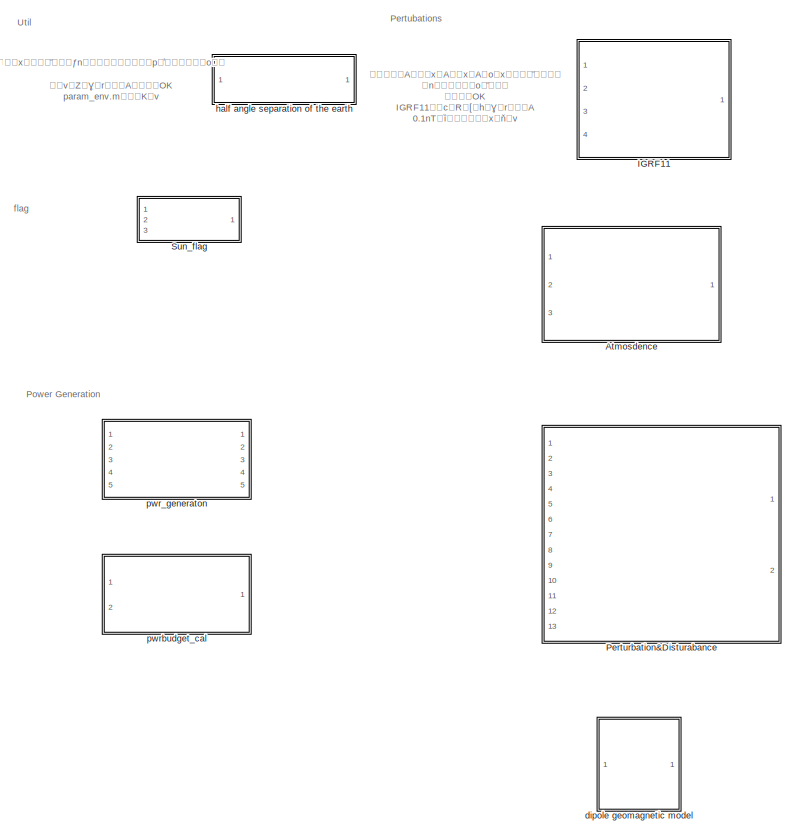
[diagram: root canvas - part 1/2, left side, full height]
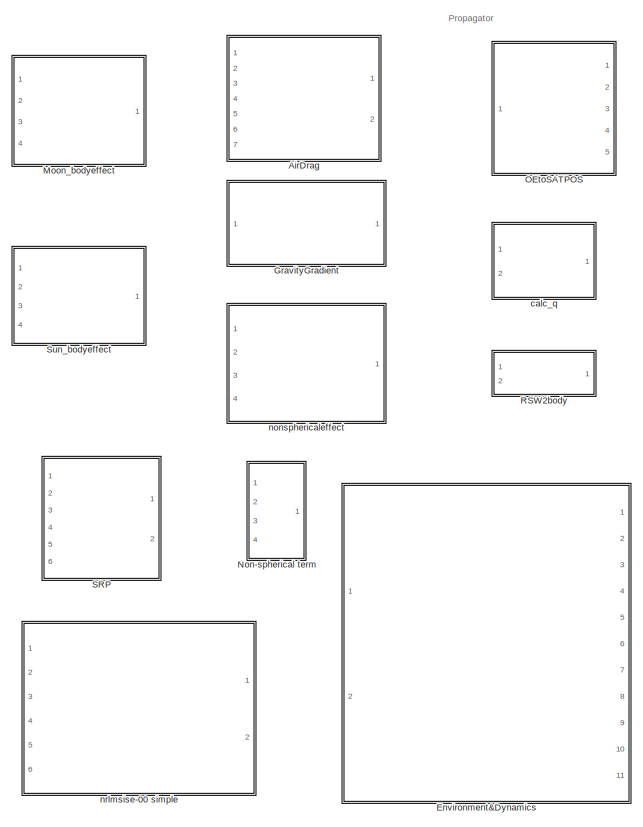
[diagram: root canvas - part 2/2, right side, full height]
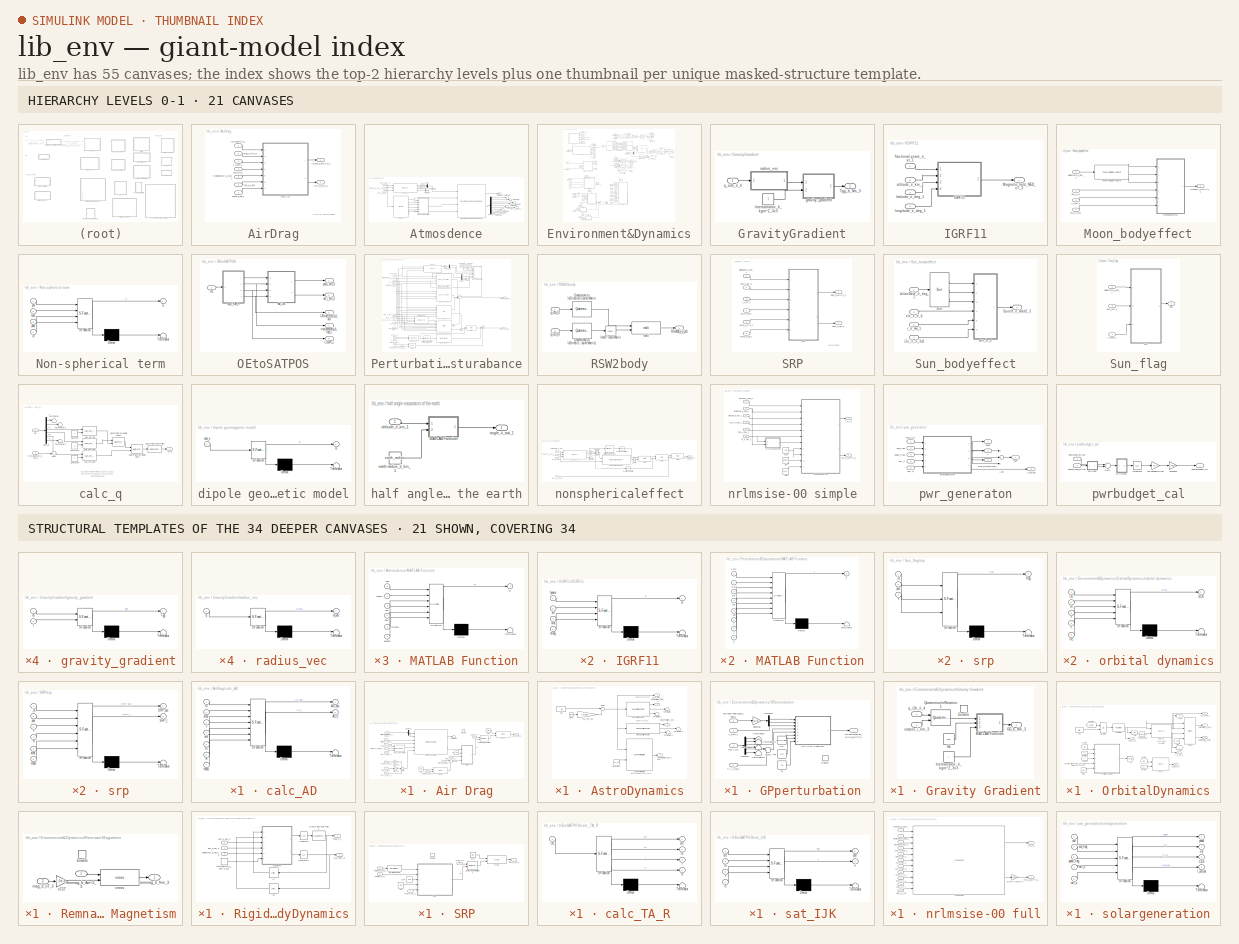
[diagram: thumbnail index - top-2 hierarchy levels (21 canvases) + 21 structural-template representatives of the remaining 34 canvases]
MODEL lib_env
KIND library
BLOCK [SubSystem] AirDrag
  FunctionWithSeparateData = off
  MaskHideContents = off
  MinAlgLoopOccurrences = off
  Opaque = off
  Ports = [7, 2]
  PropExecContextOutsideSubsystem = off
  RTWSystemCode = Auto
  RequestExecContextInheritance = off
  SID = 19
BLOCK [Outport] AirDrag/ADacc_o_km//s^2_3
  IconDisplay = Port number
  SID = 21
BLOCK [Outport] AirDrag/ADt_o_Nm_3
  IconDisplay = Port number
  Port = 2
  SID = 23
BLOCK [Inport] AirDrag/area_#_m^2_3
  IconDisplay = Port number
  Port = 2
  SID = 24
BLOCK [SubSystem] AirDrag/calc_AD
  ErrorFcn = Stateflow.Translate.translate
  FunctionWithSeparateData = off
  MaskDescription = Embedded MATLAB block
  MaskDisplay = bgColor = Simulink.Root.ColorString2Rgb(get_param(gcbh, 'BackgroundColor')); image(imread('private/eml_membrane_16.png','png','BackgroundColor',bgColor(1:3)),'center'); disp([10 10 'AirDrag']);
  MaskHideContents = off
  MaskIconFrame = on
  MaskIconOpaque = off
  MaskIconRotate = none
  MaskIconUnits = normalized
  MaskPortRotate = default
  MaskSelfModifiable = on
  MaskType = Stateflow
  MinAlgLoopOccurrences = off
  Opaque = off
  PermitHierarchicalResolution = ExplicitOnly
  Ports = [7, 2]
  PropExecContextOutsideSubsystem = off
  RTWSystemCode = Auto
  RequestExecContextInheritance = off
  SID = 22
  TreatAsAtomicUnit = on
BLOCK [Demux] AirDrag/calc_AD/ Demux 
  Outputs = 1
  Ports = [1, 1]
  SID = 22::26
BLOCK [S-Function] AirDrag/calc_AD/ SFunction 
  EnableBusSupport = off
  FunctionName = sf_sfun
  PortCounts = [7 3]
  Ports = [7, 3]
  SID = 22::25
  Tag = Stateflow S-Function lib_env 7
BLOCK [Terminator] AirDrag/calc_AD/ Terminator 
  SID = 22::28
BLOCK [Outport] AirDrag/calc_AD/AD_acc
  IconDisplay = Port number
  SID = 22::5
BLOCK [Outport] AirDrag/calc_AD/AD_t
  IconDisplay = Port number
  Port = 2
  SID = 22::24
BLOCK [Inport] AirDrag/calc_AD/R
  IconDisplay = Port number
  Port = 6
  SID = 22::22
BLOCK [Inport] AirDrag/calc_AD/area
  IconDisplay = Port number
  Port = 2
  SID = 22::18
BLOCK [Inport] AirDrag/calc_AD/ele
  IconDisplay = Port number
  Port = 4
  SID = 22::21
BLOCK [Inport] AirDrag/calc_AD/mass
  IconDisplay = Port number
  Port = 7
  SID = 22::19
BLOCK [Inport] AirDrag/calc_AD/r
  IconDisplay = Port number
  Port = 3
  SID = 22::20
BLOCK [Inport] AirDrag/calc_AD/ro
  IconDisplay = Port number
  SID = 22::1
BLOCK [Inport] AirDrag/calc_AD/th
  IconDisplay = Port number
  Port = 5
  SID = 22::23
BLOCK [Inport] AirDrag/ele_#_#_6
  IconDisplay = Port number
  Port = 4
  SID = 26
BLOCK [Inport] AirDrag/i2o_#_#_3x3
  IconDisplay = Port number
  Port = 6
  SID = 28
BLOCK [Inport] AirDrag/mass_#_kg_1
  IconDisplay = Port number
  Port = 7
  SID = 29
BLOCK [Inport] AirDrag/r_#_km_1
  IconDisplay = Port number
  Port = 3
  SID = 25
BLOCK [Inport] AirDrag/ro_#_kg//m^3_1
  IconDisplay = Port number
  SID = 20
BLOCK [Inport] AirDrag/trueanomaly_#_rad_1
  IconDisplay = Port number
  Port = 5
  SID = 27
BLOCK [SubSystem] Atmosdence
  FunctionWithSeparateData = off
  MaskHideContents = off
  MinAlgLoopOccurrences = off
  Opaque = off
  Ports = [3, 1]
  PropExecContextOutsideSubsystem = off
  RTWSystemCode = Auto
  RequestExecContextInheritance = off
  SID = 207
BLOCK [Demux] Atmosdence/Demux
  DisplayOption = bar
  Outputs = 9
  Ports = [1, 9]
  SID = 248
BLOCK [Reference] Atmosdence/IJK2LLA  REF=lib_orbittrance/IJK2LLA  (lib defined in mdl_e1987a65d5b0)
  Ports = [3, 4]
  SID = 213
  SourceBlock = lib_orbittrance/IJK2LLA
  SourceType = SubSystem
BLOCK [Reference] Atmosdence/JD2GC  REF=lib_util/JD2GC  (lib defined in mdl_263c60253fa7)
  Ports = [1, 6]
  SID = 214
  SourceBlock = lib_util/JD2GC
  SourceType = SubSystem
BLOCK [Inport] Atmosdence/JD_#_day_1
  IconDisplay = Port number
  SID = 210
BLOCK [SubSystem] Atmosdence/MATLAB Function
  ErrorFcn = Stateflow.Translate.translate
  FunctionWithSeparateData = off
  MaskDescription = Embedded MATLAB block
  MaskDisplay = bgColor = Simulink.Root.ColorString2Rgb(get_param(gcbh, 'BackgroundColor')); image(imread('private/eml_membrane_16.png','png','BackgroundColor',bgColor(1:3)),'center'); disp([10 10 'DOY']);
  MaskHideContents = off
  MaskIconFrame = on
  MaskIconOpaque = off
  MaskIconRotate = none
  MaskIconUnits = normalized
  MaskPortRotate = default
  MaskSelfModifiable = on
  MaskType = Stateflow
  MinAlgLoopOccurrences = off
  Opaque = off
  PermitHierarchicalResolution = ExplicitOnly
  Ports = [6, 1]
  PropExecContextOutsideSubsystem = off
  RTWSystemCode = Auto
  RequestExecContextInheritance = off
  SID = 265
  TreatAsAtomicUnit = on
BLOCK [Demux] Atmosdence/MATLAB Function/ Demux 
  Outputs = 1
  Ports = [1, 1]
  SID = 265::15
BLOCK [S-Function] Atmosdence/MATLAB Function/ SFunction 
  EnableBusSupport = off
  FunctionName = sf_sfun
  PortCounts = [6 2]
  Ports = [6, 2]
  SID = 265::14
  Tag = Stateflow S-Function lib_env 5
BLOCK [Terminator] Atmosdence/MATLAB Function/ Terminator 
  SID = 265::17
BLOCK [Inport] Atmosdence/MATLAB Function/day
  IconDisplay = Port number
  Port = 3
  SID = 265::19
BLOCK [Outport] Atmosdence/MATLAB Function/dy
  IconDisplay = Port number
  SID = 265::5
BLOCK [Inport] Atmosdence/MATLAB Function/hour
  IconDisplay = Port number
  Port = 4
  SID = 265::20
BLOCK [Inport] Atmosdence/MATLAB Function/minute
  IconDisplay = Port number
  Port = 5
  SID = 265::21
BLOCK [Inport] Atmosdence/MATLAB Function/month
  IconDisplay = Port number
  Port = 2
  SID = 265::18
BLOCK [Inport] Atmosdence/MATLAB Function/second
  IconDisplay = Port number
  Port = 6
  SID = 265::22
BLOCK [Inport] Atmosdence/MATLAB Function/year
  IconDisplay = Port number
  SID = 265::1
BLOCK [Mux] Atmosdence/Mux
  DisplayOption = bar
  Inputs = 2
  Ports = [2, 1]
  SID = 215
BLOCK [Reference] Atmosdence/NRLMSISE-00\nAtmosphere Model  REF=aerolibatmos2/NRLMSISE-00\nAtmosphere Model
  Ports = [4, 2]
  SID = 216
  SourceBlock = aerolibatmos2/NRLMSISE-00\nAtmosphere Model
  SourceType = NRLMSISE-00 Model
  action = Warning
  flags = ones(1,23)
  flags_input = Internal
  flux_ap_input = off
  lst_input = off
  oxygen_in = off
  units = Metric (MKS)
BLOCK [Terminator] Atmosdence/Terminator
  SID = 218
BLOCK [Terminator] Atmosdence/Terminator1
  SID = 219
BLOCK [Terminator] Atmosdence/Terminator10
  SID = 252
BLOCK [Terminator] Atmosdence/Terminator11
  SID = 253
BLOCK [Terminator] Atmosdence/Terminator12
  SID = 254
BLOCK [Terminator] Atmosdence/Terminator13
  SID = 255
BLOCK [Terminator] Atmosdence/Terminator14
  SID = 256
BLOCK [Terminator] Atmosdence/Terminator6
  SID = 224
BLOCK [Terminator] Atmosdence/Terminator7
  SID = 249
BLOCK [Terminator] Atmosdence/Terminator8
  SID = 250
BLOCK [Terminator] Atmosdence/Terminator9
  SID = 251
BLOCK [Inport] Atmosdence/UT1-UTC_#_sec_1
  IconDisplay = Port number
  Port = 2
  SID = 211
BLOCK [Gain] Atmosdence/km2m
  Gain = 1000
  OutDataTypeStr = Inherit: Inherit via internal rule
  ParamDataTypeStr = Inherit: Inherit via internal rule
  SID = 226
  SaturateOnIntegerOverflow = off
BLOCK [Inport] Atmosdence/pos_i_km_3
  IconDisplay = Port number
  Port = 3
  SID = 212
BLOCK [Outport] Atmosdence/ro_#_kg//m^3_1
  IconDisplay = Port number
  SID = 227
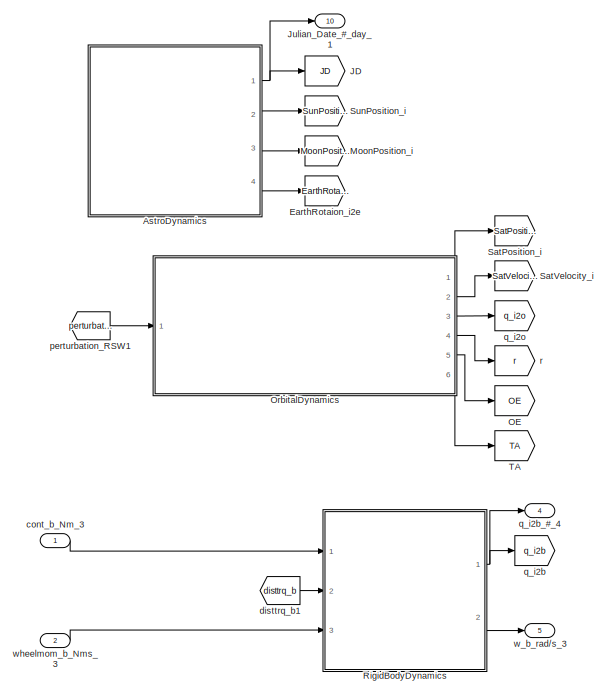
[diagram: Environment&Dynamics - part 1/3, top left region]
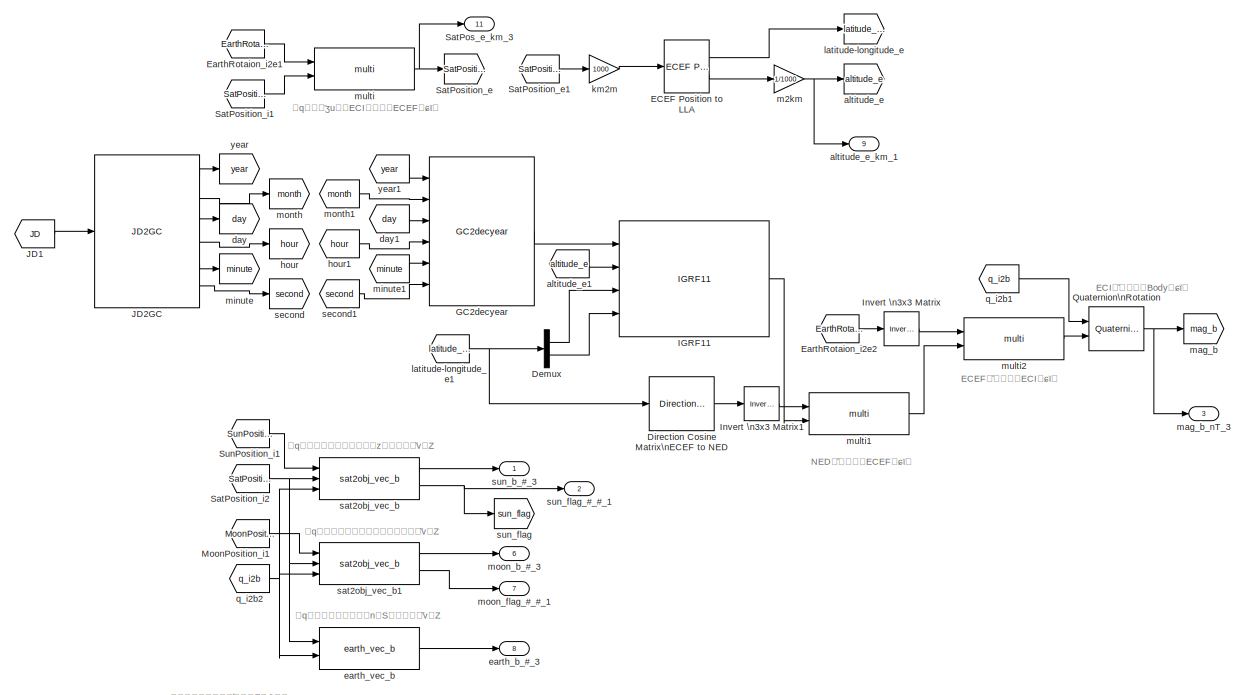
[diagram: Environment&Dynamics - part 2/3, top center region]
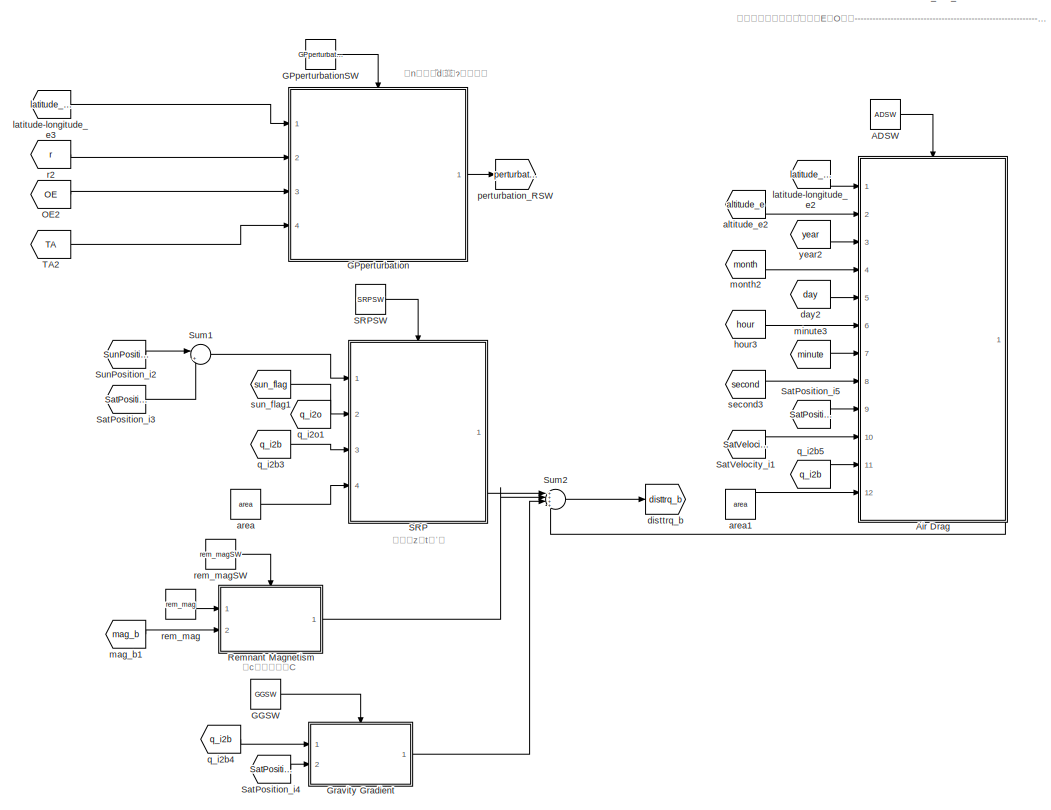
[diagram: Environment&Dynamics - part 3/3, bottom left region]
BLOCK [SubSystem] Environment&Dynamics
  FunctionWithSeparateData = off
  MaskHideContents = off
  MinAlgLoopOccurrences = off
  Opaque = off
  Ports = [2, 11]
  PropExecContextOutsideSubsystem = off
  RTWSystemCode = Auto
  RequestExecContextInheritance = off
  SID = 2406
BLOCK [Constant] Environment&Dynamics/ADSW
  SID = 2410
  Value = ADSW
BLOCK [SubSystem] Environment&Dynamics/Air Drag
  FunctionWithSeparateData = off
  MaskHideContents = off
  MinAlgLoopOccurrences = off
  Opaque = off
  Ports = [12, 1, 1]
  PropExecContextOutsideSubsystem = off
  RTWSystemCode = Auto
  RequestExecContextInheritance = off
  SID = 2411
BLOCK [Outport] Environment&Dynamics/Air Drag/AD_b_Nm_3
  IconDisplay = Port number
  SID = 2446
BLOCK [SubSystem] Environment&Dynamics/Air Drag/Air Drag
  ErrorFcn = Stateflow.Translate.translate
  FunctionWithSeparateData = off
  MaskDescription = Embedded MATLAB block
  MaskDisplay = bgColor = Simulink.Root.ColorString2Rgb(get_param(gcbh, 'BackgroundColor')); image(imread('private/eml_membrane_16.png','png','BackgroundColor',bgColor(1:3)),'center'); disp([10 10 'fcn']);  <repeated x12 — deduplicated; at blocks: Air Drag, MATLAB Function1, MATLAB Function, SRP, dipole geomagnetic model, m2km, makeline, solargeneration, Efficiency>
  MaskHideContents = off
  MaskIconFrame = on
  MaskIconOpaque = off
  MaskIconRotate = none
  MaskIconUnits = normalized
  MaskPortRotate = default
  MaskSelfModifiable = on
  MaskType = Stateflow
  MinAlgLoopOccurrences = off
  Opaque = off
  PermitHierarchicalResolution = ExplicitOnly
  Ports = [4, 1]
  PropExecContextOutsideSubsystem = off
  RTWSystemCode = Auto
  RequestExecContextInheritance = off
  SID = 2427
  TreatAsAtomicUnit = on
BLOCK [Demux] Environment&Dynamics/Air Drag/Air Drag/ Demux 
  Outputs = 1
  Ports = [1, 1]
  SID = 2427::15
BLOCK [S-Function] Environment&Dynamics/Air Drag/Air Drag/ SFunction 
  EnableBusSupport = on
  FunctionName = sf_sfun
  PortCounts = [4 2]
  Ports = [4, 2]
  SID = 2427::14
  Tag = Stateflow S-Function lib_env 20
BLOCK [Terminator] Environment&Dynamics/Air Drag/Air Drag/ Terminator 
  SID = 2427::17
BLOCK [Inport] Environment&Dynamics/Air Drag/Air Drag/A
  IconDisplay = Port number
  Port = 3
  SID = 2427::19
BLOCK [Inport] Environment&Dynamics/Air Drag/Air Drag/CD
  IconDisplay = Port number
  Port = 2
  SID = 2427::18
BLOCK [Outport] Environment&Dynamics/Air Drag/Air Drag/F
  IconDisplay = Port number
  SID = 2427::5
BLOCK [Inport] Environment&Dynamics/Air Drag/Air Drag/rho
  IconDisplay = Port number
  SID = 2427::1
BLOCK [Inport] Environment&Dynamics/Air Drag/Air Drag/v
  IconDisplay = Port number
  Port = 4
  SID = 2427::21
BLOCK [Constant] Environment&Dynamics/Air Drag/CD
  SID = 2428
  Value = CD
BLOCK [Demux] Environment&Dynamics/Air Drag/Demux1
  DisplayOption = bar
  Outputs = 2
  Ports = [1, 2]
  SID = 2429
BLOCK [EnablePort] Environment&Dynamics/Air Drag/Enable
  Ports = []
  SID = 2426
BLOCK [Reference] Environment&Dynamics/Air Drag/MATLAB Function  REF=lib_util/MATLAB Function  (lib defined in mdl_263c60253fa7)
  FunctionWithSeparateData = off
  GeneratePreprocessorConditionals = off
  Ports = [3, 1]
  RTWMemSecDataConstants = Inherit from model
  RTWMemSecDataInternal = Inherit from model
  RTWMemSecDataParameters = Inherit from model
  RTWMemSecFuncExecute = Inherit from model
  RTWMemSecFuncInitTerm = Inherit from model
  SID = 2431
  ShowPortLabels = FromPortIcon
  SourceBlock = lib_util/MATLAB Function
  SourceType = Stateflow
  SystemSampleTime = -1
BLOCK [Reference] Environment&Dynamics/Air Drag/Quaternion\nRotation2  REF=aerolibutil/Quaternion\nRotation
  FunctionWithSeparateData = off
  GeneratePreprocessorConditionals = off
  Ports = [2, 1]
  RTWMemSecDataConstants = Inherit from model
  RTWMemSecDataInternal = Inherit from model
  RTWMemSecDataParameters = Inherit from model
  RTWMemSecFuncExecute = Inherit from model
  RTWMemSecFuncInitTerm = Inherit from model
  SID = 2433
  ShowPortLabels = FromPortIcon
  SourceBlock = aerolibutil/Quaternion\nRotation
  SourceType = Quaternion Rotation
  SystemSampleTime = -1
BLOCK [Sum] Environment&Dynamics/Air Drag/Sum4
  IconShape = round
  InputSameDT = off
  Inputs = +++
  OutDataTypeStr = Inherit: Inherit via internal rule
  Ports = [3, 1]
  SID = 2434
  SaturateOnIntegerOverflow = off
BLOCK [Sum] Environment&Dynamics/Air Drag/Sum5
  IconShape = round
  InputSameDT = off
  Inputs = |+-
  OutDataTypeStr = Inherit: Inherit via internal rule
  Ports = [2, 1]
  SID = 2435
  SaturateOnIntegerOverflow = off
BLOCK [Terminator] Environment&Dynamics/Air Drag/Terminator
  SID = 2436
BLOCK [Inport] Environment&Dynamics/Air Drag/altitude_e_km_1
  IconDisplay = Port number
  Port = 2
  SID = 2413
BLOCK [Inport] Environment&Dynamics/Air Drag/area_#_m^2_1
  IconDisplay = Port number
  Port = 12
  SID = 2425
BLOCK [Constant] Environment&Dynamics/Air Drag/arm
  SID = 2437
  Value = arm
BLOCK [Reference] Environment&Dynamics/Air Drag/cross  REF=lib_util/cross  (lib defined in mdl_263c60253fa7)
  FunctionWithSeparateData = off
  GeneratePreprocessorConditionals = off
  Ports = [2, 1]
  RTWMemSecDataConstants = Inherit from model
  RTWMemSecDataInternal = Inherit from model
  RTWMemSecDataParameters = Inherit from model
  RTWMemSecFuncExecute = Inherit from model
  RTWMemSecFuncInitTerm = Inherit from model
  SID = 2438
  ShowPortLabels = FromPortIcon
  SourceBlock = lib_util/cross
  SourceType = SubSystem
  SystemSampleTime = -1
BLOCK [Reference] Environment&Dynamics/Air Drag/cross1  REF=lib_util/cross  (lib defined in mdl_263c60253fa7)
  FunctionWithSeparateData = off
  GeneratePreprocessorConditionals = off
  Ports = [2, 1]
  RTWMemSecDataConstants = Inherit from model
  RTWMemSecDataInternal = Inherit from model
  RTWMemSecDataParameters = Inherit from model
  RTWMemSecFuncExecute = Inherit from model
  RTWMemSecFuncInitTerm = Inherit from model
  SID = 2439
  ShowPortLabels = FromPortIcon
  SourceBlock = lib_util/cross
  SourceType = SubSystem
  SystemSampleTime = -1
BLOCK [Inport] Environment&Dynamics/Air Drag/day_#_day_1
  IconDisplay = Port number
  Port = 5
  SID = 2416
BLOCK [Gain] Environment&Dynamics/Air Drag/hour2sec
  Gain = 3600.0
  OutDataTypeStr = Inherit: Inherit via internal rule
  ParamDataTypeStr = Inherit: Inherit via internal rule
  SID = 2440
  SaturateOnIntegerOverflow = off
BLOCK [Inport] Environment&Dynamics/Air Drag/hour_#_hour_1
  IconDisplay = Port number
  Port = 6
  SID = 2417
BLOCK [Inport] Environment&Dynamics/Air Drag/latitude-longitude_e_deg_2
  IconDisplay = Port number
  SID = 2412
BLOCK [Gain] Environment&Dynamics/Air Drag/min2sec
  Gain = 60.0
  OutDataTypeStr = Inherit: Inherit via internal rule
  ParamDataTypeStr = Inherit: Inherit via internal rule
  SID = 2442
  SaturateOnIntegerOverflow = off
BLOCK [Inport] Environment&Dynamics/Air Drag/min_#_min_1
  IconDisplay = Port number
  Port = 7
  SID = 2418
BLOCK [Inport] Environment&Dynamics/Air Drag/month_#_month_1
  IconDisplay = Port number
  Port = 4
  SID = 2415
BLOCK [Reference] Environment&Dynamics/Air Drag/nrlmsise-00 simple  REF=lib_env/nrlmsise-00 simple  (lib defined in mdl_9d5cf06e00da)
  FunctionWithSeparateData = off
  GeneratePreprocessorConditionals = off
  Ports = [6, 2]
  RTWMemSecDataConstants = Inherit from model
  RTWMemSecDataInternal = Inherit from model
  RTWMemSecDataParameters = Inherit from model
  RTWMemSecFuncExecute = Inherit from model
  RTWMemSecFuncInitTerm = Inherit from model
  SID = 2443
  ShowPortLabels = FromPortIcon
  SourceBlock = lib_env/nrlmsise-00 simple
  SourceType = SubSystem
  SystemSampleTime = -1
BLOCK [Inport] Environment&Dynamics/Air Drag/q_i2b_#_4
  IconDisplay = Port number
  Port = 11
  SID = 2423
BLOCK [Inport] Environment&Dynamics/Air Drag/satpos_i_km_1
  IconDisplay = Port number
  Port = 9
  SID = 2420
BLOCK [Inport] Environment&Dynamics/Air Drag/satvel_i_km//sec_1
  IconDisplay = Port number
  Port = 10
  SID = 2421
BLOCK [Inport] Environment&Dynamics/Air Drag/sec_#_sec_1
  IconDisplay = Port number
  Port = 8
  SID = 2419
BLOCK [Constant] Environment&Dynamics/Air Drag/wE
  SID = 2444
  Value = wE
BLOCK [Inport] Environment&Dynamics/Air Drag/year_#_year_1
  IconDisplay = Port number
  Port = 3
  SID = 2414
BLOCK [SubSystem] Environment&Dynamics/AstroDynamics
  FunctionWithSeparateData = off
  MaskHideContents = off
  MinAlgLoopOccurrences = off
  Opaque = off
  Ports = [0, 4]
  PropExecContextOutsideSubsystem = off
  RTWSystemCode = Auto
  RequestExecContextInheritance = off
  SID = 2447
BLOCK [Clock] Environment&Dynamics/AstroDynamics/Clock
  Decimation = 10
  SID = 2448
BLOCK [Reference] Environment&Dynamics/AstroDynamics/Earth Full Rotation  REF=lib_astrodynamics/Earth Full Rotation  (lib defined in mdl_a29f7b0aead9)
  FunctionWithSeparateData = off
  GeneratePreprocessorConditionals = off
  Ports = [2, 1]
  RTWMemSecDataConstants = Inherit from model
  RTWMemSecDataInternal = Inherit from model
  RTWMemSecDataParameters = Inherit from model
  RTWMemSecFuncExecute = Inherit from model
  RTWMemSecFuncInitTerm = Inherit from model
  SID = 2449
  ShowPortLabels = FromPortIcon
  SourceBlock = lib_astrodynamics/Earth Full Rotation
  SourceType = SubSystem
  SystemSampleTime = -1
BLOCK [Outport] Environment&Dynamics/AstroDynamics/EarthRotaion_i2e_#_3x3
  IconDisplay = Port number
  Port = 4
  SID = 2463
BLOCK [Constant] Environment&Dynamics/AstroDynamics/JD1
  SID = 2450
  Value = jd
BLOCK [Outport] Environment&Dynamics/AstroDynamics/JD_#_day_1
  IconDisplay = Port number
  SID = 2460
BLOCK [Outport] Environment&Dynamics/AstroDynamics/MoonPosition_i_km_3
  IconDisplay = Port number
  Port = 3
  SID = 2462
BLOCK [Sum] Environment&Dynamics/AstroDynamics/Sum3
  IconShape = round
  InputSameDT = off
  Inputs = |++
  OutDataTypeStr = Inherit: Inherit via internal rule
  Ports = [2, 1]
  SID = 2451
  SaturateOnIntegerOverflow = off
BLOCK [Outport] Environment&Dynamics/AstroDynamics/SunPosition_i_km_3
  IconDisplay = Port number
  Port = 2
  SID = 2461
BLOCK [Terminator] Environment&Dynamics/AstroDynamics/Terminator
  SID = 2452
BLOCK [Terminator] Environment&Dynamics/AstroDynamics/Terminator1
  SID = 2453
BLOCK [Terminator] Environment&Dynamics/AstroDynamics/Terminator2
  SID = 2454
BLOCK [Terminator] Environment&Dynamics/AstroDynamics/Terminator3
  SID = 2455
BLOCK [Constant] Environment&Dynamics/AstroDynamics/UT1_UTC
  SID = 2456
  Value = UT1_UTC
  VectorParams1D = off
BLOCK [Reference] Environment&Dynamics/AstroDynamics/moon position vector  REF=lib_astrodynamics/moon position vector  (lib defined in mdl_a29f7b0aead9)
  FunctionWithSeparateData = off
  GeneratePreprocessorConditionals = off
  Ports = [1, 3]
  RTWMemSecDataConstants = Inherit from model
  RTWMemSecDataInternal = Inherit from model
  RTWMemSecDataParameters = Inherit from model
  RTWMemSecFuncExecute = Inherit from model
  RTWMemSecFuncInitTerm = Inherit from model
  SID = 2457
  ShowPortLabels = FromPortIcon
  SourceBlock = lib_astrodynamics/moon position vector
  SourceType = SubSystem
  SystemSampleTime = -1
BLOCK [Gain] Environment&Dynamics/AstroDynamics/sec_per_day
  Gain = 1.0/86400.0
  OutDataTypeStr = Inherit: Inherit via internal rule
  ParamDataTypeStr = Inherit: Inherit via internal rule
  SID = 2458
  SaturateOnIntegerOverflow = off
BLOCK [Reference] Environment&Dynamics/AstroDynamics/sun position vector  REF=lib_astrodynamics/sun position vector  (lib defined in mdl_a29f7b0aead9)
  FunctionWithSeparateData = off
  GeneratePreprocessorConditionals = off
  Ports = [1, 3]
  RTWMemSecDataConstants = Inherit from model
  RTWMemSecDataInternal = Inherit from model
  RTWMemSecDataParameters = Inherit from model
  RTWMemSecFuncExecute = Inherit from model
  RTWMemSecFuncInitTerm = Inherit from model
  SID = 2459
  ShowPortLabels = FromPortIcon
  SourceBlock = lib_astrodynamics/sun position vector
  SourceType = SubSystem
  SystemSampleTime = -1
BLOCK [Demux] Environment&Dynamics/Demux
  DisplayOption = bar
  Outputs = 2
  Ports = [1, 2]
  SID = 2464
BLOCK [Reference] Environment&Dynamics/Direction Cosine Matrix\nECEF to NED  REF=aerolibtransform2/Direction Cosine Matrix\nECEF to NED
  FunctionWithSeparateData = off
  GeneratePreprocessorConditionals = off
  Ports = [1, 1]
  RTWMemSecDataConstants = Inherit from model
  RTWMemSecDataInternal = Inherit from model
  RTWMemSecDataParameters = Inherit from model
  RTWMemSecFuncExecute = Inherit from model
  RTWMemSecFuncInitTerm = Inherit from model
  SID = 2465
  ShowPortLabels = none
  SourceBlock = aerolibtransform2/Direction Cosine Matrix\nECEF to NED
  SourceType = DCM ECEF to NED
  SystemSampleTime = -1
BLOCK [Reference] Environment&Dynamics/ECEF Position to LLA  REF=aerolibtransform2/ECEF Position to LLA
  F = 1/298.257223563
  FunctionWithSeparateData = off
  GeneratePreprocessorConditionals = off
  Ports = [1, 2]
  R = 6378137
  RTWMemSecDataConstants = Inherit from model
  RTWMemSecDataInternal = Inherit from model
  RTWMemSecDataParameters = Inherit from model
  RTWMemSecFuncExecute = Inherit from model
  RTWMemSecFuncInitTerm = Inherit from model
  SID = 2466
  ShowPortLabels = FromPortIcon
  SourceBlock = aerolibtransform2/ECEF Position to LLA
  SourceType = ECEF to LLA
  SystemSampleTime = -1
  ptype = Earth (WGS84)
  units = Metric (MKS)
BLOCK [Goto] Environment&Dynamics/EarthRotaion_i2e
  GotoTag = EarthRotaion_i2e
  SID = 2467
  TagVisibility = local
BLOCK [From] Environment&Dynamics/EarthRotaion_i2e1
  GotoTag = EarthRotaion_i2e
  SID = 2468
BLOCK [From] Environment&Dynamics/EarthRotaion_i2e2
  GotoTag = EarthRotaion_i2e
  SID = 2469
BLOCK [Reference] Environment&Dynamics/GC2decyear  REF=lib_util/GC2decyear  (lib defined in mdl_263c60253fa7)
  FunctionWithSeparateData = off
  GeneratePreprocessorConditionals = off
  Ports = [6, 1]
  RTWMemSecDataConstants = Inherit from model
  RTWMemSecDataInternal = Inherit from model
  RTWMemSecDataParameters = Inherit from model
  RTWMemSecFuncExecute = Inherit from model
  RTWMemSecFuncInitTerm = Inherit from model
  SID = 2470
  ShowPortLabels = FromPortIcon
  SourceBlock = lib_util/GC2decyear
  SourceType = SubSystem
  SystemSampleTime = -1
BLOCK [Constant] Environment&Dynamics/GGSW
  SID = 2471
  Value = GGSW
BLOCK [SubSystem] Environment&Dynamics/GPperturbation
  FunctionWithSeparateData = off
  MaskHideContents = off
  MinAlgLoopOccurrences = off
  Opaque = off
  Ports = [4, 1, 1]
  PropExecContextOutsideSubsystem = off
  RTWSystemCode = Auto
  RequestExecContextInheritance = off
  SID = 2472
BLOCK [Demux] Environment&Dynamics/GPperturbation/Demux3
  DisplayOption = bar
  Outputs = 2
  Ports = [1, 2]
  SID = 2478
BLOCK [Demux] Environment&Dynamics/GPperturbation/Demux4
  DisplayOption = bar
  Outputs = 6
  Ports = [1, 6]
  SID = 2479
BLOCK [EnablePort] Environment&Dynamics/GPperturbation/Enable
  Ports = []
  SID = 2477
BLOCK [Constant] Environment&Dynamics/GPperturbation/GE
  SID = 2480
  Value = GE
BLOCK [Outport] Environment&Dynamics/GPperturbation/GPperturbation_RSW_km//s^2_3
  IconDisplay = Port number
  InitialOutput = [0; 0; 0]
  SID = 2490
BLOCK [Constant] Environment&Dynamics/GPperturbation/J2
  SID = 2481
  Value = J2
BLOCK [SubSystem] Environment&Dynamics/GPperturbation/MATLAB Function1
  ErrorFcn = Stateflow.Translate.translate
  FunctionWithSeparateData = off
  MaskDescription = Embedded MATLAB block
  MaskHideContents = off
  MaskIconFrame = on
  MaskIconOpaque = off
  MaskIconRotate = none
  MaskIconUnits = normalized
  MaskPortRotate = default
  MaskSelfModifiable = on
  MaskType = Stateflow
  MinAlgLoopOccurrences = off
  Opaque = off
  PermitHierarchicalResolution = ExplicitOnly
  Ports = [8, 1]
  PropExecContextOutsideSubsystem = off
  RTWSystemCode = Auto
  RequestExecContextInheritance = off
  SID = 2482
  TreatAsAtomicUnit = on
BLOCK [Demux] Environment&Dynamics/GPperturbation/MATLAB Function1/ Demux 
  Outputs = 1
  Ports = [1, 1]
  SID = 2482::15
BLOCK [S-Function] Environment&Dynamics/GPperturbation/MATLAB Function1/ SFunction 
  EnableBusSupport = on
  FunctionName = sf_sfun
  PortCounts = [8 2]
  Ports = [8, 2]
  SID = 2482::14
  Tag = Stateflow S-Function lib_env 21
BLOCK [Terminator] Environment&Dynamics/GPperturbation/MATLAB Function1/ Terminator 
  SID = 2482::17
BLOCK [Inport] Environment&Dynamics/GPperturbation/MATLAB Function1/GE
  IconDisplay = Port number
  Port = 7
  SID = 2482::23
BLOCK [Inport] Environment&Dynamics/GPperturbation/MATLAB Function1/J2
  IconDisplay = Port number
  Port = 8
  SID = 2482::24
BLOCK [Inport] Environment&Dynamics/GPperturbation/MATLAB Function1/Re
  IconDisplay = Port number
  Port = 6
  SID = 2482::22
BLOCK [Outport] Environment&Dynamics/GPperturbation/MATLAB Function1/a
  IconDisplay = Port number
  SID = 2482::5
BLOCK [Inport] Environment&Dynamics/GPperturbation/MATLAB Function1/i
  IconDisplay = Port number
  Port = 4
  SID = 2482::21
BLOCK [Inport] Environment&Dynamics/GPperturbation/MATLAB Function1/lam
  IconDisplay = Port number
  Port = 2
  SID = 2482::19
BLOCK [Inport] Environment&Dynamics/GPperturbation/MATLAB Function1/phi
  IconDisplay = Port number
  SID = 2482::18
BLOCK [Inport] Environment&Dynamics/GPperturbation/MATLAB Function1/r
  IconDisplay = Port number
  Port = 3
  SID = 2482::20
BLOCK [Inport] Environment&Dynamics/GPperturbation/MATLAB Function1/u
  IconDisplay = Port number
  Port = 5
  SID = 2482::1
BLOCK [Inport] Environment&Dynamics/GPperturbation/OE_i_#_6
  IconDisplay = Port number
  Port = 3
  SID = 2475
BLOCK [Constant] Environment&Dynamics/GPperturbation/Re
  SID = 2483
  Value = earth_radius
BLOCK [Sum] Environment&Dynamics/GPperturbation/Sum1
  IconShape = round
  InputSameDT = off
  Inputs = |++
  OutDataTypeStr = Inherit: Inherit via internal rule
  Ports = [2, 1]
  SID = 2484
  SaturateOnIntegerOverflow = off
BLOCK [Inport] Environment&Dynamics/GPperturbation/TA_i_rad_1
  IconDisplay = Port number
  Port = 4
  SID = 2476
BLOCK [Terminator] Environment&Dynamics/GPperturbation/Terminator
  SID = 2485
BLOCK [Terminator] Environment&Dynamics/GPperturbation/Terminator1
  SID = 2486
BLOCK [Terminator] Environment&Dynamics/GPperturbation/Terminator2
  SID = 2487
BLOCK [Terminator] Environment&Dynamics/GPperturbation/Terminator3
  SID = 2488
BLOCK [Gain] Environment&Dynamics/GPperturbation/deg2rad
  Gain = pi/180
  OutDataTypeStr = Inherit: Inherit via internal rule
  ParamDataTypeStr = Inherit: Inherit via internal rule
  SID = 2489
  SaturateOnIntegerOverflow = off
BLOCK [Inport] Environment&Dynamics/GPperturbation/latitude-longitude_e_deg_2
  IconDisplay = Port number
  SID = 2473
BLOCK [Inport] Environment&Dynamics/GPperturbation/r_#_km_1
  IconDisplay = Port number
  Port = 2
  SID = 2474
BLOCK [Constant] Environment&Dynamics/GPperturbationSW
  SID = 2491
  Value = GPperturbationSW
BLOCK [SubSystem] Environment&Dynamics/Gravity Gradient
  FunctionWithSeparateData = off
  MaskHideContents = off
  MinAlgLoopOccurrences = off
  Opaque = off
  Ports = [2, 1, 1]
  PropExecContextOutsideSubsystem = off
  RTWSystemCode = Auto
  RequestExecContextInheritance = off
  SID = 2492
BLOCK [EnablePort] Environment&Dynamics/Gravity Gradient/Enable
  Ports = []
  SID = 2495
BLOCK [Constant] Environment&Dynamics/Gravity Gradient/GE
  SID = 2496
  Value = GE
BLOCK [Outport] Environment&Dynamics/Gravity Gradient/GG_b_Nm_3
  IconDisplay = Port number
  InitialOutput = [0; 0; 0]
  SID = 2500
BLOCK [Constant] Environment&Dynamics/Gravity Gradient/Inertiamatrix_#_kgm^2_3x3
  SID = 2497
  Value = I
BLOCK [SubSystem] Environment&Dynamics/Gravity Gradient/MATLAB Function
  ErrorFcn = Stateflow.Translate.translate
  FunctionWithSeparateData = off
  MaskDescription = Embedded MATLAB block
  MaskHideContents = off
  MaskIconFrame = on
  MaskIconOpaque = off
  MaskIconRotate = none
  MaskIconUnits = normalized
  MaskPortRotate = default
  MaskSelfModifiable = on
  MaskType = Stateflow
  MinAlgLoopOccurrences = off
  Opaque = off
  PermitHierarchicalResolution = ExplicitOnly
  Ports = [3, 1]
  PropExecContextOutsideSubsystem = off
  RTWSystemCode = Auto
  RequestExecContextInheritance = off
  SID = 2498
  TreatAsAtomicUnit = on
BLOCK [Demux] Environment&Dynamics/Gravity Gradient/MATLAB Function/ Demux 
  Outputs = 1
  Ports = [1, 1]
  SID = 2498::15
BLOCK [S-Function] Environment&Dynamics/Gravity Gradient/MATLAB Function/ SFunction 
  EnableBusSupport = on
  FunctionName = sf_sfun
  PortCounts = [3 2]
  Ports = [3, 2]
  SID = 2498::14
  Tag = Stateflow S-Function lib_env 22
BLOCK [Terminator] Environment&Dynamics/Gravity Gradient/MATLAB Function/ Terminator 
  SID = 2498::17
BLOCK [Inport] Environment&Dynamics/Gravity Gradient/MATLAB Function/GE
  IconDisplay = Port number
  Port = 2
  SID = 2498::18
BLOCK [Inport] Environment&Dynamics/Gravity Gradient/MATLAB Function/I
  IconDisplay = Port number
  Port = 3
  SID = 2498::19
BLOCK [Inport] Environment&Dynamics/Gravity Gradient/MATLAB Function/R
  IconDisplay = Port number
  SID = 2498::1
BLOCK [Outport] Environment&Dynamics/Gravity Gradient/MATLAB Function/T
  IconDisplay = Port number
  SID = 2498::5
BLOCK [Reference] Environment&Dynamics/Gravity Gradient/Quaternion\nRotation1  REF=aerolibutil/Quaternion\nRotation
  Ports = [2, 1]
  SID = 2499
  SourceBlock = aerolibutil/Quaternion\nRotation
  SourceType = Quaternion Rotation
BLOCK [Inport] Environment&Dynamics/Gravity Gradient/q_i2b_#_4
  IconDisplay = Port number
  SID = 2493
BLOCK [Inport] Environment&Dynamics/Gravity Gradient/satpos_i_km_3
  IconDisplay = Port number
  Port = 2
  SID = 2494
BLOCK [Reference] Environment&Dynamics/IGRF11  REF=lib_env/IGRF11  (lib defined in mdl_9d5cf06e00da)
  FunctionWithSeparateData = off
  GeneratePreprocessorConditionals = off
  Ports = [4, 1]
  RTWMemSecDataConstants = Inherit from model
  RTWMemSecDataInternal = Inherit from model
  RTWMemSecDataParameters = Inherit from model
  RTWMemSecFuncExecute = Inherit from model
  RTWMemSecFuncInitTerm = Inherit from model
  SID = 2501
  ShowPortLabels = FromPortIcon
  SourceBlock = lib_env/IGRF11
  SourceType = SubSystem
  SystemSampleTime = -1
BLOCK [Reference] Environment&Dynamics/Invert \n3x3 Matrix  REF=aerolibutil/Invert \n3x3 Matrix
  FunctionWithSeparateData = off
  GeneratePreprocessorConditionals = off
  Ports = [1, 1]
  RTWMemSecDataConstants = Inherit from model
  RTWMemSecDataInternal = Inherit from model
  RTWMemSecDataParameters = Inherit from model
  RTWMemSecFuncExecute = Inherit from model
  RTWMemSecFuncInitTerm = Inherit from model
  SID = 2502
  ShowPortLabels = FromPortIcon
  SourceBlock = aerolibutil/Invert \n3x3 Matrix
  SourceType = Invert 3x3 Matrix
  SystemSampleTime = -1
BLOCK [Reference] Environment&Dynamics/Invert \n3x3 Matrix1  REF=aerolibutil/Invert \n3x3 Matrix
  FunctionWithSeparateData = off
  GeneratePreprocessorConditionals = off
  Ports = [1, 1]
  RTWMemSecDataConstants = Inherit from model
  RTWMemSecDataInternal = Inherit from model
  RTWMemSecDataParameters = Inherit from model
  RTWMemSecFuncExecute = Inherit from model
  RTWMemSecFuncInitTerm = Inherit from model
  SID = 2503
  ShowPortLabels = FromPortIcon
  SourceBlock = aerolibutil/Invert \n3x3 Matrix
  SourceType = Invert 3x3 Matrix
  SystemSampleTime = -1
BLOCK [Goto] Environment&Dynamics/JD
  GotoTag = JD
  SID = 2504
  TagVisibility = local
BLOCK [From] Environment&Dynamics/JD1
  GotoTag = JD
  SID = 2505
BLOCK [Reference] Environment&Dynamics/JD2GC  REF=lib_util/JD2GC  (lib defined in mdl_263c60253fa7)
  FunctionWithSeparateData = off
  GeneratePreprocessorConditionals = off
  Ports = [1, 6]
  RTWMemSecDataConstants = Inherit from model
  RTWMemSecDataInternal = Inherit from model
  RTWMemSecDataParameters = Inherit from model
  RTWMemSecFuncExecute = Inherit from model
  RTWMemSecFuncInitTerm = Inherit from model
  SID = 2506
  ShowPortLabels = FromPortIcon
  SourceBlock = lib_util/JD2GC
  SourceType = SubSystem
  SystemSampleTime = -1
BLOCK [Outport] Environment&Dynamics/Julian_Date_#_day_1
  IconDisplay = Port number
  Port = 10
  SID = 2667
BLOCK [Goto] Environment&Dynamics/MoonPosition_i
  GotoTag = MoonPosition_i
  SID = 2507
  TagVisibility = local
BLOCK [From] Environment&Dynamics/MoonPosition_i1
  GotoTag = MoonPosition_i
  SID = 2508
BLOCK [Goto] Environment&Dynamics/OE
  GotoTag = OE
  SID = 2509
  TagVisibility = local
BLOCK [From] Environment&Dynamics/OE2
  GotoTag = OE
  SID = 2510
BLOCK [SubSystem] Environment&Dynamics/OrbitalDynamics
  FunctionWithSeparateData = off
  MaskHideContents = off
  MinAlgLoopOccurrences = off
  Opaque = off
  Ports = [1, 6]
  PropExecContextOutsideSubsystem = off
  RTWSystemCode = Auto
  RequestExecContextInheritance = off
  SID = 2511
BLOCK [From] Environment&Dynamics/OrbitalDynamics/From1
  GotoTag = r
  SID = 2513
BLOCK [From] Environment&Dynamics/OrbitalDynamics/From14
  GotoTag = d_OE
  SID = 2514
BLOCK [From] Environment&Dynamics/OrbitalDynamics/From18
  GotoTag = TA
  SID = 2515
BLOCK [From] Environment&Dynamics/OrbitalDynamics/From2
  GotoTag = OE
  SID = 2516
BLOCK [From] Environment&Dynamics/OrbitalDynamics/From3
  GotoTag = TA
  SID = 2517
BLOCK [From] Environment&Dynamics/OrbitalDynamics/From4
  GotoTag = OE
  SID = 2518
BLOCK [Constant] Environment&Dynamics/OrbitalDynamics/GE
  SID = 2519
  Value = GE
BLOCK [Constant] Environment&Dynamics/OrbitalDynamics/GE1
  SID = 2520
  Value = GE
BLOCK [Constant] Environment&Dynamics/OrbitalDynamics/JD2
  SID = 2521
  Value = ele
  VectorParams1D = off
BLOCK [Outport] Environment&Dynamics/OrbitalDynamics/OE_i_#_6
  IconDisplay = Port number
  Port = 5
  SID = 2537
BLOCK [Integrator] Environment&Dynamics/OrbitalDynamics/OE_integ
  InitialConditionSource = external
  Ports = [2, 1]
  SID = 2522
BLOCK [Outport] Environment&Dynamics/OrbitalDynamics/SatPosition_i_km_3
  IconDisplay = Port number
  SID = 2533
BLOCK [Outport] Environment&Dynamics/OrbitalDynamics/SatVelocity_i_km//s_3
  IconDisplay = Port number
  Port = 2
  SID = 2534
BLOCK [Outport] Environment&Dynamics/OrbitalDynamics/TA_i_rad_1
  IconDisplay = Port number
  Port = 6
  SID = 2538
BLOCK [Constant] Environment&Dynamics/OrbitalDynamics/TOLERANCE
  SID = 2523
  Value = TOLERANCE
BLOCK [Goto] Environment&Dynamics/OrbitalDynamics/T_i10
  GotoTag = TA
  SID = 2524
  TagVisibility = local
BLOCK [Goto] Environment&Dynamics/OrbitalDynamics/T_i3
  GotoTag = d_OE
  SID = 2525
  TagVisibility = local
BLOCK [Goto] Environment&Dynamics/OrbitalDynamics/T_i4
  GotoTag = r
  SID = 2526
  TagVisibility = local
BLOCK [Goto] Environment&Dynamics/OrbitalDynamics/T_i9
  GotoTag = OE
  SID = 2527
  TagVisibility = local
BLOCK [Inport] Environment&Dynamics/OrbitalDynamics/acceleration_RSW_km//s^2_3
  IconDisplay = Port number
  SID = 2512
BLOCK [Reference] Environment&Dynamics/OrbitalDynamics/calc_TA  REF=lib_orbittrance/calc_TA  (lib defined in mdl_e1987a65d5b0)
  FunctionWithSeparateData = off
  GeneratePreprocessorConditionals = off
  Ports = [2, 2]
  RTWMemSecDataConstants = Inherit from model
  RTWMemSecDataInternal = Inherit from model
  RTWMemSecDataParameters = Inherit from model
  RTWMemSecFuncExecute = Inherit from model
  RTWMemSecFuncInitTerm = Inherit from model
  SID = 2528
  ShowPortLabels = FromPortIcon
  SourceBlock = lib_orbittrance/calc_TA
  SourceType = Stateflow
  SystemSampleTime = -1
BLOCK [Reference] Environment&Dynamics/OrbitalDynamics/calc_q  REF=lib_env/calc_q  (lib defined in mdl_9d5cf06e00da)
  FunctionWithSeparateData = off
  GeneratePreprocessorConditionals = off
  Ports = [2, 1]
  RTWMemSecDataConstants = Inherit from model
  RTWMemSecDataInternal = Inherit from model
  RTWMemSecDataParameters = Inherit from model
  RTWMemSecFuncExecute = Inherit from model
  RTWMemSecFuncInitTerm = Inherit from model
  SID = 2529
  ShowPortLabels = FromPortIcon
  SourceBlock = lib_env/calc_q
  SourceType = SubSystem
  SystemSampleTime = -1
BLOCK [Reference] Environment&Dynamics/OrbitalDynamics/e positive  REF=lib_orbittrance/e positive  (lib defined in mdl_e1987a65d5b0)
  FunctionWithSeparateData = off
  GeneratePreprocessorConditionals = off
  Ports = [1, 1]
  RTWMemSecDataConstants = Inherit from model
  RTWMemSecDataInternal = Inherit from model
  RTWMemSecDataParameters = Inherit from model
  RTWMemSecFuncExecute = Inherit from model
  RTWMemSecFuncInitTerm = Inherit from model
  SID = 2530
  ShowPortLabels = FromPortIcon
  SourceBlock = lib_orbittrance/e positive
  SourceType = Stateflow
  SystemSampleTime = -1
BLOCK [SubSystem] Environment&Dynamics/OrbitalDynamics/orbital dynamics
  ErrorFcn = Stateflow.Translate.translate
  FunctionWithSeparateData = off
  MaskDescription = Embedded MATLAB block
  MaskDisplay = bgColor = Simulink.Root.ColorString2Rgb(get_param(gcbh, 'BackgroundColor')); image(imread('private/eml_membrane_16.png','png','BackgroundColor',bgColor(1:3)),'center'); disp([10 10 'diff_ele']);
  MaskHideContents = off
  MaskIconFrame = on
  MaskIconOpaque = off
  MaskIconRotate = none
  MaskIconUnits = normalized
  MaskPortRotate = default
  MaskSelfModifiable = on
  MaskType = Stateflow
  MinAlgLoopOccurrences = off
  Opaque = off
  PermitHierarchicalResolution = ExplicitOnly
  Ports = [5, 1]
  PropExecContextOutsideSubsystem = off
  RTWSystemCode = Auto
  RequestExecContextInheritance = off
  SID = 2531
  TreatAsAtomicUnit = on
BLOCK [Demux] Environment&Dynamics/OrbitalDynamics/orbital dynamics/ Demux 
  Outputs = 1
  Ports = [1, 1]
  SID = 2531::28
BLOCK [S-Function] Environment&Dynamics/OrbitalDynamics/orbital dynamics/ SFunction 
  EnableBusSupport = on
  FunctionName = sf_sfun
  PortCounts = [5 2]
  Ports = [5, 2]
  SID = 2531::27
  Tag = Stateflow S-Function lib_env 23
BLOCK [Terminator] Environment&Dynamics/OrbitalDynamics/orbital dynamics/ Terminator 
  SID = 2531::30
BLOCK [Inport] Environment&Dynamics/OrbitalDynamics/orbital dynamics/F
  IconDisplay = Port number
  Port = 4
  SID = 2531::19
BLOCK [Inport] Environment&Dynamics/OrbitalDynamics/orbital dynamics/GE
  IconDisplay = Port number
  Port = 5
  SID = 2531::31
BLOCK [Inport] Environment&Dynamics/OrbitalDynamics/orbital dynamics/OE
  IconDisplay = Port number
  SID = 2531::22
BLOCK [Outport] Environment&Dynamics/OrbitalDynamics/orbital dynamics/d_OE
  IconDisplay = Port number
  SID = 2531::21
BLOCK [Inport] Environment&Dynamics/OrbitalDynamics/orbital dynamics/r
  IconDisplay = Port number
  Port = 3
  SID = 2531::20
BLOCK [Inport] Environment&Dynamics/OrbitalDynamics/orbital dynamics/th
  IconDisplay = Port number
  Port = 2
  SID = 2531::1
BLOCK [Outport] Environment&Dynamics/OrbitalDynamics/q_i2o_#_4
  IconDisplay = Port number
  Port = 3
  SID = 2535
BLOCK [Outport] Environment&Dynamics/OrbitalDynamics/r_#_km_1
  IconDisplay = Port number
  Port = 4
  SID = 2536
BLOCK [Reference] Environment&Dynamics/OrbitalDynamics/satpos  REF=lib_orbittrance/satpos  (lib defined in mdl_e1987a65d5b0)
  FunctionWithSeparateData = off
  GeneratePreprocessorConditionals = off
  Ports = [4, 2]
  RTWMemSecDataConstants = Inherit from model
  RTWMemSecDataInternal = Inherit from model
  RTWMemSecDataParameters = Inherit from model
  RTWMemSecFuncExecute = Inherit from model
  RTWMemSecFuncInitTerm = Inherit from model
  SID = 2532
  ShowPortLabels = FromPortIcon
  SourceBlock = lib_orbittrance/satpos
  SourceType = Stateflow
  SystemSampleTime = -1
BLOCK [Reference] Environment&Dynamics/Quaternion\nRotation  REF=aerolibutil/Quaternion\nRotation
  FunctionWithSeparateData = off
  GeneratePreprocessorConditionals = off
  Ports = [2, 1]
  RTWMemSecDataConstants = Inherit from model
  RTWMemSecDataInternal = Inherit from model
  RTWMemSecDataParameters = Inherit from model
  RTWMemSecFuncExecute = Inherit from model
  RTWMemSecFuncInitTerm = Inherit from model
  SID = 2539
  ShowPortLabels = FromPortIcon
  SourceBlock = aerolibutil/Quaternion\nRotation
  SourceType = Quaternion Rotation
  SystemSampleTime = -1
BLOCK [SubSystem] Environment&Dynamics/Remnant Magnetism
  FunctionWithSeparateData = off
  MaskHideContents = off
  MinAlgLoopOccurrences = off
  Opaque = off
  Ports = [2, 1, 1]
  PropExecContextOutsideSubsystem = off
  RTWSystemCode = Auto
  RequestExecContextInheritance = off
  SID = 2540
BLOCK [EnablePort] Environment&Dynamics/Remnant Magnetism/Enable
  Ports = []
  SID = 2543
BLOCK [Reference] Environment&Dynamics/Remnant Magnetism/cross  REF=lib_util/cross  (lib defined in mdl_263c60253fa7)
  FunctionWithSeparateData = off
  GeneratePreprocessorConditionals = off
  Ports = [2, 1]
  RTWMemSecDataConstants = Inherit from model
  RTWMemSecDataInternal = Inherit from model
  RTWMemSecDataParameters = Inherit from model
  RTWMemSecFuncExecute = Inherit from model
  RTWMemSecFuncInitTerm = Inherit from model
  SID = 2544
  ShowPortLabels = FromPortIcon
  SourceBlock = lib_util/cross
  SourceType = SubSystem
  SystemSampleTime = -1
BLOCK [Inport] Environment&Dynamics/Remnant Magnetism/mag_b_nT_3
  IconDisplay = Port number
  Port = 2
  SID = 2542
BLOCK [Gain] Environment&Dynamics/Remnant Magnetism/nT2T
  Gain = 1.0e-9
  OutDataTypeStr = Inherit: Inherit via internal rule
  ParamDataTypeStr = Inherit: Inherit via internal rule
  SID = 2545
  SaturateOnIntegerOverflow = off
BLOCK [Inport] Environment&Dynamics/Remnant Magnetism/remmag_b_Am^2_3
  IconDisplay = Port number
  SID = 2541
BLOCK [Outport] Environment&Dynamics/Remnant Magnetism/remmag_b_Nm_3
  IconDisplay = Port number
  InitialOutput = [0; 0; 0]
  SID = 2546
BLOCK [SubSystem] Environment&Dynamics/RigidBodyDynamics
  FunctionWithSeparateData = off
  MaskHideContents = off
  MinAlgLoopOccurrences = off
  Opaque = off
  Ports = [3, 2]
  PropExecContextOutsideSubsystem = off
  RTWSystemCode = Auto
  RequestExecContextInheritance = off
  SID = 2547
BLOCK [InitialCondition] Environment&Dynamics/RigidBodyDynamics/IC
  SID = 2551
  Value = [q_ini]
BLOCK [InitialCondition] Environment&Dynamics/RigidBodyDynamics/IC1
  SID = 2552
  Value = [w_ini]
BLOCK [Integrator] Environment&Dynamics/RigidBodyDynamics/Integrator
  InitialCondition = q_ini
  Ports = [1, 1]
  SID = 2553
BLOCK [Integrator] Environment&Dynamics/RigidBodyDynamics/Integrator1
  InitialCondition = w_ini
  Ports = [1, 1]
  SID = 2554
BLOCK [Reference] Environment&Dynamics/RigidBodyDynamics/Quaternion\nNormalize  REF=aerolibutil/Quaternion\nNormalize
  FunctionWithSeparateData = off
  GeneratePreprocessorConditionals = off
  Ports = [1, 1]
  RTWMemSecDataConstants = Inherit from model
  RTWMemSecDataInternal = Inherit from model
  RTWMemSecDataParameters = Inherit from model
  RTWMemSecFuncExecute = Inherit from model
  RTWMemSecFuncInitTerm = Inherit from model
  SID = 2555
  ShowPortLabels = FromPortIcon
  SourceBlock = aerolibutil/Quaternion\nNormalize
  SourceType = Quaternion Normalize
  SystemSampleTime = -1
BLOCK [Inport] Environment&Dynamics/RigidBodyDynamics/cont_b_Nm_3
  IconDisplay = Port number
  SID = 2548
BLOCK [Inport] Environment&Dynamics/RigidBodyDynamics/dist_b_Nm_3
  IconDisplay = Port number
  Port = 2
  SID = 2549
BLOCK [SubSystem] Environment&Dynamics/RigidBodyDynamics/dynamics
  ErrorFcn = Stateflow.Translate.translate
  FunctionWithSeparateData = off
  MaskDescription = Embedded MATLAB block
  MaskDisplay = bgColor = Simulink.Root.ColorString2Rgb(get_param(gcbh, 'BackgroundColor')); image(imread('private/eml_membrane_16.png','png','BackgroundColor',bgColor(1:3)),'center'); disp([10 10 'att_dyn']);
  MaskHideContents = off
  MaskIconFrame = on
  MaskIconOpaque = off
  MaskIconRotate = none
  MaskIconUnits = normalized
  MaskPortRotate = default
  MaskSelfModifiable = on
  MaskType = Stateflow
  MinAlgLoopOccurrences = off
  Opaque = off
  PermitHierarchicalResolution = ExplicitOnly
  Ports = [6, 2]
  PropExecContextOutsideSubsystem = off
  RTWSystemCode = Auto
  RequestExecContextInheritance = off
  SID = 2556
  TreatAsAtomicUnit = on
BLOCK [Demux] Environment&Dynamics/RigidBodyDynamics/dynamics/ Demux 
  Outputs = 1
  Ports = [1, 1]
  SID = 2556::27
BLOCK [S-Function] Environment&Dynamics/RigidBodyDynamics/dynamics/ SFunction 
  EnableBusSupport = on
  FunctionName = sf_sfun
  PortCounts = [6 3]
  Ports = [6, 3]
  SID = 2556::26
  Tag = Stateflow S-Function lib_env 24
BLOCK [Terminator] Environment&Dynamics/RigidBodyDynamics/dynamics/ Terminator 
  SID = 2556::29
BLOCK [Inport] Environment&Dynamics/RigidBodyDynamics/dynamics/I
  IconDisplay = Port number
  Port = 6
  SID = 2556::23
BLOCK [Outport] Environment&Dynamics/RigidBodyDynamics/dynamics/d_q
  IconDisplay = Port number
  SID = 2556::5
BLOCK [Outport] Environment&Dynamics/RigidBodyDynamics/dynamics/d_rate
  IconDisplay = Port number
  Port = 2
  SID = 2556::21
BLOCK [Inport] Environment&Dynamics/RigidBodyDynamics/dynamics/hw
  IconDisplay = Port number
  Port = 5
  SID = 2556::25
BLOCK [Inport] Environment&Dynamics/RigidBodyDynamics/dynamics/q
  IconDisplay = Port number
  SID = 2556::1
BLOCK [Inport] Environment&Dynamics/RigidBodyDynamics/dynamics/rate
  IconDisplay = Port number
  Port = 2
  SID = 2556::20
BLOCK [Inport] Environment&Dynamics/RigidBodyDynamics/dynamics/t_cont
  IconDisplay = Port number
  Port = 3
  SID = 2556::19
BLOCK [Inport] Environment&Dynamics/RigidBodyDynamics/dynamics/t_dist
  IconDisplay = Port number
  Port = 4
  SID = 2556::24
BLOCK [Constant] Environment&Dynamics/RigidBodyDynamics/iInertiamatrix_#_kgm^2_3x3
  SID = 2557
  Value = I
BLOCK [Outport] Environment&Dynamics/RigidBodyDynamics/q_i2b_#_4
  IconDisplay = Port number
  SID = 2558
BLOCK [Outport] Environment&Dynamics/RigidBodyDynamics/w_b_rad//s_3
  IconDisplay = Port number
  Port = 2
  SID = 2559
BLOCK [Inport] Environment&Dynamics/RigidBodyDynamics/wheelmom_b_Nms_3
  IconDisplay = Port number
  Port = 3
  SID = 2550
BLOCK [SubSystem] Environment&Dynamics/SRP
  FunctionWithSeparateData = off
  MaskHideContents = off
  MinAlgLoopOccurrences = off
  Opaque = off
  Ports = [4, 1, 1]
  PropExecContextOutsideSubsystem = off
  RTWSystemCode = Auto
  RequestExecContextInheritance = off
  SID = 2560
BLOCK [Constant] Environment&Dynamics/SRP/CR
  SID = 2568
  Value = CR
BLOCK [EnablePort] Environment&Dynamics/SRP/Enable
  Ports = []
  SID = 2567
BLOCK [Reference] Environment&Dynamics/SRP/Normalize Vector  REF=vrlib/Utilities/Normalize Vector
  FunctionWithSeparateData = off
  GeneratePreprocessorConditionals = off
  Ports = [1, 1]
  RTWMemSecDataConstants = Inherit from model
  RTWMemSecDataInternal = Inherit from model
  RTWMemSecDataParameters = Inherit from model
  RTWMemSecFuncExecute = Inherit from model
  RTWMemSecFuncInitTerm = Inherit from model
  SID = 2570
  ShowPortLabels = FromPortIcon
  SourceBlock = vrlib/Utilities/Normalize Vector
  SourceType = Normalize Vector
  SystemSampleTime = -1
  maxzero = 0
BLOCK [Reference] Environment&Dynamics/SRP/Quaternion\nRotation2  REF=aerolibutil/Quaternion\nRotation
  FunctionWithSeparateData = off
  GeneratePreprocessorConditionals = off
  Ports = [2, 1]
  RTWMemSecDataConstants = Inherit from model
  RTWMemSecDataInternal = Inherit from model
  RTWMemSecDataParameters = Inherit from model
  RTWMemSecFuncExecute = Inherit from model
  RTWMemSecFuncInitTerm = Inherit from model
  SID = 2572
  ShowPortLabels = FromPortIcon
  SourceBlock = aerolibutil/Quaternion\nRotation
  SourceType = Quaternion Rotation
  SystemSampleTime = -1
BLOCK [SubSystem] Environment&Dynamics/SRP/SRP
  ErrorFcn = Stateflow.Translate.translate
  FunctionWithSeparateData = off
  MaskDescription = Embedded MATLAB block
  MaskHideContents = off
  MaskIconFrame = on
  MaskIconOpaque = off
  MaskIconRotate = none
  MaskIconUnits = normalized
  MaskPortRotate = default
  MaskSelfModifiable = on
  MaskType = Stateflow
  MinAlgLoopOccurrences = off
  Opaque = off
  PermitHierarchicalResolution = ExplicitOnly
  Ports = [5, 1]
  PropExecContextOutsideSubsystem = off
  RTWSystemCode = Auto
  RequestExecContextInheritance = off
  SID = 2573
  TreatAsAtomicUnit = on
BLOCK [Demux] Environment&Dynamics/SRP/SRP/ Demux 
  Outputs = 1
  Ports = [1, 1]
  SID = 2573::15
BLOCK [S-Function] Environment&Dynamics/SRP/SRP/ SFunction 
  EnableBusSupport = on
  FunctionName = sf_sfun
  PortCounts = [5 2]
  Ports = [5, 2]
  SID = 2573::14
  Tag = Stateflow S-Function lib_env 25
BLOCK [Terminator] Environment&Dynamics/SRP/SRP/ Terminator 
  SID = 2573::17
BLOCK [Inport] Environment&Dynamics/SRP/SRP/A
  IconDisplay = Port number
  Port = 5
  SID = 2573::21
BLOCK [Inport] Environment&Dynamics/SRP/SRP/CR
  IconDisplay = Port number
  Port = 4
  SID = 2573::20
BLOCK [Outport] Environment&Dynamics/SRP/SRP/F
  IconDisplay = Port number
  SID = 2573::5
BLOCK [Inport] Environment&Dynamics/SRP/SRP/flag
  IconDisplay = Port number
  Port = 2
  SID = 2573::18
BLOCK [Inport] Environment&Dynamics/SRP/SRP/pSR
  IconDisplay = Port number
  Port = 3
  SID = 2573::19
BLOCK [Inport] Environment&Dynamics/SRP/SRP/r
  IconDisplay = Port number
  SID = 2573::1
BLOCK [Outport] Environment&Dynamics/SRP/SRP_b_Nm_3
  IconDisplay = Port number
  InitialOutput = [0; 0; 0]
  SID = 2579
BLOCK [Inport] Environment&Dynamics/SRP/area_#_m^2_1
  IconDisplay = Port number
  Port = 4
  SID = 2566
BLOCK [Constant] Environment&Dynamics/SRP/arm
  SID = 2574
  Value = arm
BLOCK [Reference] Environment&Dynamics/SRP/cross  REF=lib_util/cross  (lib defined in mdl_263c60253fa7)
  FunctionWithSeparateData = off
  GeneratePreprocessorConditionals = off
  Ports = [2, 1]
  RTWMemSecDataConstants = Inherit from model
  RTWMemSecDataInternal = Inherit from model
  RTWMemSecDataParameters = Inherit from model
  RTWMemSecFuncExecute = Inherit from model
  RTWMemSecFuncInitTerm = Inherit from model
  SID = 2575
  ShowPortLabels = FromPortIcon
  SourceBlock = lib_util/cross
  SourceType = SubSystem
  SystemSampleTime = -1
BLOCK [Constant] Environment&Dynamics/SRP/pSR
  SID = 2577
  Value = pSR
BLOCK [Inport] Environment&Dynamics/SRP/q_i2b_#_4
  IconDisplay = Port number
  Port = 3
  SID = 2564
BLOCK [Inport] Environment&Dynamics/SRP/sat2sun_i_km_3
  IconDisplay = Port number
  SID = 2561
BLOCK [Inport] Environment&Dynamics/SRP/sunflag_#_#_1
  IconDisplay = Port number
  Port = 2
  SID = 2562
BLOCK [Constant] Environment&Dynamics/SRPSW
  SID = 2580
  Value = SRPSW
BLOCK [Outport] Environment&Dynamics/SatPos_e_km_3
  IconDisplay = Port number
  Port = 11
  SID = 2668
BLOCK [Goto] Environment&Dynamics/SatPosition_e
  GotoTag = SatPosition_e
  SID = 2581
  TagVisibility = local
BLOCK [From] Environment&Dynamics/SatPosition_e1
  GotoTag = SatPosition_e
  SID = 2582
BLOCK [Goto] Environment&Dynamics/SatPosition_i
  GotoTag = SatPosition_i
  SID = 2583
  TagVisibility = local
BLOCK [From] Environment&Dynamics/SatPosition_i1
  GotoTag = SatPosition_i
  SID = 2584
BLOCK [From] Environment&Dynamics/SatPosition_i2
  GotoTag = SatPosition_i
  SID = 2585
BLOCK [From] Environment&Dynamics/SatPosition_i3
  GotoTag = SatPosition_i
  SID = 2586
BLOCK [From] Environment&Dynamics/SatPosition_i4
  GotoTag = SatPosition_i
  SID = 2587
BLOCK [From] Environment&Dynamics/SatPosition_i5
  GotoTag = SatPosition_i
  SID = 2588
BLOCK [Goto] Environment&Dynamics/SatVelocity_i
  GotoTag = SatVelocity_i
  SID = 2589
  TagVisibility = local
BLOCK [From] Environment&Dynamics/SatVelocity_i1
  GotoTag = SatVelocity_i
  SID = 2590
BLOCK [Sum] Environment&Dynamics/Sum1
  IconShape = round
  InputSameDT = off
  Inputs = |+-
  OutDataTypeStr = Inherit: Inherit via internal rule
  Ports = [2, 1]
  SID = 2592
  SaturateOnIntegerOverflow = off
BLOCK [Sum] Environment&Dynamics/Sum2
  IconShape = round
  InputSameDT = off
  Inputs = ++++
  OutDataTypeStr = Inherit: Inherit via internal rule
  Ports = [4, 1]
  SID = 2593
  SaturateOnIntegerOverflow = off
BLOCK [Goto] Environment&Dynamics/SunPosition_i
  GotoTag = SunPosition_i
  SID = 2595
  TagVisibility = local
BLOCK [From] Environment&Dynamics/SunPosition_i1
  GotoTag = SunPosition_i
  SID = 2596
BLOCK [From] Environment&Dynamics/SunPosition_i2
  GotoTag = SunPosition_i
  SID = 2597
BLOCK [Goto] Environment&Dynamics/TA
  GotoTag = TA
  SID = 2598
  TagVisibility = local
BLOCK [From] Environment&Dynamics/TA2
  GotoTag = TA
  SID = 2599
BLOCK [Goto] Environment&Dynamics/altitude_e
  GotoTag = altitude_e
  SID = 2600
  TagVisibility = local
BLOCK [From] Environment&Dynamics/altitude_e1
  GotoTag = altitude_e
  SID = 2601
BLOCK [From] Environment&Dynamics/altitude_e2
  GotoTag = altitude_e
  SID = 2602
BLOCK [Outport] Environment&Dynamics/altitude_e_km_1
  IconDisplay = Port number
  Port = 9
  SID = 2666
BLOCK [Constant] Environment&Dynamics/area
  SID = 2603
  Value = area
BLOCK [Constant] Environment&Dynamics/area1
  SID = 2604
  Value = area
BLOCK [Inport] Environment&Dynamics/cont_b_Nm_3
  IconDisplay = Port number
  SID = 2407
BLOCK [Goto] Environment&Dynamics/day
  GotoTag = day
  SID = 2605
  TagVisibility = local
BLOCK [From] Environment&Dynamics/day1
  GotoTag = day
  SID = 2606
BLOCK [From] Environment&Dynamics/day2
  GotoTag = day
  SID = 2607
BLOCK [Goto] Environment&Dynamics/disttrq_b
  GotoTag = disttrq_b
  SID = 2608
  TagVisibility = local
BLOCK [From] Environment&Dynamics/disttrq_b1
  GotoTag = disttrq_b
  SID = 2609
BLOCK [Outport] Environment&Dynamics/earth_b_#_3
  IconDisplay = Port number
  Port = 8
  SID = 2665
BLOCK [Reference] Environment&Dynamics/earth_vec_b  REF=lib_orbittrance/earth_vec_b  (lib defined in mdl_e1987a65d5b0)
  FunctionWithSeparateData = off
  GeneratePreprocessorConditionals = off
  Ports = [2, 1]
  RTWMemSecDataConstants = Inherit from model
  RTWMemSecDataInternal = Inherit from model
  RTWMemSecDataParameters = Inherit from model
  RTWMemSecFuncExecute = Inherit from model
  RTWMemSecFuncInitTerm = Inherit from model
  SID = 2610
  ShowPortLabels = FromPortIcon
  SourceBlock = lib_orbittrance/earth_vec_b
  SourceType = SubSystem
  SystemSampleTime = -1
BLOCK [Goto] Environment&Dynamics/hour
  GotoTag = hour
  SID = 2611
  TagVisibility = local
BLOCK [From] Environment&Dynamics/hour1
  GotoTag = hour
  SID = 2612
BLOCK [From] Environment&Dynamics/hour3
  GotoTag = hour
  SID = 2613
BLOCK [Gain] Environment&Dynamics/km2m
  Gain = 1000
  OutDataTypeStr = Inherit: Inherit via internal rule
  ParamDataTypeStr = Inherit: Inherit via internal rule
  SID = 2614
  SaturateOnIntegerOverflow = off
BLOCK [Goto] Environment&Dynamics/latitude-longitude_e
  GotoTag = latitude_longitude_e
  SID = 2615
  TagVisibility = local
BLOCK [From] Environment&Dynamics/latitude-longitude_e1
  GotoTag = latitude_longitude_e
  SID = 2616
BLOCK [From] Environment&Dynamics/latitude-longitude_e2
  GotoTag = latitude_longitude_e
  SID = 2617
BLOCK [From] Environment&Dynamics/latitude-longitude_e3
  GotoTag = latitude_longitude_e
  SID = 2618
BLOCK [Gain] Environment&Dynamics/m2km
  Gain = 1/1000
  OutDataTypeStr = Inherit: Inherit via internal rule
  ParamDataTypeStr = Inherit: Inherit via internal rule
  SID = 2619
  SaturateOnIntegerOverflow = off
BLOCK [Goto] Environment&Dynamics/mag_b
  GotoTag = mag_b
  SID = 2620
  TagVisibility = local
BLOCK [From] Environment&Dynamics/mag_b1
  GotoTag = mag_b
  SID = 2621
BLOCK [Outport] Environment&Dynamics/mag_b_nT_3
  IconDisplay = Port number
  Port = 3
  SID = 2660
BLOCK [Goto] Environment&Dynamics/minute
  GotoTag = minute
  SID = 2624
  TagVisibility = local
BLOCK [From] Environment&Dynamics/minute1
  GotoTag = minute
  SID = 2625
BLOCK [From] Environment&Dynamics/minute3
  GotoTag = minute
  SID = 2626
BLOCK [Goto] Environment&Dynamics/month
  GotoTag = month
  SID = 2627
  TagVisibility = local
BLOCK [From] Environment&Dynamics/month1
  GotoTag = month
  SID = 2628
BLOCK [From] Environment&Dynamics/month2
  GotoTag = month
  SID = 2629
BLOCK [Outport] Environment&Dynamics/moon_b_#_3
  IconDisplay = Port number
  Port = 6
  SID = 2663
BLOCK [Outport] Environment&Dynamics/moon_flag_#_#_1
  IconDisplay = Port number
  Port = 7
  SID = 2664
BLOCK [Reference] Environment&Dynamics/multi  REF=lib_util/multi  (lib defined in mdl_263c60253fa7)
  FunctionWithSeparateData = off
  GeneratePreprocessorConditionals = off
  Ports = [2, 1]
  RTWMemSecDataConstants = Inherit from model
  RTWMemSecDataInternal = Inherit from model
  RTWMemSecDataParameters = Inherit from model
  RTWMemSecFuncExecute = Inherit from model
  RTWMemSecFuncInitTerm = Inherit from model
  SID = 2630
  ShowPortLabels = FromPortIcon
  SourceBlock = lib_util/multi
  SourceType = SubSystem
  SystemSampleTime = -1
BLOCK [Reference] Environment&Dynamics/multi1  REF=lib_util/multi  (lib defined in mdl_263c60253fa7)
  FunctionWithSeparateData = off
  GeneratePreprocessorConditionals = off
  Ports = [2, 1]
  RTWMemSecDataConstants = Inherit from model
  RTWMemSecDataInternal = Inherit from model
  RTWMemSecDataParameters = Inherit from model
  RTWMemSecFuncExecute = Inherit from model
  RTWMemSecFuncInitTerm = Inherit from model
  SID = 2631
  ShowPortLabels = FromPortIcon
  SourceBlock = lib_util/multi
  SourceType = SubSystem
  SystemSampleTime = -1
BLOCK [Reference] Environment&Dynamics/multi2  REF=lib_util/multi  (lib defined in mdl_263c60253fa7)
  FunctionWithSeparateData = off
  GeneratePreprocessorConditionals = off
  Ports = [2, 1]
  RTWMemSecDataConstants = Inherit from model
  RTWMemSecDataInternal = Inherit from model
  RTWMemSecDataParameters = Inherit from model
  RTWMemSecFuncExecute = Inherit from model
  RTWMemSecFuncInitTerm = Inherit from model
  SID = 2632
  ShowPortLabels = FromPortIcon
  SourceBlock = lib_util/multi
  SourceType = SubSystem
  SystemSampleTime = -1
BLOCK [Goto] Environment&Dynamics/perturbation_RSW
  GotoTag = perturbation_RSW
  SID = 2633
  TagVisibility = local
BLOCK [From] Environment&Dynamics/perturbation_RSW1
  GotoTag = perturbation_RSW
  SID = 2634
BLOCK [Goto] Environment&Dynamics/q_i2b
  GotoTag = q_i2b
  SID = 2635
  TagVisibility = local
BLOCK [From] Environment&Dynamics/q_i2b1
  GotoTag = q_i2b
  SID = 2636
BLOCK [From] Environment&Dynamics/q_i2b2
  GotoTag = q_i2b
  SID = 2637
BLOCK [From] Environment&Dynamics/q_i2b3
  GotoTag = q_i2b
  SID = 2638
BLOCK [From] Environment&Dynamics/q_i2b4
  GotoTag = q_i2b
  SID = 2639
BLOCK [From] Environment&Dynamics/q_i2b5
  GotoTag = q_i2b
  SID = 2640
BLOCK [Outport] Environment&Dynamics/q_i2b_#_4
  IconDisplay = Port number
  Port = 4
  SID = 2661
BLOCK [Goto] Environment&Dynamics/q_i2o
  GotoTag = q_i2o
  SID = 2641
  TagVisibility = local
BLOCK [From] Environment&Dynamics/q_i2o1
  GotoTag = q_i2o
  SID = 2642
BLOCK [Goto] Environment&Dynamics/r
  GotoTag = r
  SID = 2644
  TagVisibility = local
BLOCK [From] Environment&Dynamics/r2
  GotoTag = r
  SID = 2645
BLOCK [Constant] Environment&Dynamics/rem_mag
  SID = 2646
  Value = rem_mag
BLOCK [Constant] Environment&Dynamics/rem_magSW
  SID = 2647
  Value = rem_magSW
BLOCK [Reference] Environment&Dynamics/sat2obj_vec_b  REF=lib_orbittrance/sat2obj_vec_b  (lib defined in mdl_e1987a65d5b0)
  FunctionWithSeparateData = off
  GeneratePreprocessorConditionals = off
  Ports = [3, 2]
  RTWMemSecDataConstants = Inherit from model
  RTWMemSecDataInternal = Inherit from model
  RTWMemSecDataParameters = Inherit from model
  RTWMemSecFuncExecute = Inherit from model
  RTWMemSecFuncInitTerm = Inherit from model
  SID = 2648
  ShowPortLabels = FromPortIcon
  SourceBlock = lib_orbittrance/sat2obj_vec_b
  SourceType = SubSystem
  SystemSampleTime = -1
BLOCK [Reference] Environment&Dynamics/sat2obj_vec_b1  REF=lib_orbittrance/sat2obj_vec_b  (lib defined in mdl_e1987a65d5b0)
  FunctionWithSeparateData = off
  GeneratePreprocessorConditionals = off
  Ports = [3, 2]
  RTWMemSecDataConstants = Inherit from model
  RTWMemSecDataInternal = Inherit from model
  RTWMemSecDataParameters = Inherit from model
  RTWMemSecFuncExecute = Inherit from model
  RTWMemSecFuncInitTerm = Inherit from model
  SID = 2649
  ShowPortLabels = FromPortIcon
  SourceBlock = lib_orbittrance/sat2obj_vec_b
  SourceType = SubSystem
  SystemSampleTime = -1
BLOCK [Goto] Environment&Dynamics/second
  GotoTag = second
  SID = 2650
  TagVisibility = local
BLOCK [From] Environment&Dynamics/second1
  GotoTag = second
  SID = 2651
BLOCK [From] Environment&Dynamics/second3
  GotoTag = second
  SID = 2652
BLOCK [Outport] Environment&Dynamics/sun_b_#_3
  IconDisplay = Port number
  SID = 2658
BLOCK [Goto] Environment&Dynamics/sun_flag
  GotoTag = sun_flag
  SID = 2653
  TagVisibility = local
BLOCK [From] Environment&Dynamics/sun_flag1
  GotoTag = sun_flag
  SID = 2654
BLOCK [Outport] Environment&Dynamics/sun_flag_#_#_1
  IconDisplay = Port number
  Port = 2
  SID = 2659
BLOCK [Outport] Environment&Dynamics/w_b_rad//s_3
  IconDisplay = Port number
  Port = 5
  SID = 2662
BLOCK [Inport] Environment&Dynamics/wheelmom_b_Nms_3
  IconDisplay = Port number
  Port = 2
  SID = 2408
BLOCK [Goto] Environment&Dynamics/year
  GotoTag = year
  SID = 2655
  TagVisibility = local
BLOCK [From] Environment&Dynamics/year1
  GotoTag = year
  SID = 2656
BLOCK [From] Environment&Dynamics/year2
  GotoTag = year
  SID = 2657
BLOCK [SubSystem] GravityGradient
  FunctionWithSeparateData = off
  MaskHideContents = off
  MinAlgLoopOccurrences = off
  Opaque = off
  Ports = [1, 1]
  PropExecContextOutsideSubsystem = off
  RTWSystemCode = Auto
  RequestExecContextInheritance = off
  SID = 30
BLOCK [Outport] GravityGradient/Tgg_b_Nm_3
  IconDisplay = Port number
  SID = 32
BLOCK [SubSystem] GravityGradient/gravity_gradient
  ErrorFcn = Stateflow.Translate.translate
  FunctionWithSeparateData = off
  MaskDescription = Embedded MATLAB block
  MaskDisplay = bgColor = Simulink.Root.ColorString2Rgb(get_param(gcbh, 'BackgroundColor')); image(imread('private/eml_membrane_16.png','png','BackgroundColor',bgColor(1:3)),'center'); disp([10 10 'g_g']);
  MaskHideContents = off
  MaskIconFrame = on
  MaskIconOpaque = off
  MaskIconRotate = none
  MaskIconUnits = normalized
  MaskPortRotate = default
  MaskSelfModifiable = on
  MaskType = Stateflow
  MinAlgLoopOccurrences = off
  Opaque = off
  PermitHierarchicalResolution = ExplicitOnly
  Ports = [2, 1]
  PropExecContextOutsideSubsystem = off
  RTWSystemCode = Auto
  RequestExecContextInheritance = off
  SID = 33
  TreatAsAtomicUnit = on
BLOCK [Demux] GravityGradient/gravity_gradient/ Demux 
  Outputs = 1
  Ports = [1, 1]
  SID = 33::20
BLOCK [S-Function] GravityGradient/gravity_gradient/ SFunction 
  EnableBusSupport = off
  FunctionName = sf_sfun
  PortCounts = [2 2]
  Ports = [2, 2]
  SID = 33::19
  Tag = Stateflow S-Function lib_env 44
BLOCK [Terminator] GravityGradient/gravity_gradient/ Terminator 
  SID = 33::22
BLOCK [Inport] GravityGradient/gravity_gradient/I
  IconDisplay = Port number
  Port = 2
  SID = 33::18
BLOCK [Outport] GravityGradient/gravity_gradient/Tgg
  IconDisplay = Port number
  SID = 33::5
BLOCK [Inport] GravityGradient/gravity_gradient/ra
  IconDisplay = Port number
  SID = 33::1
BLOCK [Constant] GravityGradient/iInertiamatrix_#_kgm^2_3x3
  SID = 35
  Value = I
BLOCK [Inport] GravityGradient/q_o2b_#_4
  IconDisplay = Port number
  SID = 31
BLOCK [SubSystem] GravityGradient/radius_vec
  ErrorFcn = Stateflow.Translate.translate
  FunctionWithSeparateData = off
  MaskDescription = Embedded MATLAB block
  MaskDisplay = bgColor = Simulink.Root.ColorString2Rgb(get_param(gcbh, 'BackgroundColor')); image(imread('private/eml_membrane_16.png','png','BackgroundColor',bgColor(1:3)),'center'); disp([10 10 'radius']);
  MaskHideContents = off
  MaskIconFrame = on
  MaskIconOpaque = off
  MaskIconRotate = none
  MaskIconUnits = normalized
  MaskPortRotate = default
  MaskSelfModifiable = on
  MaskType = Stateflow
  MinAlgLoopOccurrences = off
  Opaque = off
  PermitHierarchicalResolution = ExplicitOnly
  Ports = [1, 1]
  PropExecContextOutsideSubsystem = off
  RTWSystemCode = Auto
  RequestExecContextInheritance = off
  SID = 34
  TreatAsAtomicUnit = on
BLOCK [Demux] GravityGradient/radius_vec/ Demux 
  Outputs = 1
  Ports = [1, 1]
  SID = 34::19
BLOCK [S-Function] GravityGradient/radius_vec/ SFunction 
  EnableBusSupport = off
  FunctionName = sf_sfun
  PortCounts = [1 2]
  Ports = [1, 2]
  SID = 34::18
  Tag = Stateflow S-Function lib_env 46
BLOCK [Terminator] GravityGradient/radius_vec/ Terminator 
  SID = 34::21
BLOCK [Inport] GravityGradient/radius_vec/q
  IconDisplay = Port number
  SID = 34::1
BLOCK [Outport] GravityGradient/radius_vec/ra_vec
  IconDisplay = Port number
  SID = 34::5
BLOCK [SubSystem] IGRF11
  FunctionWithSeparateData = off
  MaskHideContents = off
  MinAlgLoopOccurrences = off
  Opaque = off
  Ports = [4, 1]
  PropExecContextOutsideSubsystem = off
  RTWSystemCode = Auto
  RequestExecContextInheritance = off
  SID = 11
BLOCK [SubSystem] IGRF11/IGRF11
  ErrorFcn = Stateflow.Translate.translate
  FunctionWithSeparateData = off
  MaskDescription = Embedded MATLAB block
  MaskDisplay = bgColor = Simulink.Root.ColorString2Rgb(get_param(gcbh, 'BackgroundColor')); image(imread('private/eml_membrane_16.png','png','BackgroundColor',bgColor(1:3)),'center'); disp([10 10 'fnc']);
  MaskHideContents = off
  MaskIconFrame = on
  MaskIconOpaque = off
  MaskIconRotate = none
  MaskIconUnits = normalized
  MaskPortRotate = default
  MaskSelfModifiable = on
  MaskType = Stateflow
  MinAlgLoopOccurrences = off
  Opaque = off
  PermitHierarchicalResolution = ExplicitOnly
  Ports = [4, 1]
  PropExecContextOutsideSubsystem = off
  RTWSystemCode = Auto
  RequestExecContextInheritance = off
  SID = 16
  TreatAsAtomicUnit = on
BLOCK [Demux] IGRF11/IGRF11/ Demux 
  Outputs = 1
  Ports = [1, 1]
  SID = 16::22
BLOCK [S-Function] IGRF11/IGRF11/ SFunction 
  EnableBusSupport = off
  FunctionName = sf_sfun
  PortCounts = [4 2]
  Ports = [4, 2]
  SID = 16::21
  Tag = Stateflow S-Function lib_env 2
BLOCK [Terminator] IGRF11/IGRF11/ Terminator 
  SID = 16::24
BLOCK [Outport] IGRF11/IGRF11/B
  IconDisplay = Port number
  SID = 16::5
BLOCK [Inport] IGRF11/IGRF11/alt
  IconDisplay = Port number
  Port = 2
  SID = 16::18
BLOCK [Inport] IGRF11/IGRF11/elong
  IconDisplay = Port number
  Port = 4
  SID = 16::20
BLOCK [Inport] IGRF11/IGRF11/fyears
  IconDisplay = Port number
  SID = 16::1
BLOCK [Inport] IGRF11/IGRF11/nlat
  IconDisplay = Port number
  Port = 3
  SID = 16::19
BLOCK [Outport] IGRF11/Magnetic field_NED_nT_3
  IconDisplay = Port number
  SID = 17
BLOCK [Inport] IGRF11/altitude_#_km_1
  IconDisplay = Port number
  Port = 2
  SID = 13
BLOCK [Inport] IGRF11/fractional years_#_yr_1
  IconDisplay = Port number
  SID = 12
BLOCK [Inport] IGRF11/latitude_e_deg_1
  IconDisplay = Port number
  Port = 3
  SID = 14
BLOCK [Inport] IGRF11/longitude_e_deg_1
  IconDisplay = Port number
  Port = 4
  SID = 15
BLOCK [SubSystem] Moon_bodyeffect
  FunctionWithSeparateData = off
  MaskHideContents = off
  MinAlgLoopOccurrences = off
  Opaque = off
  Ports = [4, 1]
  PropExecContextOutsideSubsystem = off
  RTWSystemCode = Auto
  RequestExecContextInheritance = off
  SID = 2057
BLOCK [Inport] Moon_bodyeffect/JulianDate_#_day_1
  IconDisplay = Port number
  SID = 2060
BLOCK [Outport] Moon_bodyeffect/Mooneff_o_km//s^2_3
  IconDisplay = Port number
  SID = 2066
BLOCK [Inport] Moon_bodyeffect/ele_#_#_6
  IconDisplay = Port number
  Port = 2
  SID = 2061
BLOCK [Inport] Moon_bodyeffect/i2o_#_#_3x3
  IconDisplay = Port number
  Port = 4
  SID = 2063
BLOCK [Reference] Moon_bodyeffect/moon position vector  REF=lib_astrodynamics/moon position vector  (lib defined in mdl_a29f7b0aead9)
  Ports = [1, 3]
  SID = 2064
  SourceBlock = lib_astrodynamics/moon position vector
  SourceType = SubSystem
BLOCK [SubSystem] Moon_bodyeffect/moonbodyeffect
  ErrorFcn = Stateflow.Translate.translate
  FunctionWithSeparateData = off
  MaskDescription = Embedded MATLAB block
  MaskDisplay = bgColor = Simulink.Root.ColorString2Rgb(get_param(gcbh, 'BackgroundColor')); image(imread('private/eml_membrane_16.png','png','BackgroundColor',bgColor(1:3)),'center'); disp([10 10 'moon_body_eff']);
  MaskHideContents = off
  MaskIconFrame = on
  MaskIconOpaque = off
  MaskIconRotate = none
  MaskIconUnits = normalized
  MaskPortRotate = default
  MaskSelfModifiable = on
  MaskType = Stateflow
  MinAlgLoopOccurrences = off
  Opaque = off
  PermitHierarchicalResolution = ExplicitOnly
  Ports = [6, 1]
  PropExecContextOutsideSubsystem = off
  RTWSystemCode = Auto
  RequestExecContextInheritance = off
  SID = 2065
  TreatAsAtomicUnit = on
BLOCK [Demux] Moon_bodyeffect/moonbodyeffect/ Demux 
  Outputs = 1
  Ports = [1, 1]
  SID = 2065::24
BLOCK [S-Function] Moon_bodyeffect/moonbodyeffect/ SFunction 
  EnableBusSupport = off
  FunctionName = sf_sfun
  PortCounts = [6 2]
  Ports = [6, 2]
  SID = 2065::23
  Tag = Stateflow S-Function lib_env 14
BLOCK [Terminator] Moon_bodyeffect/moonbodyeffect/ Terminator 
  SID = 2065::26
BLOCK [Outport] Moon_bodyeffect/moonbodyeffect/F
  IconDisplay = Port number
  SID = 2065::5
BLOCK [Inport] Moon_bodyeffect/moonbodyeffect/R
  IconDisplay = Port number
  Port = 6
  SID = 2065::22
BLOCK [Inport] Moon_bodyeffect/moonbodyeffect/ele
  IconDisplay = Port number
  Port = 4
  SID = 2065::20
BLOCK [Inport] Moon_bodyeffect/moonbodyeffect/lat
  IconDisplay = Port number
  Port = 2
  SID = 2065::18
BLOCK [Inport] Moon_bodyeffect/moonbodyeffect/lon
  IconDisplay = Port number
  SID = 2065::19
BLOCK [Inport] Moon_bodyeffect/moonbodyeffect/r
  IconDisplay = Port number
  Port = 5
  SID = 2065::21
BLOCK [Inport] Moon_bodyeffect/moonbodyeffect/rp
  IconDisplay = Port number
  Port = 3
  SID = 2065::1
BLOCK [Inport] Moon_bodyeffect/r_#_km_1
  IconDisplay = Port number
  Port = 3
  SID = 2062
BLOCK [SubSystem] Non-spherical term
  ErrorFcn = Stateflow.Translate.translate
  FunctionWithSeparateData = off
  MaskDescription = Embedded MATLAB block
  MaskDisplay = bgColor = Simulink.Root.ColorString2Rgb(get_param(gcbh, 'BackgroundColor')); image(imread('private/eml_membrane_16.png','png','BackgroundColor',bgColor(1:3)),'center'); disp([10 10 'Gperturb']);
  MaskHideContents = off
  MaskIconFrame = on
  MaskIconOpaque = off
  MaskIconRotate = none
  MaskIconUnits = normalized
  MaskPortRotate = default
  MaskSelfModifiable = on
  MaskType = Stateflow
  MinAlgLoopOccurrences = off
  Opaque = off
  PermitHierarchicalResolution = ExplicitOnly
  Ports = [4, 1]
  PropExecContextOutsideSubsystem = off
  RTWSystemCode = Auto
  RequestExecContextInheritance = off
  SID = 535
  TreatAsAtomicUnit = on
BLOCK [Demux] Non-spherical term/ Demux 
  Outputs = 1
  Ports = [1, 1]
  SID = 535::23
BLOCK [S-Function] Non-spherical term/ SFunction 
  EnableBusSupport = off
  FunctionName = sf_sfun
  PortCounts = [4 2]
  Ports = [4, 2]
  SID = 535::22
  Tag = Stateflow S-Function lib_env 9
BLOCK [Terminator] Non-spherical term/ Terminator 
  SID = 535::25
BLOCK [Inport] Non-spherical term/R
  IconDisplay = Port number
  Port = 4
  SID = 535::21
BLOCK [Outport] Non-spherical term/a
  IconDisplay = Port number
  SID = 535::5
BLOCK [Inport] Non-spherical term/lam
  IconDisplay = Port number
  Port = 2
  SID = 535::20
BLOCK [Inport] Non-spherical term/phi
  IconDisplay = Port number
  SID = 535::19
BLOCK [Inport] Non-spherical term/pos
  IconDisplay = Port number
  Port = 3
  SID = 535::1
BLOCK [SubSystem] OEtoSATPOS
  FunctionWithSeparateData = off
  MaskHideContents = off
  MinAlgLoopOccurrences = off
  Opaque = off
  Ports = [1, 5]
  PropExecContextOutsideSubsystem = off
  RTWSystemCode = Auto
  RequestExecContextInheritance = off
  SID = 109
BLOCK [Outport] OEtoSATPOS/IJKtoRSW_#_#_3x3
  IconDisplay = Port number
  Port = 3
  SID = 115
BLOCK [Inport] OEtoSATPOS/OE
  IconDisplay = Port number
  SID = 110
BLOCK [SubSystem] OEtoSATPOS/calc_TA_R
  ErrorFcn = Stateflow.Translate.translate
  FunctionWithSeparateData = off
  MaskDescription = Embedded MATLAB block
  MaskDisplay = bgColor = Simulink.Root.ColorString2Rgb(get_param(gcbh, 'BackgroundColor')); image(imread('private/eml_membrane_16.png','png','BackgroundColor',bgColor(1:3)),'center'); disp([10 10 'MOE_']);
  MaskHideContents = off
  MaskIconFrame = on
  MaskIconOpaque = off
  MaskIconRotate = none
  MaskIconUnits = normalized
  MaskPortRotate = default
  MaskSelfModifiable = on
  MaskType = Stateflow
  MinAlgLoopOccurrences = off
  Opaque = off
  PermitHierarchicalResolution = ExplicitOnly
  Ports = [1, 4]
  PropExecContextOutsideSubsystem = off
  RTWSystemCode = Auto
  RequestExecContextInheritance = off
  SID = 111
  TreatAsAtomicUnit = on
BLOCK [Demux] OEtoSATPOS/calc_TA_R/ Demux 
  Outputs = 1
  Ports = [1, 1]
  SID = 111::26
BLOCK [S-Function] OEtoSATPOS/calc_TA_R/ SFunction 
  EnableBusSupport = on
  FunctionName = sf_sfun
  PortCounts = [1 5]
  Ports = [1, 5]
  SID = 111::25
  Tag = Stateflow S-Function lib_env 1
BLOCK [Terminator] OEtoSATPOS/calc_TA_R/ Terminator 
  SID = 111::28
BLOCK [Inport] OEtoSATPOS/calc_TA_R/OE
  IconDisplay = Port number
  SID = 111::18
BLOCK [Outport] OEtoSATPOS/calc_TA_R/R
  IconDisplay = Port number
  Port = 4
  SID = 111::20
BLOCK [Outport] OEtoSATPOS/calc_TA_R/ele
  IconDisplay = Port number
  SID = 111::21
BLOCK [Outport] OEtoSATPOS/calc_TA_R/r
  IconDisplay = Port number
  Port = 3
  SID = 111::5
BLOCK [Outport] OEtoSATPOS/calc_TA_R/th
  IconDisplay = Port number
  Port = 2
  SID = 111::19
BLOCK [Outport] OEtoSATPOS/pos_i_km_3
  IconDisplay = Port number
  SID = 113
BLOCK [Outport] OEtoSATPOS/r_#_km_1
  IconDisplay = Port number
  Port = 5
  SID = 117
BLOCK [SubSystem] OEtoSATPOS/sat_IJK
  ErrorFcn = Stateflow.Translate.translate
  FunctionWithSeparateData = off
  MaskDescription = Embedded MATLAB block
  MaskDisplay = bgColor = Simulink.Root.ColorString2Rgb(get_param(gcbh, 'BackgroundColor')); image(imread('private/eml_membrane_16.png','png','BackgroundColor',bgColor(1:3)),'center'); disp([10 10 'sat_pos']);
  MaskHideContents = off
  MaskIconFrame = on
  MaskIconOpaque = off
  MaskIconRotate = none
  MaskIconUnits = normalized
  MaskPortRotate = default
  MaskSelfModifiable = on
  MaskType = Stateflow
  MinAlgLoopOccurrences = off
  Opaque = off
  PermitHierarchicalResolution = ExplicitOnly
  Ports = [4, 2]
  PropExecContextOutsideSubsystem = off
  RTWSystemCode = Auto
  RequestExecContextInheritance = off
  SID = 112
  TreatAsAtomicUnit = on
BLOCK [Demux] OEtoSATPOS/sat_IJK/ Demux 
  Outputs = 1
  Ports = [1, 1]
  SID = 112::24
BLOCK [S-Function] OEtoSATPOS/sat_IJK/ SFunction 
  EnableBusSupport = on
  FunctionName = sf_sfun
  PortCounts = [4 3]
  Ports = [4, 3]
  SID = 112::23
  Tag = Stateflow S-Function lib_env 3
BLOCK [Terminator] OEtoSATPOS/sat_IJK/ Terminator 
  SID = 112::26
BLOCK [Inport] OEtoSATPOS/sat_IJK/R
  IconDisplay = Port number
  Port = 4
  SID = 112::19
BLOCK [Inport] OEtoSATPOS/sat_IJK/ele
  IconDisplay = Port number
  SID = 112::18
BLOCK [Outport] OEtoSATPOS/sat_IJK/pos
  IconDisplay = Port number
  SID = 112::5
BLOCK [Inport] OEtoSATPOS/sat_IJK/r
  IconDisplay = Port number
  Port = 3
  SID = 112::21
BLOCK [Inport] OEtoSATPOS/sat_IJK/th
  IconDisplay = Port number
  Port = 2
  SID = 112::1
BLOCK [Outport] OEtoSATPOS/sat_IJK/v
  IconDisplay = Port number
  Port = 2
  SID = 112::20
BLOCK [Outport] OEtoSATPOS/true_anomaly_#_rad_1
  IconDisplay = Port number
  Port = 4
  SID = 116
BLOCK [Outport] OEtoSATPOS/vel_i_km_3
  IconDisplay = Port number
  Port = 2
  SID = 114
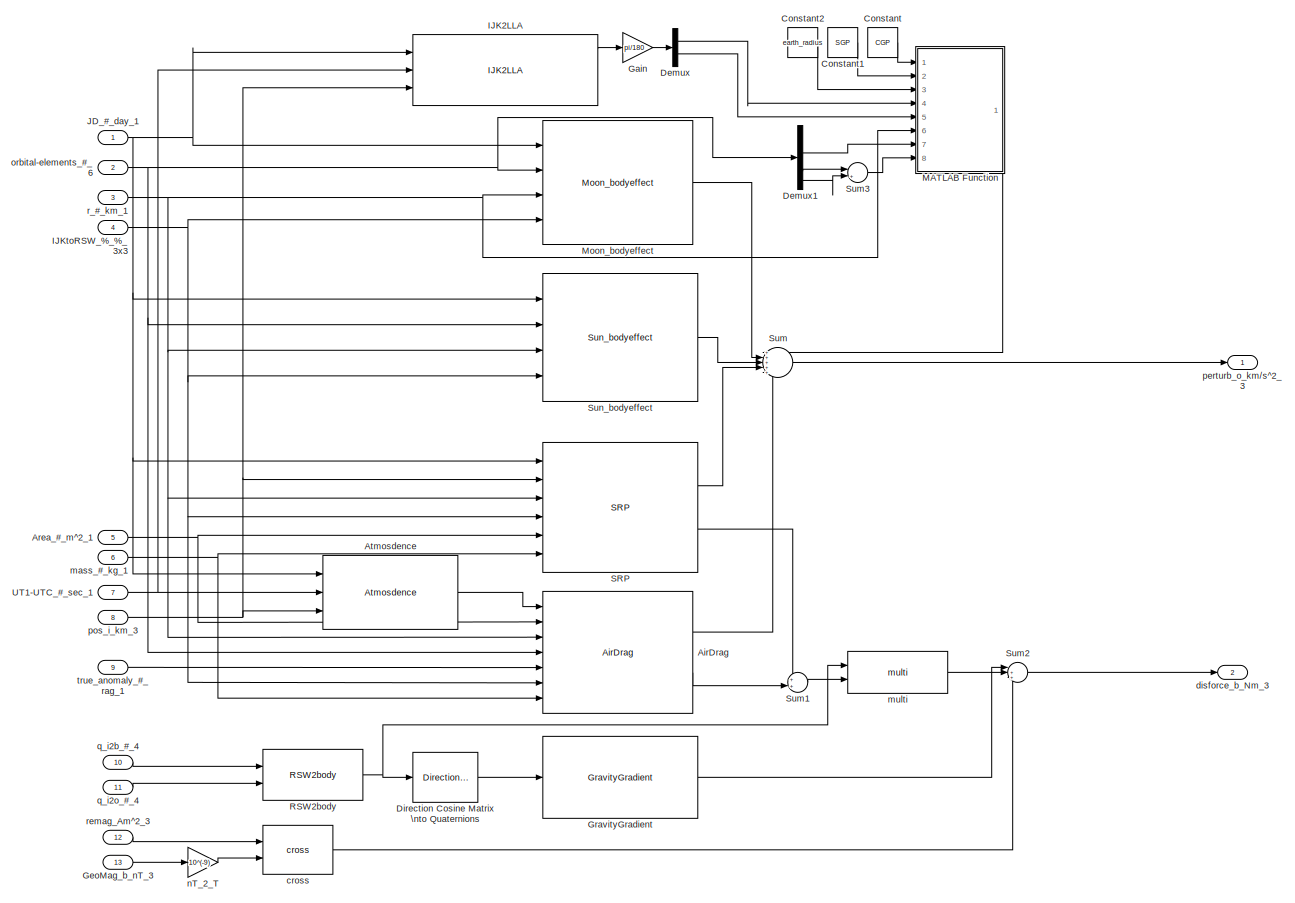
[diagram: Perturbation&Disturabance - part 1/1, most of the canvas]
BLOCK [SubSystem] Perturbation&Disturabance
  FunctionWithSeparateData = off
  MaskHideContents = off
  MinAlgLoopOccurrences = off
  Opaque = off
  Ports = [13, 2]
  PropExecContextOutsideSubsystem = off
  RTWSystemCode = Auto
  RequestExecContextInheritance = off
  SID = 188
BLOCK [Reference] Perturbation&Disturabance/AirDrag  REF=lib_env/AirDrag  (lib defined in mdl_9d5cf06e00da)
  Ports = [7, 2]
  SID = 196
  SourceBlock = lib_env/AirDrag
  SourceType = SubSystem
BLOCK [Inport] Perturbation&Disturabance/Area_#_m^2_1
  IconDisplay = Port number
  Port = 5
  SID = 193
BLOCK [Reference] Perturbation&Disturabance/Atmosdence  REF=lib_env/Atmosdence  (lib defined in mdl_9d5cf06e00da)
  Ports = [3, 1]
  SID = 228
  SourceBlock = lib_env/Atmosdence
  SourceType = SubSystem
BLOCK [Constant] Perturbation&Disturabance/Constant
  SID = 985
  Value = CGP
BLOCK [Constant] Perturbation&Disturabance/Constant1
  SID = 986
  Value = SGP
BLOCK [Constant] Perturbation&Disturabance/Constant2
  SID = 987
  Value = earth_radius
BLOCK [Demux] Perturbation&Disturabance/Demux
  DisplayOption = bar
  Outputs = 2
  Ports = [1, 2]
  SID = 540
BLOCK [Demux] Perturbation&Disturabance/Demux1
  DisplayOption = bar
  Outputs = 6
  Ports = [1, 6]
  SID = 989
BLOCK [Reference] Perturbation&Disturabance/Direction Cosine Matrix \nto Quaternions  REF=aerolibtransform2/Direction Cosine Matrix \nto Quaternions
  Ports = [1, 1]
  SID = 245
  SourceBlock = aerolibtransform2/Direction Cosine Matrix \nto Quaternions
  SourceType = DCM2Quaternion
BLOCK [Gain] Perturbation&Disturabance/Gain
  Gain = pi/180
  OutDataTypeStr = Inherit: Inherit via internal rule
  ParamDataTypeStr = Inherit: Inherit via internal rule
  SID = 539
  SaturateOnIntegerOverflow = off
BLOCK [Inport] Perturbation&Disturabance/GeoMag_b_nT_3
  IconDisplay = Port number
  Port = 13
  SID = 615
BLOCK [Reference] Perturbation&Disturabance/GravityGradient  REF=lib_env/GravityGradient  (lib defined in mdl_9d5cf06e00da)
  Ports = [1, 1]
  SID = 197
  SourceBlock = lib_env/GravityGradient
  SourceType = SubSystem
BLOCK [Reference] Perturbation&Disturabance/IJK2LLA  REF=lib_orbittrance/IJK2LLA  (lib defined in mdl_e1987a65d5b0)
  Ports = [3, 4]
  SID = 538
  SourceBlock = lib_orbittrance/IJK2LLA
  SourceType = SubSystem
BLOCK [Inport] Perturbation&Disturabance/IJKtoRSW_%_%_3x3
  IconDisplay = Port number
  Port = 4
  SID = 192
BLOCK [Inport] Perturbation&Disturabance/JD_#_day_1
  IconDisplay = Port number
  SID = 189
BLOCK [SubSystem] Perturbation&Disturabance/MATLAB Function
  ErrorFcn = Stateflow.Translate.translate
  FunctionWithSeparateData = off
  MaskDescription = Embedded MATLAB block
  MaskHideContents = off
  MaskIconFrame = on
  MaskIconOpaque = off
  MaskIconRotate = none
  MaskIconUnits = normalized
  MaskPortRotate = default
  MaskSelfModifiable = on
  MaskType = Stateflow
  MinAlgLoopOccurrences = off
  Opaque = off
  PermitHierarchicalResolution = ExplicitOnly
  Ports = [8, 1]
  PropExecContextOutsideSubsystem = off
  RTWSystemCode = Auto
  RequestExecContextInheritance = off
  SID = 984
  TreatAsAtomicUnit = on
BLOCK [Demux] Perturbation&Disturabance/MATLAB Function/ Demux 
  Outputs = 1
  Ports = [1, 1]
  SID = 984::15
BLOCK [S-Function] Perturbation&Disturabance/MATLAB Function/ SFunction 
  EnableBusSupport = off
  FunctionName = sf_sfun
  PortCounts = [8 2]
  Ports = [8, 2]
  SID = 984::14
  Tag = Stateflow S-Function lib_env 15
BLOCK [Terminator] Perturbation&Disturabance/MATLAB Function/ Terminator 
  SID = 984::17
BLOCK [Inport] Perturbation&Disturabance/MATLAB Function/CGP
  IconDisplay = Port number
  SID = 984::18
BLOCK [Inport] Perturbation&Disturabance/MATLAB Function/Re
  IconDisplay = Port number
  Port = 3
  SID = 984::20
BLOCK [Inport] Perturbation&Disturabance/MATLAB Function/SGP
  IconDisplay = Port number
  Port = 2
  SID = 984::19
BLOCK [Outport] Perturbation&Disturabance/MATLAB Function/a
  IconDisplay = Port number
  SID = 984::5
BLOCK [Inport] Perturbation&Disturabance/MATLAB Function/i
  IconDisplay = Port number
  Port = 7
  SID = 984::24
BLOCK [Inport] Perturbation&Disturabance/MATLAB Function/lam
  IconDisplay = Port number
  Port = 5
  SID = 984::22
BLOCK [Inport] Perturbation&Disturabance/MATLAB Function/phi
  IconDisplay = Port number
  Port = 4
  SID = 984::21
BLOCK [Inport] Perturbation&Disturabance/MATLAB Function/r
  IconDisplay = Port number
  Port = 6
  SID = 984::23
BLOCK [Inport] Perturbation&Disturabance/MATLAB Function/u
  IconDisplay = Port number
  Port = 8
  SID = 984::1
BLOCK [Reference] Perturbation&Disturabance/Moon_bodyeffect  REF=lib_env/Moon_bodyeffect  (lib defined in mdl_9d5cf06e00da)
  Ports = [4, 1]
  SID = 198
  SourceBlock = lib_env/Moon_bodyeffect
  SourceType = SubSystem
BLOCK [Reference] Perturbation&Disturabance/RSW2body  REF=lib_env/RSW2body  (lib defined in mdl_9d5cf06e00da)
  Ports = [2, 1]
  SID = 244
  SourceBlock = lib_env/RSW2body
  SourceType = SubSystem
BLOCK [Reference] Perturbation&Disturabance/SRP  REF=lib_env/SRP  (lib defined in mdl_9d5cf06e00da)
  Ports = [6, 2]
  SID = 199
  SourceBlock = lib_env/SRP
  SourceType = SubSystem
BLOCK [Sum] Perturbation&Disturabance/Sum
  IconShape = round
  InputSameDT = off
  Inputs = +++++
  OutDataTypeStr = Inherit: Inherit via internal rule
  Ports = [5, 1]
  SID = 204
  SaturateOnIntegerOverflow = off
BLOCK [Sum] Perturbation&Disturabance/Sum1
  IconShape = round
  InputSameDT = off
  Inputs = ++|
  OutDataTypeStr = Inherit: Inherit via internal rule
  Ports = [2, 1]
  SID = 205
  SaturateOnIntegerOverflow = off
BLOCK [Sum] Perturbation&Disturabance/Sum2
  IconShape = round
  InputSameDT = off
  Inputs = |+++
  OutDataTypeStr = Inherit: Inherit via internal rule
  Ports = [3, 1]
  SID = 246
  SaturateOnIntegerOverflow = off
BLOCK [Sum] Perturbation&Disturabance/Sum3
  IconShape = round
  InputSameDT = off
  Inputs = |++
  OutDataTypeStr = Inherit: Inherit via internal rule
  Ports = [2, 1]
  SID = 990
  SaturateOnIntegerOverflow = off
BLOCK [Reference] Perturbation&Disturabance/Sun_bodyeffect  REF=lib_env/Sun_bodyeffect  (lib defined in mdl_9d5cf06e00da)
  Ports = [4, 1]
  SID = 200
  SourceBlock = lib_env/Sun_bodyeffect
  SourceType = SubSystem
BLOCK [Inport] Perturbation&Disturabance/UT1-UTC_#_sec_1
  IconDisplay = Port number
  Port = 7
  SID = 229
BLOCK [Reference] Perturbation&Disturabance/cross  REF=lib_util/cross  (lib defined in mdl_263c60253fa7)
  Ports = [2, 1]
  SID = 621
  SourceBlock = lib_util/cross
  SourceType = SubSystem
BLOCK [Outport] Perturbation&Disturabance/disforce_b_Nm_3
  IconDisplay = Port number
  Port = 2
  SID = 202
BLOCK [Inport] Perturbation&Disturabance/mass_#_kg_1
  IconDisplay = Port number
  Port = 6
  SID = 194
BLOCK [Reference] Perturbation&Disturabance/multi  REF=lib_util/multi  (lib defined in mdl_263c60253fa7)
  Ports = [2, 1]
  SID = 247
  SourceBlock = lib_util/multi
  SourceType = SubSystem
BLOCK [Gain] Perturbation&Disturabance/nT_2_T
  Gain = 10^(-9)
  OutDataTypeStr = Inherit: Inherit via internal rule
  ParamDataTypeStr = Inherit: Inherit via internal rule
  SID = 622
  SaturateOnIntegerOverflow = off
BLOCK [Inport] Perturbation&Disturabance/orbital-elements_#_6
  IconDisplay = Port number
  Port = 2
  SID = 190
BLOCK [Outport] Perturbation&Disturabance/perturb_o_km//s^2_3
  IconDisplay = Port number
  SID = 201
BLOCK [Inport] Perturbation&Disturabance/pos_i_km_3
  IconDisplay = Port number
  Port = 8
  SID = 231
BLOCK [Inport] Perturbation&Disturabance/q_i2b_#_4
  IconDisplay = Port number
  Port = 10
  SID = 232
BLOCK [Inport] Perturbation&Disturabance/q_i2o_#_4
  IconDisplay = Port number
  Port = 11
  SID = 233
BLOCK [Inport] Perturbation&Disturabance/r_#_km_1
  IconDisplay = Port number
  Port = 3
  SID = 191
BLOCK [Inport] Perturbation&Disturabance/remag_Am^2_3
  IconDisplay = Port number
  Port = 12
  SID = 623
BLOCK [Inport] Perturbation&Disturabance/true_anomaly_#_rag_1
  IconDisplay = Port number
  Port = 9
  SID = 195
BLOCK [SubSystem] RSW2body
  FunctionWithSeparateData = off
  MaskHideContents = off
  MinAlgLoopOccurrences = off
  Opaque = off
  Ports = [2, 1]
  PropExecContextOutsideSubsystem = off
  RTWSystemCode = Auto
  RequestExecContextInheritance = off
  SID = 234
BLOCK [Reference] RSW2body/Invert \n3x3 Matrix  REF=aerolibutil/Invert \n3x3 Matrix
  Ports = [1, 1]
  SID = 241
  SourceBlock = aerolibutil/Invert \n3x3 Matrix
  SourceType = Invert 3x3 Matrix
BLOCK [Reference] RSW2body/Quaternions to \nDirection Cosine Matrix  REF=aerolibtransform2/Quaternions to \nDirection Cosine Matrix
  Ports = [1, 1]
  SID = 239
  SourceBlock = aerolibtransform2/Quaternions to \nDirection Cosine Matrix
  SourceType = Quaternion2DCM
BLOCK [Reference] RSW2body/Quaternions to \nDirection Cosine Matrix1  REF=aerolibtransform2/Quaternions to \nDirection Cosine Matrix
  Ports = [1, 1]
  SID = 240
  SourceBlock = aerolibtransform2/Quaternions to \nDirection Cosine Matrix
  SourceType = Quaternion2DCM
BLOCK [Outport] RSW2body/RSW2b_#_#_3x3
  IconDisplay = Port number
  SID = 243
BLOCK [Reference] RSW2body/multi  REF=lib_util/multi  (lib defined in mdl_263c60253fa7)
  Ports = [2, 1]
  SID = 242
  SourceBlock = lib_util/multi
  SourceType = SubSystem
BLOCK [Inport] RSW2body/q_i2b_#_4
  IconDisplay = Port number
  SID = 237
BLOCK [Inport] RSW2body/q_i2o_#_4
  IconDisplay = Port number
  Port = 2
  SID = 238
BLOCK [SubSystem] SRP
  FunctionWithSeparateData = off
  MaskHideContents = off
  MinAlgLoopOccurrences = off
  Opaque = off
  Ports = [6, 2]
  PropExecContextOutsideSubsystem = off
  RTWSystemCode = Auto
  RequestExecContextInheritance = off
  SID = 2077
BLOCK [Inport] SRP/JulianDate_#_day_1
  IconDisplay = Port number
  SID = 2080
BLOCK [Outport] SRP/SRP_o_km//s^2_3
  IconDisplay = Port number
  SID = 2087
BLOCK [Outport] SRP/SRPt_o_Nm_3
  IconDisplay = Port number
  Port = 2
  SID = 2088
BLOCK [Inport] SRP/area_#_m^2_3
  IconDisplay = Port number
  Port = 5
  SID = 2084
BLOCK [Inport] SRP/i2o_#_#_3x3
  IconDisplay = Port number
  Port = 4
  SID = 2083
BLOCK [Inport] SRP/mass_#_kg_1
  IconDisplay = Port number
  Port = 6
  SID = 2085
BLOCK [Inport] SRP/pos_#_km_3
  IconDisplay = Port number
  Port = 2
  SID = 2081
BLOCK [Inport] SRP/r_#_km_1
  IconDisplay = Port number
  Port = 3
  SID = 2082
BLOCK [SubSystem] SRP/srp
  ErrorFcn = Stateflow.Translate.translate
  FunctionWithSeparateData = off
  MaskDescription = Embedded MATLAB block
  MaskDisplay = bgColor = Simulink.Root.ColorString2Rgb(get_param(gcbh, 'BackgroundColor')); image(imread('private/eml_membrane_16.png','png','BackgroundColor',bgColor(1:3)),'center'); disp([10 10 'srp']);
  MaskHideContents = off
  MaskIconFrame = on
  MaskIconOpaque = off
  MaskIconRotate = none
  MaskIconUnits = normalized
  MaskPortRotate = default
  MaskSelfModifiable = on
  MaskType = Stateflow
  MinAlgLoopOccurrences = off
  Opaque = off
  PermitHierarchicalResolution = ExplicitOnly
  Ports = [6, 2]
  PropExecContextOutsideSubsystem = off
  RTWSystemCode = Auto
  RequestExecContextInheritance = off
  SID = 2086
  TreatAsAtomicUnit = on
BLOCK [Demux] SRP/srp/ Demux 
  Outputs = 1
  Ports = [1, 1]
  SID = 2086::28
BLOCK [S-Function] SRP/srp/ SFunction 
  EnableBusSupport = off
  FunctionName = sf_sfun
  PortCounts = [6 3]
  Ports = [6, 3]
  SID = 2086::27
  Tag = Stateflow S-Function lib_env 11
BLOCK [Terminator] SRP/srp/ Terminator 
  SID = 2086::30
BLOCK [Inport] SRP/srp/R
  IconDisplay = Port number
  Port = 4
  SID = 2086::23
BLOCK [Outport] SRP/srp/SRP_acc
  IconDisplay = Port number
  SID = 2086::5
BLOCK [Outport] SRP/srp/SRP_t
  IconDisplay = Port number
  Port = 2
  SID = 2086::26
BLOCK [Inport] SRP/srp/area
  IconDisplay = Port number
  Port = 5
  SID = 2086::24
BLOCK [Inport] SRP/srp/jd
  IconDisplay = Port number
  SID = 2086::19
BLOCK [Inport] SRP/srp/mass
  IconDisplay = Port number
  Port = 6
  SID = 2086::25
BLOCK [Inport] SRP/srp/pos
  IconDisplay = Port number
  Port = 2
  SID = 2086::18
BLOCK [Inport] SRP/srp/r
  IconDisplay = Port number
  Port = 3
  SID = 2086::22
BLOCK [SubSystem] Sun_bodyeffect
  FunctionWithSeparateData = off
  MaskHideContents = off
  MinAlgLoopOccurrences = off
  Opaque = off
  Ports = [4, 1]
  PropExecContextOutsideSubsystem = off
  RTWSystemCode = Auto
  RequestExecContextInheritance = off
  SID = 2067
BLOCK [Inport] Sun_bodyeffect/JulianDate_#_day_1
  IconDisplay = Port number
  SID = 2070
BLOCK [Reference] Sun_bodyeffect/Sun  REF=lib_astrodynamics/sun position vector/Sun  (lib defined in mdl_a29f7b0aead9)
  Ports = [1, 3]
  SID = 2074
  SourceBlock = lib_astrodynamics/sun position vector/Sun
  SourceType = Stateflow
BLOCK [Outport] Sun_bodyeffect/Suneff_o_km//s^2_3
  IconDisplay = Port number
  SID = 2076
BLOCK [Inport] Sun_bodyeffect/ele_#_#_6
  IconDisplay = Port number
  Port = 2
  SID = 2071
BLOCK [Inport] Sun_bodyeffect/i2o_#_#_3x3
  IconDisplay = Port number
  Port = 4
  SID = 2073
BLOCK [Inport] Sun_bodyeffect/r_#_km_1
  IconDisplay = Port number
  Port = 3
  SID = 2072
BLOCK [SubSystem] Sun_bodyeffect/sun_b_e
  ErrorFcn = Stateflow.Translate.translate
  FunctionWithSeparateData = off
  MaskDescription = Embedded MATLAB block
  MaskDisplay = bgColor = Simulink.Root.ColorString2Rgb(get_param(gcbh, 'BackgroundColor')); image(imread('private/eml_membrane_16.png','png','BackgroundColor',bgColor(1:3)),'center'); disp([10 10 'sun_body_eff']);
  MaskHideContents = off
  MaskIconFrame = on
  MaskIconOpaque = off
  MaskIconRotate = none
  MaskIconUnits = normalized
  MaskPortRotate = default
  MaskSelfModifiable = on
  MaskType = Stateflow
  MinAlgLoopOccurrences = off
  Opaque = off
  PermitHierarchicalResolution = ExplicitOnly
  Ports = [6, 1]
  PropExecContextOutsideSubsystem = off
  RTWSystemCode = Auto
  RequestExecContextInheritance = off
  SID = 2075
  TreatAsAtomicUnit = on
BLOCK [Demux] Sun_bodyeffect/sun_b_e/ Demux 
  Outputs = 1
  Ports = [1, 1]
  SID = 2075::26
BLOCK [S-Function] Sun_bodyeffect/sun_b_e/ SFunction 
  EnableBusSupport = off
  FunctionName = sf_sfun
  PortCounts = [6 2]
  Ports = [6, 2]
  SID = 2075::25
  Tag = Stateflow S-Function lib_env 13
BLOCK [Terminator] Sun_bodyeffect/sun_b_e/ Terminator 
  SID = 2075::28
BLOCK [Outport] Sun_bodyeffect/sun_b_e/F
  IconDisplay = Port number
  SID = 2075::5
BLOCK [Inport] Sun_bodyeffect/sun_b_e/R
  IconDisplay = Port number
  Port = 6
  SID = 2075::22
BLOCK [Inport] Sun_bodyeffect/sun_b_e/ele
  IconDisplay = Port number
  Port = 4
  SID = 2075::20
BLOCK [Inport] Sun_bodyeffect/sun_b_e/lat
  IconDisplay = Port number
  Port = 2
  SID = 2075::18
BLOCK [Inport] Sun_bodyeffect/sun_b_e/lon
  IconDisplay = Port number
  SID = 2075::19
BLOCK [Inport] Sun_bodyeffect/sun_b_e/r
  IconDisplay = Port number
  Port = 5
  SID = 2075::21
BLOCK [Inport] Sun_bodyeffect/sun_b_e/rp
  IconDisplay = Port number
  Port = 3
  SID = 2075::1
BLOCK [SubSystem] Sun_flag
  FunctionWithSeparateData = off
  MaskHideContents = off
  MinAlgLoopOccurrences = off
  Opaque = off
  Ports = [3, 1]
  PropExecContextOutsideSubsystem = off
  RTWSystemCode = Auto
  RequestExecContextInheritance = off
  SID = 2049
BLOCK [Inport] Sun_flag/JulianDate_#_day_1
  IconDisplay = Port number
  SID = 2052
BLOCK [Outport] Sun_flag/flag
  IconDisplay = Port number
  SID = 2056
BLOCK [Inport] Sun_flag/pos_i_km_3
  IconDisplay = Port number
  Port = 3
  SID = 2054
BLOCK [Inport] Sun_flag/r_#_km_1
  IconDisplay = Port number
  Port = 2
  SID = 2053
BLOCK [SubSystem] Sun_flag/srp
  ErrorFcn = Stateflow.Translate.translate
  FunctionWithSeparateData = off
  MaskDescription = Embedded MATLAB block
  MaskDisplay = bgColor = Simulink.Root.ColorString2Rgb(get_param(gcbh, 'BackgroundColor')); image(imread('private/eml_membrane_16.png','png','BackgroundColor',bgColor(1:3)),'center'); disp([10 10 'srp']);
  MaskHideContents = off
  MaskIconFrame = on
  MaskIconOpaque = off
  MaskIconRotate = none
  MaskIconUnits = normalized
  MaskPortRotate = default
  MaskSelfModifiable = on
  MaskType = Stateflow
  MinAlgLoopOccurrences = off
  Opaque = off
  PermitHierarchicalResolution = ExplicitOnly
  Ports = [3, 1]
  PropExecContextOutsideSubsystem = off
  RTWSystemCode = Auto
  RequestExecContextInheritance = off
  SID = 2055
  TreatAsAtomicUnit = on
BLOCK [Demux] Sun_flag/srp/ Demux 
  Outputs = 1
  Ports = [1, 1]
  SID = 2055::32
BLOCK [S-Function] Sun_flag/srp/ SFunction 
  EnableBusSupport = on
  FunctionName = sf_sfun
  PortCounts = [3 2]
  Ports = [3, 2]
  SID = 2055::31
  Tag = Stateflow S-Function lib_env 16
BLOCK [Terminator] Sun_flag/srp/ Terminator 
  SID = 2055::34
BLOCK [Outport] Sun_flag/srp/flag
  IconDisplay = Port number
  SID = 2055::5
BLOCK [Inport] Sun_flag/srp/jd
  IconDisplay = Port number
  SID = 2055::19
BLOCK [Inport] Sun_flag/srp/pos
  IconDisplay = Port number
  Port = 2
  SID = 2055::35
BLOCK [Inport] Sun_flag/srp/r
  IconDisplay = Port number
  Port = 3
  SID = 2055::22
BLOCK [SubSystem] calc_q
  FunctionWithSeparateData = off
  MaskHideContents = off
  MinAlgLoopOccurrences = off
  Opaque = off
  Ports = [2, 1]
  PropExecContextOutsideSubsystem = off
  RTWSystemCode = Auto
  RequestExecContextInheritance = off
  SID = 155
BLOCK [Constant] calc_q/Constant
  SID = 158
BLOCK [Constant] calc_q/Constant1
  SID = 159
  Value = 3
BLOCK [Constant] calc_q/Constant2
  SID = 160
  Value = 3
BLOCK [Demux] calc_q/Demux
  DisplayOption = bar
  Outputs = 6
  Ports = [1, 6]
  SID = 161
BLOCK [Inport] calc_q/OE
  IconDisplay = Port number
  SID = 156
BLOCK [Reference] calc_q/Quaternion\nMultiplication  REF=aerolibutil/Quaternion\nMultiplication
  Ports = [2, 1]
  SID = 162
  SourceBlock = aerolibutil/Quaternion\nMultiplication
  SourceType = Quaternion Multiplication
BLOCK [Reference] calc_q/Quaternion\nMultiplication1  REF=aerolibutil/Quaternion\nMultiplication
  Ports = [2, 1]
  SID = 163
  SourceBlock = aerolibutil/Quaternion\nMultiplication
  SourceType = Quaternion Multiplication
BLOCK [Reference] calc_q/Quaternion\nNormalize  REF=aerolibutil/Quaternion\nNormalize
  Ports = [1, 1]
  SID = 164
  SourceBlock = aerolibutil/Quaternion\nNormalize
  SourceType = Quaternion Normalize
BLOCK [Sum] calc_q/Sum
  IconShape = round
  InputSameDT = off
  Inputs = ++|
  OutDataTypeStr = Inherit: Inherit via internal rule
  Ports = [2, 1]
  SID = 165
  SaturateOnIntegerOverflow = off
BLOCK [Terminator] calc_q/Terminator
  SID = 166
BLOCK [Terminator] calc_q/Terminator1
  SID = 167
BLOCK [Terminator] calc_q/Terminator2
  SID = 168
BLOCK [Reference] calc_q/calc_cos_sin  REF=lib_util/calc_cos_sin  (lib defined in mdl_263c60253fa7)
  Ports = [2, 1]
  SID = 169
  SourceBlock = lib_util/calc_cos_sin
  SourceType = SubSystem
BLOCK [Reference] calc_q/calc_cos_sin1  REF=lib_util/calc_cos_sin  (lib defined in mdl_263c60253fa7)
  Ports = [2, 1]
  SID = 170
  SourceBlock = lib_util/calc_cos_sin
  SourceType = SubSystem
BLOCK [Reference] calc_q/calc_cos_sin2  REF=lib_util/calc_cos_sin  (lib defined in mdl_263c60253fa7)
  Ports = [2, 1]
  SID = 171
  SourceBlock = lib_util/calc_cos_sin
  SourceType = SubSystem
BLOCK [Outport] calc_q/q_i-o
  IconDisplay = Port number
  SID = 172
BLOCK [Inport] calc_q/true_anomaly_#_rad_1
  IconDisplay = Port number
  Port = 2
  SID = 157
BLOCK [SubSystem] dipole geomagnetic model
  ErrorFcn = Stateflow.Translate.translate
  FunctionWithSeparateData = off
  MaskDescription = Embedded MATLAB block
  MaskHideContents = off
  MaskIconFrame = on
  MaskIconOpaque = off
  MaskIconRotate = none
  MaskIconUnits = normalized
  MaskPortRotate = default
  MaskSelfModifiable = on
  MaskType = Stateflow
  MinAlgLoopOccurrences = off
  Opaque = off
  PermitHierarchicalResolution = ExplicitOnly
  Ports = [1, 1]
  PropExecContextOutsideSubsystem = off
  RTWSystemCode = Auto
  RequestExecContextInheritance = off
  SID = 2405
  TreatAsAtomicUnit = on
BLOCK [Demux] dipole geomagnetic model/ Demux 
  Outputs = 1
  Ports = [1, 1]
  SID = 2405::15
BLOCK [S-Function] dipole geomagnetic model/ SFunction 
  EnableBusSupport = on
  FunctionName = sf_sfun
  PortCounts = [1 2]
  Ports = [1, 2]
  SID = 2405::14
  Tag = Stateflow S-Function lib_env 4
BLOCK [Terminator] dipole geomagnetic model/ Terminator 
  SID = 2405::17
BLOCK [Outport] dipole geomagnetic model/B
  IconDisplay = Port number
  SID = 2405::5
BLOCK [Inport] dipole geomagnetic model/rsat_e
  IconDisplay = Port number
  SID = 2405::1
BLOCK [SubSystem] half angle separation of the earth
  FunctionWithSeparateData = off
  MaskHideContents = off
  MinAlgLoopOccurrences = off
  Opaque = off
  Ports = [1, 1]
  PropExecContextOutsideSubsystem = off
  RTWSystemCode = Auto
  RequestExecContextInheritance = off
  SID = 2042
BLOCK [SubSystem] half angle separation of the earth/MATLAB Function
  ErrorFcn = Stateflow.Translate.translate
  FunctionWithSeparateData = off
  MaskDescription = Embedded MATLAB block
  MaskHideContents = off
  MaskIconFrame = on
  MaskIconOpaque = off
  MaskIconRotate = none
  MaskIconUnits = normalized
  MaskPortRotate = default
  MaskSelfModifiable = on
  MaskType = Stateflow
  MinAlgLoopOccurrences = off
  Opaque = off
  PermitHierarchicalResolution = ExplicitOnly
  Ports = [2, 1]
  PropExecContextOutsideSubsystem = off
  RTWSystemCode = Auto
  RequestExecContextInheritance = off
  SID = 2046
  TreatAsAtomicUnit = on
BLOCK [Demux] half angle separation of the earth/MATLAB Function/ Demux 
  Outputs = 1
  Ports = [1, 1]
  SID = 2046::32
BLOCK [S-Function] half angle separation of the earth/MATLAB Function/ SFunction 
  EnableBusSupport = off
  FunctionName = sf_sfun
  PortCounts = [2 2]
  Ports = [2, 2]
  SID = 2046::31
  Tag = Stateflow S-Function lib_env 19
BLOCK [Terminator] half angle separation of the earth/MATLAB Function/ Terminator 
  SID = 2046::34
BLOCK [Inport] half angle separation of the earth/MATLAB Function/R
  IconDisplay = Port number
  Port = 2
  SID = 2046::18
BLOCK [Outport] half angle separation of the earth/MATLAB Function/ang
  IconDisplay = Port number
  SID = 2046::5
BLOCK [Inport] half angle separation of the earth/MATLAB Function/h
  IconDisplay = Port number
  SID = 2046::1
BLOCK [Inport] half angle separation of the earth/altitude_#_km_1
  IconDisplay = Port number
  SID = 2045
BLOCK [Outport] half angle separation of the earth/angle_#_rad_1
  IconDisplay = Port number
  SID = 2048
BLOCK [Constant] half angle separation of the earth/earth radius_#_km_1
  SID = 2047
  Value = earth_radius
BLOCK [SubSystem] nonsphericaleffect
  FunctionWithSeparateData = off
  MaskHideContents = off
  MinAlgLoopOccurrences = off
  Opaque = off
  Ports = [4, 1]
  PropExecContextOutsideSubsystem = off
  RTWSystemCode = Auto
  RequestExecContextInheritance = off
  SID = 379
BLOCK [Reference] nonsphericaleffect/Direction Cosine Matrix\nECEF to NED  REF=aerolibtransform2/Direction Cosine Matrix\nECEF to NED
  Ports = [1, 1]
  SID = 382
  SourceBlock = aerolibtransform2/Direction Cosine Matrix\nECEF to NED
  SourceType = DCM ECEF to NED
BLOCK [Gain] nonsphericaleffect/Gain
  Gain = 1000
  OutDataTypeStr = Inherit: Inherit via internal rule
  ParamDataTypeStr = Inherit: Inherit via internal rule
  SID = 383
  SaturateOnIntegerOverflow = off
BLOCK [Reference] nonsphericaleffect/IJK2LLA  REF=lib_orbittrance/IJK2LLA  (lib defined in mdl_e1987a65d5b0)
  Ports = [3, 4]
  SID = 384
  SourceBlock = lib_orbittrance/IJK2LLA
  SourceType = SubSystem
BLOCK [Reference] nonsphericaleffect/Invert \n3x3 Matrix  REF=aerolibutil/Invert \n3x3 Matrix
  Ports = [1, 1]
  SID = 385
  SourceBlock = aerolibutil/Invert \n3x3 Matrix
  SourceType = Invert 3x3 Matrix
BLOCK [Reference] nonsphericaleffect/Invert \n3x3 Matrix1  REF=aerolibutil/Invert \n3x3 Matrix
  Ports = [1, 1]
  SID = 386
  SourceBlock = aerolibutil/Invert \n3x3 Matrix
  SourceType = Invert 3x3 Matrix
BLOCK [Inport] nonsphericaleffect/Julian Date_%_day_1
  IconDisplay = Port number
  SID = 380
BLOCK [Terminator] nonsphericaleffect/Terminator
  SID = 394
BLOCK [Inport] nonsphericaleffect/UT1-UTC_%_sec_1
  IconDisplay = Port number
  Port = 2
  SID = 392
BLOCK [Reference] nonsphericaleffect/WGS84 Gravity Model   REF=aerolibgravity2/WGS84 Gravity Model 
  Ports = [2, 1]
  SID = 387
  SourceBlock = aerolibgravity2/WGS84 Gravity Model
  SourceType = WGS84 Gravity Model 3D
  action = Warning
  day = 10
  jd_loc = on
  model = WGS84 Exact
  month = October
  no_atmos = on
  no_centrifugal = on
  precessing = on
  units = Metric (MKS)
  year = 2004
BLOCK [Inport] nonsphericaleffect/i2o_#_#_3x3
  IconDisplay = Port number
  Port = 4
  SID = 396
BLOCK [SubSystem] nonsphericaleffect/m2km
  ErrorFcn = Stateflow.Translate.translate
  FunctionWithSeparateData = off
  MaskDescription = Embedded MATLAB block
  MaskHideContents = off
  MaskIconFrame = on
  MaskIconOpaque = off
  MaskIconRotate = none
  MaskIconUnits = normalized
  MaskPortRotate = default
  MaskSelfModifiable = on
  MaskType = Stateflow
  MinAlgLoopOccurrences = off
  Opaque = off
  PermitHierarchicalResolution = ExplicitOnly
  Ports = [1, 1]
  PropExecContextOutsideSubsystem = off
  RTWSystemCode = Auto
  RequestExecContextInheritance = off
  SID = 388
  TreatAsAtomicUnit = on
BLOCK [Demux] nonsphericaleffect/m2km/ Demux 
  Outputs = 1
  Ports = [1, 1]
  SID = 388::15
BLOCK [S-Function] nonsphericaleffect/m2km/ SFunction 
  EnableBusSupport = on
  FunctionName = sf_sfun
  PortCounts = [1 2]
  Ports = [1, 2]
  SID = 388::14
  Tag = Stateflow S-Function lib_env 6
BLOCK [Terminator] nonsphericaleffect/m2km/ Terminator 
  SID = 388::17
BLOCK [Inport] nonsphericaleffect/m2km/u
  IconDisplay = Port number
  SID = 388::1
BLOCK [Outport] nonsphericaleffect/m2km/y
  IconDisplay = Port number
  SID = 388::5
BLOCK [SubSystem] nonsphericaleffect/makeline
  ErrorFcn = Stateflow.Translate.translate
  FunctionWithSeparateData = off
  MaskDescription = Embedded MATLAB block
  MaskHideContents = off
  MaskIconFrame = on
  MaskIconOpaque = off
  MaskIconRotate = none
  MaskIconUnits = normalized
  MaskPortRotate = default
  MaskSelfModifiable = on
  MaskType = Stateflow
  MinAlgLoopOccurrences = off
  Opaque = off
  PermitHierarchicalResolution = ExplicitOnly
  Ports = [2, 1]
  PropExecContextOutsideSubsystem = off
  RTWSystemCode = Auto
  RequestExecContextInheritance = off
  SID = 389
  TreatAsAtomicUnit = on
BLOCK [Demux] nonsphericaleffect/makeline/ Demux 
  Outputs = 1
  Ports = [1, 1]
  SID = 389::15
BLOCK [S-Function] nonsphericaleffect/makeline/ SFunction 
  EnableBusSupport = on
  FunctionName = sf_sfun
  PortCounts = [2 2]
  Ports = [2, 2]
  SID = 389::14
  Tag = Stateflow S-Function lib_env 8
BLOCK [Terminator] nonsphericaleffect/makeline/ Terminator 
  SID = 389::17
BLOCK [Inport] nonsphericaleffect/makeline/u
  IconDisplay = Port number
  SID = 389::1
BLOCK [Inport] nonsphericaleffect/makeline/v
  IconDisplay = Port number
  Port = 2
  SID = 389::18
BLOCK [Outport] nonsphericaleffect/makeline/y
  IconDisplay = Port number
  SID = 389::5
BLOCK [Reference] nonsphericaleffect/multi1  REF=lib_util/multi  (lib defined in mdl_263c60253fa7)
  Ports = [2, 1]
  SID = 390
  SourceBlock = lib_util/multi
  SourceType = SubSystem
BLOCK [Reference] nonsphericaleffect/multi2  REF=lib_util/multi  (lib defined in mdl_263c60253fa7)
  Ports = [2, 1]
  SID = 391
  SourceBlock = lib_util/multi
  SourceType = SubSystem
BLOCK [Reference] nonsphericaleffect/multi3  REF=lib_util/multi  (lib defined in mdl_263c60253fa7)
  Ports = [2, 1]
  SID = 397
  SourceBlock = lib_util/multi
  SourceType = SubSystem
BLOCK [Outport] nonsphericaleffect/nonsperical_o_km//s2_3
  IconDisplay = Port number
  SID = 381
BLOCK [Inport] nonsphericaleffect/pos_i_km_3
  IconDisplay = Port number
  Port = 3
  SID = 393
BLOCK [SubSystem] nrlmsise-00 simple
  FunctionWithSeparateData = off
  MaskHideContents = off
  MinAlgLoopOccurrences = off
  Opaque = off
  Ports = [6, 2]
  PropExecContextOutsideSubsystem = off
  RTWSystemCode = Auto
  RequestExecContextInheritance = off
  SID = 1705
BLOCK [Inport] nrlmsise-00 simple/DOY_#_day_1
  IconDisplay = Port number
  Port = 5
  SID = 1710
BLOCK [Constant] nrlmsise-00 simple/F107
  SID = 1712
  Value = 150
BLOCK [SubSystem] nrlmsise-00 simple/MATLAB Function
  ErrorFcn = Stateflow.Translate.translate
  FunctionWithSeparateData = off
  MaskDescription = Embedded MATLAB block
  MaskHideContents = off
  MaskIconFrame = on
  MaskIconOpaque = off
  MaskIconRotate = none
  MaskIconUnits = normalized
  MaskPortRotate = default
  MaskSelfModifiable = on
  MaskType = Stateflow
  MinAlgLoopOccurrences = off
  Opaque = off
  PermitHierarchicalResolution = ExplicitOnly
  Ports = [2, 1]
  PropExecContextOutsideSubsystem = off
  RTWSystemCode = Auto
  RequestExecContextInheritance = off
  SID = 1713
  TreatAsAtomicUnit = on
BLOCK [Demux] nrlmsise-00 simple/MATLAB Function/ Demux 
  Outputs = 1
  Ports = [1, 1]
  SID = 1713::15
BLOCK [S-Function] nrlmsise-00 simple/MATLAB Function/ SFunction 
  EnableBusSupport = on
  FunctionName = sf_sfun
  PortCounts = [2 2]
  Ports = [2, 2]
  SID = 1713::14
  Tag = Stateflow S-Function lib_env 18
BLOCK [Terminator] nrlmsise-00 simple/MATLAB Function/ Terminator 
  SID = 1713::17
BLOCK [Outport] nrlmsise-00 simple/MATLAB Function/LST
  IconDisplay = Port number
  SID = 1713::5
BLOCK [Inport] nrlmsise-00 simple/MATLAB Function/UT
  IconDisplay = Port number
  SID = 1713::1
BLOCK [Inport] nrlmsise-00 simple/MATLAB Function/lon
  IconDisplay = Port number
  Port = 2
  SID = 1713::18
BLOCK [Outport] nrlmsise-00 simple/T_#_K_1
  IconDisplay = Port number
  SID = 1732
BLOCK [Inport] nrlmsise-00 simple/UT_#_sec_1
  IconDisplay = Port number
  Port = 6
  SID = 1711
BLOCK [Inport] nrlmsise-00 simple/altitude_e_km_1
  IconDisplay = Port number
  Port = 3
  SID = 1708
BLOCK [Constant] nrlmsise-00 simple/aph
  SID = 1714
  Value = [4 0 0 0 0 0 0]
BLOCK [Constant] nrlmsise-00 simple/flag
  SID = 1715
  Value = [1 1 1 1 1 1 1 1 1 1 1 1 1 1 1 1 1 1 1 1 1 1 1]
BLOCK [Inport] nrlmsise-00 simple/latitude_e_deg_1
  IconDisplay = Port number
  SID = 1706
BLOCK [Inport] nrlmsise-00 simple/longitude_e_deg_1
  IconDisplay = Port number
  Port = 2
  SID = 1707
BLOCK [SubSystem] nrlmsise-00 simple/nrlmsise-00 full
  FunctionWithSeparateData = off
  MaskHideContents = off
  MinAlgLoopOccurrences = off
  Opaque = off
  Ports = [11, 2]
  PropExecContextOutsideSubsystem = off
  RTWSystemCode = Auto
  RequestExecContextInheritance = off
  SID = 1716
BLOCK [Inport] nrlmsise-00 simple/nrlmsise-00 full/DOY_#_day_1
  IconDisplay = Port number
  Port = 5
  SID = 1721
BLOCK [Inport] nrlmsise-00 simple/nrlmsise-00 full/F107A_#_#_1
  IconDisplay = Port number
  Port = 8
  SID = 1724
BLOCK [Inport] nrlmsise-00 simple/nrlmsise-00 full/F107_#_#_1
  IconDisplay = Port number
  Port = 9
  SID = 1725
BLOCK [Inport] nrlmsise-00 simple/nrlmsise-00 full/LST_#_hour_1
  IconDisplay = Port number
  Port = 7
  SID = 1723
BLOCK [S-Function] nrlmsise-00 simple/nrlmsise-00 full/S-Function
  EnableBusSupport = off
  FunctionName = sfunc_nrlmsise00
  Ports = [11, 2]
  SID = 1728
BLOCK [Outport] nrlmsise-00 simple/nrlmsise-00 full/T_#_K_1
  IconDisplay = Port number
  SID = 1730
BLOCK [Inport] nrlmsise-00 simple/nrlmsise-00 full/UT_#_sec_1
  IconDisplay = Port number
  Port = 6
  SID = 1722
BLOCK [Inport] nrlmsise-00 simple/nrlmsise-00 full/altitude_e_km_1
  IconDisplay = Port number
  Port = 3
  SID = 1719
BLOCK [Inport] nrlmsise-00 simple/nrlmsise-00 full/aph_#_#_7
  IconDisplay = Port number
  Port = 10
  SID = 1726
BLOCK [Inport] nrlmsise-00 simple/nrlmsise-00 full/flag_#_#_23
  IconDisplay = Port number
  Port = 11
  SID = 1727
BLOCK [Gain] nrlmsise-00 simple/nrlmsise-00 full/g//cm^3->kg//m^3
  Gain = 1000
  OutDataTypeStr = Inherit: Inherit via internal rule
  ParamDataTypeStr = Inherit: Inherit via internal rule
  SID = 1729
  SaturateOnIntegerOverflow = off
BLOCK [Inport] nrlmsise-00 simple/nrlmsise-00 full/latitude_e_deg_1
  IconDisplay = Port number
  SID = 1717
BLOCK [Inport] nrlmsise-00 simple/nrlmsise-00 full/longitude_e_deg_1
  IconDisplay = Port number
  Port = 2
  SID = 1718
BLOCK [Outport] nrlmsise-00 simple/nrlmsise-00 full/rho_#_kg//m^3_1
  IconDisplay = Port number
  Port = 2
  SID = 1731
BLOCK [Inport] nrlmsise-00 simple/nrlmsise-00 full/year_#_year_1
  IconDisplay = Port number
  Port = 4
  SID = 1720
BLOCK [Outport] nrlmsise-00 simple/rho_#_kg//m^3_1
  IconDisplay = Port number
  Port = 2
  SID = 1733
BLOCK [Inport] nrlmsise-00 simple/year_#_year_1
  IconDisplay = Port number
  Port = 4
  SID = 1709
BLOCK [SubSystem] pwr_generaton
  FunctionWithSeparateData = off
  MaskHideContents = off
  MinAlgLoopOccurrences = off
  Opaque = off
  Ports = [5, 5]
  PropExecContextOutsideSubsystem = off
  RTWSystemCode = Auto
  RequestExecContextInheritance = off
  SID = 1402
BLOCK [Sum] pwr_generaton/Add
  InputSameDT = off
  Inputs = +++
  OutDataTypeStr = Inherit: Inherit via internal rule
  Ports = [3, 1]
  SID = 1408
  SaturateOnIntegerOverflow = off
BLOCK [Inport] pwr_generaton/cell_c
  IconDisplay = Port number
  Port = 4
  SID = 1406
BLOCK [Inport] pwr_generaton/cell_o
  IconDisplay = Port number
  Port = 5
  SID = 1407
BLOCK [Outport] pwr_generaton/l_sun_out
  IconDisplay = Port number
  Port = 5
  SID = 1414
BLOCK [Outport] pwr_generaton/padol
  IconDisplay = Port number
  SID = 1410
BLOCK [Inport] pwr_generaton/padol_flag
  IconDisplay = Port number
  Port = 3
  SID = 1405
BLOCK [Outport] pwr_generaton/plus_z//plusminus_y
  IconDisplay = Port number
  Port = 3
  SID = 1412
BLOCK [SubSystem] pwr_generaton/solargeneration
  ErrorFcn = Stateflow.Translate.translate
  FunctionWithSeparateData = off
  MaskDescription = Embedded MATLAB block
  MaskHideContents = off
  MaskIconFrame = on
  MaskIconOpaque = off
  MaskIconRotate = none
  MaskIconUnits = normalized
  MaskPortRotate = default
  MaskSelfModifiable = on
  MaskType = Stateflow
  MinAlgLoopOccurrences = off
  Opaque = off
  PermitHierarchicalResolution = ExplicitOnly
  Ports = [5, 4]
  PropExecContextOutsideSubsystem = off
  RTWSystemCode = Auto
  RequestExecContextInheritance = off
  SID = 1409
  TreatAsAtomicUnit = on
BLOCK [Demux] pwr_generaton/solargeneration/ Demux 
  Outputs = 1
  Ports = [1, 1]
  SID = 1409::15
BLOCK [S-Function] pwr_generaton/solargeneration/ SFunction 
  EnableBusSupport = on
  FunctionName = sf_sfun
  PortCounts = [5 5]
  Ports = [5, 5]
  SID = 1409::14
  Tag = Stateflow S-Function lib_env 10
BLOCK [Terminator] pwr_generaton/solargeneration/ Terminator 
  SID = 1409::17
BLOCK [Inport] pwr_generaton/solargeneration/cell_c
  IconDisplay = Port number
  Port = 4
  SID = 1409::29
BLOCK [Inport] pwr_generaton/solargeneration/cell_o
  IconDisplay = Port number
  Port = 5
  SID = 1409::30
BLOCK [Outport] pwr_generaton/solargeneration/l_sun_out
  IconDisplay = Port number
  Port = 4
  SID = 1409::28
BLOCK [Outport] pwr_generaton/solargeneration/padol
  IconDisplay = Port number
  SID = 1409::5
BLOCK [Inport] pwr_generaton/solargeneration/padol_flag
  IconDisplay = Port number
  Port = 3
  SID = 1409::25
BLOCK [Inport] pwr_generaton/solargeneration/sun
  IconDisplay = Port number
  SID = 1409::1
BLOCK [Inport] pwr_generaton/solargeneration/sun_flag
  IconDisplay = Port number
  Port = 2
  SID = 1409::23
BLOCK [Outport] pwr_generaton/solargeneration/x_p
  IconDisplay = Port number
  Port = 2
  SID = 1409::26
BLOCK [Outport] pwr_generaton/solargeneration/z_y_p
  IconDisplay = Port number
  Port = 3
  SID = 1409::27
BLOCK [Outport] pwr_generaton/sum
  IconDisplay = Port number
  Port = 4
  SID = 1413
BLOCK [Inport] pwr_generaton/sun_b_#_3
  IconDisplay = Port number
  SID = 1403
BLOCK [Inport] pwr_generaton/sun_flag
  IconDisplay = Port number
  Port = 2
  SID = 1404
BLOCK [Outport] pwr_generaton/x
  IconDisplay = Port number
  Port = 2
  SID = 1411
BLOCK [SubSystem] pwrbudget_cal
  FunctionWithSeparateData = off
  MaskHideContents = off
  MinAlgLoopOccurrences = off
  Opaque = off
  Ports = [2, 1]
  PropExecContextOutsideSubsystem = off
  RTWSystemCode = Auto
  RequestExecContextInheritance = off
  SID = 1415
BLOCK [SubSystem] pwrbudget_cal/Efficiency
  ErrorFcn = Stateflow.Translate.translate
  FunctionWithSeparateData = off
  MaskDescription = Embedded MATLAB block
  MaskHideContents = off
  MaskIconFrame = on
  MaskIconOpaque = off
  MaskIconRotate = none
  MaskIconUnits = normalized
  MaskPortRotate = default
  MaskSelfModifiable = on
  MaskType = Stateflow
  MinAlgLoopOccurrences = off
  Opaque = off
  PermitHierarchicalResolution = ExplicitOnly
  Ports = [1, 1]
  PropExecContextOutsideSubsystem = off
  RTWSystemCode = Auto
  RequestExecContextInheritance = off
  SID = 1418
  TreatAsAtomicUnit = on
BLOCK [Demux] pwrbudget_cal/Efficiency/ Demux 
  Outputs = 1
  Ports = [1, 1]
  SID = 1418::15
BLOCK [S-Function] pwrbudget_cal/Efficiency/ SFunction 
  EnableBusSupport = on
  FunctionName = sf_sfun
  PortCounts = [1 2]
  Ports = [1, 2]
  SID = 1418::14
  Tag = Stateflow S-Function lib_env 12
BLOCK [Terminator] pwrbudget_cal/Efficiency/ Terminator 
  SID = 1418::17
BLOCK [Inport] pwrbudget_cal/Efficiency/u
  IconDisplay = Port number
  SID = 1418::1
BLOCK [Outport] pwrbudget_cal/Efficiency/y
  IconDisplay = Port number
  SID = 1418::5
BLOCK [Integrator] pwrbudget_cal/Integrator
  Ports = [1, 1]
  SID = 1419
BLOCK [Sum] pwrbudget_cal/Sum1
  IconShape = round
  InputSameDT = off
  Inputs = +-|
  OutDataTypeStr = Inherit: Inherit via internal rule
  Ports = [2, 1]
  SID = 1420
  SaturateOnIntegerOverflow = off
BLOCK [Outport] pwrbudget_cal/powerbudget_wh
  IconDisplay = Port number
  SID = 1424
BLOCK [Inport] pwrbudget_cal/powergen_string
  IconDisplay = Port number
  SID = 1416
BLOCK [Inport] pwrbudget_cal/powerload_string
  IconDisplay = Port number
  Port = 2
  SID = 1417
BLOCK [Gain] pwrbudget_cal/pwrgenperstring
  Gain = 15.4
  OutDataTypeStr = Inherit: Inherit via internal rule
  ParamDataTypeStr = Inherit: Inherit via internal rule
  SID = 1421
  SaturateOnIntegerOverflow = off
BLOCK [SubSystem] pwrbudget_cal/pwrload
  ErrorFcn = Stateflow.Translate.translate
  FunctionWithSeparateData = off
  MaskDescription = Embedded MATLAB block
  MaskDisplay = bgColor = Simulink.Root.ColorString2Rgb(get_param(gcbh, 'BackgroundColor')); image(imread('private/eml_membrane_16.png','png','BackgroundColor',bgColor(1:3)),'center'); disp([10 10 'pwrload']);
  MaskHideContents = off
  MaskIconFrame = on
  MaskIconOpaque = off
  MaskIconRotate = none
  MaskIconUnits = normalized
  MaskPortRotate = default
  MaskSelfModifiable = on
  MaskType = Stateflow
  MinAlgLoopOccurrences = off
  Opaque = off
  PermitHierarchicalResolution = ExplicitOnly
  Ports = [1, 1]
  PropExecContextOutsideSubsystem = off
  RTWSystemCode = Auto
  RequestExecContextInheritance = off
  SID = 1422
  TreatAsAtomicUnit = on
BLOCK [Demux] pwrbudget_cal/pwrload/ Demux 
  Outputs = 1
  Ports = [1, 1]
  SID = 1422::15
BLOCK [S-Function] pwrbudget_cal/pwrload/ SFunction 
  EnableBusSupport = on
  FunctionName = sf_sfun
  PortCounts = [1 2]
  Ports = [1, 2]
  SID = 1422::14
  Tag = Stateflow S-Function lib_env 17
BLOCK [Terminator] pwrbudget_cal/pwrload/ Terminator 
  SID = 1422::17
BLOCK [Outport] pwrbudget_cal/pwrload/p
  IconDisplay = Port number
  SID = 1422::5
BLOCK [Inport] pwrbudget_cal/pwrload/u
  IconDisplay = Port number
  SID = 1422::1
BLOCK [Gain] pwrbudget_cal/sec2hour
  Gain = 1/3600
  OutDataTypeStr = Inherit: Inherit via internal rule
  ParamDataTypeStr = Inherit: Inherit via internal rule
  SID = 1423
  SaturateOnIntegerOverflow = off
ANNOTATION (root): Pertubations
ANNOTATION (root): Power Generation
ANNOTATION (root): Propagator
ANNOTATION (root): Util
ANNOTATION (root): flag
ANNOTATION (root): ���x����͂���ƒn���������ފp�̔������o��\n��v�Z�Ɣ�r���A����OK\nparam_env.m���K�v
ANNOTATION (root): �����A���x�A�ܓx�A�o�x����͂����\n�n������o�͂���\n����OK\nIGRF11��c�R�[�h�Ɣ�r���A\n0.1nT�ȉ������x�ň�v
ANNOTATION AirDrag: CD=2.2; arm=0.05cm
ANNOTATION Environment&Dynamics: ECEF�̎����ECI�ɕϊ�
ANNOTATION Environment&Dynamics: ECI�̎����Body�ɕϊ�
ANNOTATION Environment&Dynamics: NED�̎����ECEF�ɕϊ�
ANNOTATION Environment&Dynamics: �c�����C
ANNOTATION Environment&Dynamics: �n���̏d�͏�ɂ��ۓ�
ANNOTATION Environment&Dynamics: �q���̈ʒu��ECI����ECEF�ɕϊ�
ANNOTATION Environment&Dynamics: �q�����猩���n�S�����̌v�Z
ANNOTATION Environment&Dynamics: �q�����猩�����z�����̌v�Z
ANNOTATION Environment&Dynamics: �q�����猩���������̌v�Z
ANNOTATION Environment&Dynamics: ���z�t�ˈ�
ANNOTATION Environment&Dynamics: �������牺�͐ۓ��E�O��-------------------------------------------------------------------------------------------------------------------------------------------------------------------------------------------------------------------------------------------------------------------------------------------------------------------------------------------------------
ANNOTATION Environment&Dynamics/AstroDynamics: ECI�ł̌������̌v�Z
ANNOTATION Environment&Dynamics/AstroDynamics: ECI�ł̑��z�����̌v�Z
ANNOTATION Environment&Dynamics/AstroDynamics: ECI����ECEF�ւ̕ϊ��s��̌v�Z
ANNOTATION Environment&Dynamics/OrbitalDynamics: True Anomary\nCalculation
ANNOTATION SRP: Arm=0.05cm
ANNOTATION calc_q: 20110927 quaternion�̊|���Z�̏��Ԃ��C��\nq1�̉�]�����Ă���q2�̉�]������ꍇ�̉��Z��\nq2*q1�ł͂Ȃ�q1*q2
ANNOTATION calc_q: M
ANNOTATION calc_q: W
ANNOTATION calc_q: a
ANNOTATION calc_q: e
ANNOTATION calc_q: i
ANNOTATION calc_q: ww
LINE AirDrag/area_#_m^2_3:1 -> AirDrag/calc_AD:2
LINE AirDrag/calc_AD/ Demux :1 -> AirDrag/calc_AD/ Terminator :1
LINE AirDrag/calc_AD/ SFunction :1 -> AirDrag/calc_AD/ Demux :1
LINE AirDrag/calc_AD/ SFunction :2 -> AirDrag/calc_AD/AD_acc:1
LINE AirDrag/calc_AD/ SFunction :3 -> AirDrag/calc_AD/AD_t:1
LINE AirDrag/calc_AD/R:1 -> AirDrag/calc_AD/ SFunction :6
LINE AirDrag/calc_AD/area:1 -> AirDrag/calc_AD/ SFunction :2
LINE AirDrag/calc_AD/ele:1 -> AirDrag/calc_AD/ SFunction :4
LINE AirDrag/calc_AD/mass:1 -> AirDrag/calc_AD/ SFunction :7
LINE AirDrag/calc_AD/r:1 -> AirDrag/calc_AD/ SFunction :3
LINE AirDrag/calc_AD/ro:1 -> AirDrag/calc_AD/ SFunction :1
LINE AirDrag/calc_AD/th:1 -> AirDrag/calc_AD/ SFunction :5
LINE AirDrag/calc_AD:1 -> AirDrag/ADacc_o_km//s^2_3:1
LINE AirDrag/calc_AD:2 -> AirDrag/ADt_o_Nm_3:1
LINE AirDrag/ele_#_#_6:1 -> AirDrag/calc_AD:4
LINE AirDrag/i2o_#_#_3x3:1 -> AirDrag/calc_AD:6
LINE AirDrag/mass_#_kg_1:1 -> AirDrag/calc_AD:7
LINE AirDrag/r_#_km_1:1 -> AirDrag/calc_AD:3
LINE AirDrag/ro_#_kg//m^3_1:1 -> AirDrag/calc_AD:1
LINE AirDrag/trueanomaly_#_rad_1:1 -> AirDrag/calc_AD:5
LINE Atmosdence/Demux:1 -> Atmosdence/Terminator7:1
LINE Atmosdence/Demux:2 -> Atmosdence/Terminator8:1
LINE Atmosdence/Demux:3 -> Atmosdence/Terminator10:1
LINE Atmosdence/Demux:4 -> Atmosdence/Terminator9:1
LINE Atmosdence/Demux:5 -> Atmosdence/Terminator11:1
LINE Atmosdence/Demux:6 -> Atmosdence/ro_#_kg//m^3_1:1
LINE Atmosdence/Demux:7 -> Atmosdence/Terminator14:1
LINE Atmosdence/Demux:8 -> Atmosdence/Terminator13:1
LINE Atmosdence/Demux:9 -> Atmosdence/Terminator12:1
LINE Atmosdence/IJK2LLA:1 -> Atmosdence/Mux:1
LINE Atmosdence/IJK2LLA:2 -> Atmosdence/km2m:1
LINE Atmosdence/IJK2LLA:3 -> Atmosdence/Terminator1:1
LINE Atmosdence/IJK2LLA:4 -> Atmosdence/Terminator:1
NET Atmosdence/JD2GC:1 -> Atmosdence/MATLAB Function:1, Atmosdence/NRLMSISE-00\nAtmosphere Model:2
LINE Atmosdence/JD2GC:2 -> Atmosdence/MATLAB Function:2
LINE Atmosdence/JD2GC:3 -> Atmosdence/MATLAB Function:3
LINE Atmosdence/JD2GC:4 -> Atmosdence/MATLAB Function:4
LINE Atmosdence/JD2GC:5 -> Atmosdence/MATLAB Function:5
NET Atmosdence/JD2GC:6 -> Atmosdence/MATLAB Function:6, Atmosdence/NRLMSISE-00\nAtmosphere Model:4
NET Atmosdence/JD_#_day_1:1 -> Atmosdence/IJK2LLA:1, Atmosdence/JD2GC:1
LINE Atmosdence/MATLAB Function/ Demux :1 -> Atmosdence/MATLAB Function/ Terminator :1
LINE Atmosdence/MATLAB Function/ SFunction :1 -> Atmosdence/MATLAB Function/ Demux :1
LINE Atmosdence/MATLAB Function/ SFunction :2 -> Atmosdence/MATLAB Function/dy:1
LINE Atmosdence/MATLAB Function/day:1 -> Atmosdence/MATLAB Function/ SFunction :3
LINE Atmosdence/MATLAB Function/hour:1 -> Atmosdence/MATLAB Function/ SFunction :4
LINE Atmosdence/MATLAB Function/minute:1 -> Atmosdence/MATLAB Function/ SFunction :5
LINE Atmosdence/MATLAB Function/month:1 -> Atmosdence/MATLAB Function/ SFunction :2
LINE Atmosdence/MATLAB Function/second:1 -> Atmosdence/MATLAB Function/ SFunction :6
LINE Atmosdence/MATLAB Function/year:1 -> Atmosdence/MATLAB Function/ SFunction :1
LINE Atmosdence/MATLAB Function:1 -> Atmosdence/NRLMSISE-00\nAtmosphere Model:3
LINE Atmosdence/Mux:1 -> Atmosdence/NRLMSISE-00\nAtmosphere Model:1
LINE Atmosdence/NRLMSISE-00\nAtmosphere Model:1 -> Atmosdence/Terminator6:1
LINE Atmosdence/NRLMSISE-00\nAtmosphere Model:2 -> Atmosdence/Demux:1
LINE Atmosdence/UT1-UTC_#_sec_1:1 -> Atmosdence/IJK2LLA:2
LINE Atmosdence/km2m:1 -> Atmosdence/Mux:2
LINE Atmosdence/pos_i_km_3:1 -> Atmosdence/IJK2LLA:3
LINE Environment&Dynamics/ADSW:1 -> Environment&Dynamics/Air Drag:enable
LINE Environment&Dynamics/Air Drag/Air Drag/ Demux :1 -> Environment&Dynamics/Air Drag/Air Drag/ Terminator :1
LINE Environment&Dynamics/Air Drag/Air Drag/ SFunction :1 -> Environment&Dynamics/Air Drag/Air Drag/ Demux :1
LINE Environment&Dynamics/Air Drag/Air Drag/ SFunction :2 -> Environment&Dynamics/Air Drag/Air Drag/F:1
LINE Environment&Dynamics/Air Drag/Air Drag/A:1 -> Environment&Dynamics/Air Drag/Air Drag/ SFunction :3
LINE Environment&Dynamics/Air Drag/Air Drag/CD:1 -> Environment&Dynamics/Air Drag/Air Drag/ SFunction :2
LINE Environment&Dynamics/Air Drag/Air Drag/rho:1 -> Environment&Dynamics/Air Drag/Air Drag/ SFunction :1
LINE Environment&Dynamics/Air Drag/Air Drag/v:1 -> Environment&Dynamics/Air Drag/Air Drag/ SFunction :4
LINE Environment&Dynamics/Air Drag/Air Drag:1 -> Environment&Dynamics/Air Drag/Quaternion\nRotation2:2
LINE Environment&Dynamics/Air Drag/CD:1 -> Environment&Dynamics/Air Drag/Air Drag:2
LINE Environment&Dynamics/Air Drag/Demux1:1 -> Environment&Dynamics/Air Drag/nrlmsise-00 simple:1
LINE Environment&Dynamics/Air Drag/Demux1:2 -> Environment&Dynamics/Air Drag/nrlmsise-00 simple:2
LINE Environment&Dynamics/Air Drag/MATLAB Function:1 -> Environment&Dynamics/Air Drag/nrlmsise-00 simple:5
LINE Environment&Dynamics/Air Drag/Quaternion\nRotation2:1 -> Environment&Dynamics/Air Drag/cross1:2
LINE Environment&Dynamics/Air Drag/Sum4:1 -> Environment&Dynamics/Air Drag/nrlmsise-00 simple:6
LINE Environment&Dynamics/Air Drag/Sum5:1 -> Environment&Dynamics/Air Drag/Air Drag:4
LINE Environment&Dynamics/Air Drag/altitude_e_km_1:1 -> Environment&Dynamics/Air Drag/nrlmsise-00 simple:3
LINE Environment&Dynamics/Air Drag/area_#_m^2_1:1 -> Environment&Dynamics/Air Drag/Air Drag:3
LINE Environment&Dynamics/Air Drag/arm:1 -> Environment&Dynamics/Air Drag/cross1:1
LINE Environment&Dynamics/Air Drag/cross1:1 -> Environment&Dynamics/Air Drag/AD_b_Nm_3:1
LINE Environment&Dynamics/Air Drag/cross:1 -> Environment&Dynamics/Air Drag/Sum5:2
LINE Environment&Dynamics/Air Drag/day_#_day_1:1 -> Environment&Dynamics/Air Drag/MATLAB Function:3
LINE Environment&Dynamics/Air Drag/hour2sec:1 -> Environment&Dynamics/Air Drag/Sum4:1
LINE Environment&Dynamics/Air Drag/hour_#_hour_1:1 -> Environment&Dynamics/Air Drag/hour2sec:1
LINE Environment&Dynamics/Air Drag/latitude-longitude_e_deg_2:1 -> Environment&Dynamics/Air Drag/Demux1:1
LINE Environment&Dynamics/Air Drag/min2sec:1 -> Environment&Dynamics/Air Drag/Sum4:2
LINE Environment&Dynamics/Air Drag/min_#_min_1:1 -> Environment&Dynamics/Air Drag/min2sec:1
LINE Environment&Dynamics/Air Drag/month_#_month_1:1 -> Environment&Dynamics/Air Drag/MATLAB Function:2
LINE Environment&Dynamics/Air Drag/nrlmsise-00 simple:1 -> Environment&Dynamics/Air Drag/Terminator:1
LINE Environment&Dynamics/Air Drag/nrlmsise-00 simple:2 -> Environment&Dynamics/Air Drag/Air Drag:1
LINE Environment&Dynamics/Air Drag/q_i2b_#_4:1 -> Environment&Dynamics/Air Drag/Quaternion\nRotation2:1
LINE Environment&Dynamics/Air Drag/satpos_i_km_1:1 -> Environment&Dynamics/Air Drag/cross:2
LINE Environment&Dynamics/Air Drag/satvel_i_km//sec_1:1 -> Environment&Dynamics/Air Drag/Sum5:1
LINE Environment&Dynamics/Air Drag/sec_#_sec_1:1 -> Environment&Dynamics/Air Drag/Sum4:3
LINE Environment&Dynamics/Air Drag/wE:1 -> Environment&Dynamics/Air Drag/cross:1
NET Environment&Dynamics/Air Drag/year_#_year_1:1 -> Environment&Dynamics/Air Drag/MATLAB Function:1, Environment&Dynamics/Air Drag/nrlmsise-00 simple:4
LINE Environment&Dynamics/Air Drag:1 -> Environment&Dynamics/Sum2:4
LINE Environment&Dynamics/AstroDynamics/Clock:1 -> Environment&Dynamics/AstroDynamics/sec_per_day:1
LINE Environment&Dynamics/AstroDynamics/Earth Full Rotation:1 -> Environment&Dynamics/AstroDynamics/EarthRotaion_i2e_#_3x3:1
LINE Environment&Dynamics/AstroDynamics/JD1:1 -> Environment&Dynamics/AstroDynamics/Sum3:1
NET Environment&Dynamics/AstroDynamics/Sum3:1 -> Environment&Dynamics/AstroDynamics/Earth Full Rotation:1, Environment&Dynamics/AstroDynamics/JD_#_day_1:1, Environment&Dynamics/AstroDynamics/moon position vector:1, Environment&Dynamics/AstroDynamics/sun position vector:1
LINE Environment&Dynamics/AstroDynamics/UT1_UTC:1 -> Environment&Dynamics/AstroDynamics/Earth Full Rotation:2
LINE Environment&Dynamics/AstroDynamics/moon position vector:1 -> Environment&Dynamics/AstroDynamics/MoonPosition_i_km_3:1
LINE Environment&Dynamics/AstroDynamics/moon position vector:2 -> Environment&Dynamics/AstroDynamics/Terminator2:1
LINE Environment&Dynamics/AstroDynamics/moon position vector:3 -> Environment&Dynamics/AstroDynamics/Terminator3:1
LINE Environment&Dynamics/AstroDynamics/sec_per_day:1 -> Environment&Dynamics/AstroDynamics/Sum3:2
LINE Environment&Dynamics/AstroDynamics/sun position vector:1 -> Environment&Dynamics/AstroDynamics/SunPosition_i_km_3:1
LINE Environment&Dynamics/AstroDynamics/sun position vector:2 -> Environment&Dynamics/AstroDynamics/Terminator:1
LINE Environment&Dynamics/AstroDynamics/sun position vector:3 -> Environment&Dynamics/AstroDynamics/Terminator1:1
NET Environment&Dynamics/AstroDynamics:1 -> Environment&Dynamics/JD:1, Environment&Dynamics/Julian_Date_#_day_1:1
LINE Environment&Dynamics/AstroDynamics:2 -> Environment&Dynamics/SunPosition_i:1
LINE Environment&Dynamics/AstroDynamics:3 -> Environment&Dynamics/MoonPosition_i:1
LINE Environment&Dynamics/AstroDynamics:4 -> Environment&Dynamics/EarthRotaion_i2e:1
LINE Environment&Dynamics/Demux:1 -> Environment&Dynamics/IGRF11:3
LINE Environment&Dynamics/Demux:2 -> Environment&Dynamics/IGRF11:4
LINE Environment&Dynamics/Direction Cosine Matrix\nECEF to NED:1 -> Environment&Dynamics/Invert \n3x3 Matrix1:1
LINE Environment&Dynamics/ECEF Position to LLA:1 -> Environment&Dynamics/latitude-longitude_e:1
LINE Environment&Dynamics/ECEF Position to LLA:2 -> Environment&Dynamics/m2km:1
LINE Environment&Dynamics/EarthRotaion_i2e1:1 -> Environment&Dynamics/multi:1
LINE Environment&Dynamics/EarthRotaion_i2e2:1 -> Environment&Dynamics/Invert \n3x3 Matrix:1
LINE Environment&Dynamics/GC2decyear:1 -> Environment&Dynamics/IGRF11:1
LINE Environment&Dynamics/GGSW:1 -> Environment&Dynamics/Gravity Gradient:enable
LINE Environment&Dynamics/GPperturbation/Demux3:1 -> Environment&Dynamics/GPperturbation/MATLAB Function1:1
LINE Environment&Dynamics/GPperturbation/Demux3:2 -> Environment&Dynamics/GPperturbation/MATLAB Function1:2
LINE Environment&Dynamics/GPperturbation/Demux4:1 -> Environment&Dynamics/GPperturbation/Terminator:1
LINE Environment&Dynamics/GPperturbation/Demux4:2 -> Environment&Dynamics/GPperturbation/Terminator1:1
LINE Environment&Dynamics/GPperturbation/Demux4:3 -> Environment&Dynamics/GPperturbation/MATLAB Function1:4
LINE Environment&Dynamics/GPperturbation/Demux4:4 -> Environment&Dynamics/GPperturbation/Terminator2:1
LINE Environment&Dynamics/GPperturbation/Demux4:5 -> Environment&Dynamics/GPperturbation/Sum1:1
LINE Environment&Dynamics/GPperturbation/Demux4:6 -> Environment&Dynamics/GPperturbation/Terminator3:1
LINE Environment&Dynamics/GPperturbation/GE:1 -> Environment&Dynamics/GPperturbation/MATLAB Function1:7
LINE Environment&Dynamics/GPperturbation/J2:1 -> Environment&Dynamics/GPperturbation/MATLAB Function1:8
LINE Environment&Dynamics/GPperturbation/MATLAB Function1/ Demux :1 -> Environment&Dynamics/GPperturbation/MATLAB Function1/ Terminator :1
LINE Environment&Dynamics/GPperturbation/MATLAB Function1/ SFunction :1 -> Environment&Dynamics/GPperturbation/MATLAB Function1/ Demux :1
LINE Environment&Dynamics/GPperturbation/MATLAB Function1/ SFunction :2 -> Environment&Dynamics/GPperturbation/MATLAB Function1/a:1
LINE Environment&Dynamics/GPperturbation/MATLAB Function1/GE:1 -> Environment&Dynamics/GPperturbation/MATLAB Function1/ SFunction :7
LINE Environment&Dynamics/GPperturbation/MATLAB Function1/J2:1 -> Environment&Dynamics/GPperturbation/MATLAB Function1/ SFunction :8
LINE Environment&Dynamics/GPperturbation/MATLAB Function1/Re:1 -> Environment&Dynamics/GPperturbation/MATLAB Function1/ SFunction :6
LINE Environment&Dynamics/GPperturbation/MATLAB Function1/i:1 -> Environment&Dynamics/GPperturbation/MATLAB Function1/ SFunction :4
LINE Environment&Dynamics/GPperturbation/MATLAB Function1/lam:1 -> Environment&Dynamics/GPperturbation/MATLAB Function1/ SFunction :2
LINE Environment&Dynamics/GPperturbation/MATLAB Function1/phi:1 -> Environment&Dynamics/GPperturbation/MATLAB Function1/ SFunction :1
LINE Environment&Dynamics/GPperturbation/MATLAB Function1/r:1 -> Environment&Dynamics/GPperturbation/MATLAB Function1/ SFunction :3
LINE Environment&Dynamics/GPperturbation/MATLAB Function1/u:1 -> Environment&Dynamics/GPperturbation/MATLAB Function1/ SFunction :5
LINE Environment&Dynamics/GPperturbation/MATLAB Function1:1 -> Environment&Dynamics/GPperturbation/GPperturbation_RSW_km//s^2_3:1
LINE Environment&Dynamics/GPperturbation/OE_i_#_6:1 -> Environment&Dynamics/GPperturbation/Demux4:1
LINE Environment&Dynamics/GPperturbation/Re:1 -> Environment&Dynamics/GPperturbation/MATLAB Function1:6
LINE Environment&Dynamics/GPperturbation/Sum1:1 -> Environment&Dynamics/GPperturbation/MATLAB Function1:5
LINE Environment&Dynamics/GPperturbation/TA_i_rad_1:1 -> Environment&Dynamics/GPperturbation/Sum1:2
LINE Environment&Dynamics/GPperturbation/deg2rad:1 -> Environment&Dynamics/GPperturbation/Demux3:1
LINE Environment&Dynamics/GPperturbation/latitude-longitude_e_deg_2:1 -> Environment&Dynamics/GPperturbation/deg2rad:1
LINE Environment&Dynamics/GPperturbation/r_#_km_1:1 -> Environment&Dynamics/GPperturbation/MATLAB Function1:3
LINE Environment&Dynamics/GPperturbation:1 -> Environment&Dynamics/perturbation_RSW:1
LINE Environment&Dynamics/GPperturbationSW:1 -> Environment&Dynamics/GPperturbation:enable
LINE Environment&Dynamics/Gravity Gradient/GE:1 -> Environment&Dynamics/Gravity Gradient/MATLAB Function:2
LINE Environment&Dynamics/Gravity Gradient/Inertiamatrix_#_kgm^2_3x3:1 -> Environment&Dynamics/Gravity Gradient/MATLAB Function:3
LINE Environment&Dynamics/Gravity Gradient/MATLAB Function/ Demux :1 -> Environment&Dynamics/Gravity Gradient/MATLAB Function/ Terminator :1
LINE Environment&Dynamics/Gravity Gradient/MATLAB Function/ SFunction :1 -> Environment&Dynamics/Gravity Gradient/MATLAB Function/ Demux :1
LINE Environment&Dynamics/Gravity Gradient/MATLAB Function/ SFunction :2 -> Environment&Dynamics/Gravity Gradient/MATLAB Function/T:1
LINE Environment&Dynamics/Gravity Gradient/MATLAB Function/GE:1 -> Environment&Dynamics/Gravity Gradient/MATLAB Function/ SFunction :2
LINE Environment&Dynamics/Gravity Gradient/MATLAB Function/I:1 -> Environment&Dynamics/Gravity Gradient/MATLAB Function/ SFunction :3
LINE Environment&Dynamics/Gravity Gradient/MATLAB Function/R:1 -> Environment&Dynamics/Gravity Gradient/MATLAB Function/ SFunction :1
LINE Environment&Dynamics/Gravity Gradient/MATLAB Function:1 -> Environment&Dynamics/Gravity Gradient/GG_b_Nm_3:1
LINE Environment&Dynamics/Gravity Gradient/Quaternion\nRotation1:1 -> Environment&Dynamics/Gravity Gradient/MATLAB Function:1
LINE Environment&Dynamics/Gravity Gradient/q_i2b_#_4:1 -> Environment&Dynamics/Gravity Gradient/Quaternion\nRotation1:1
LINE Environment&Dynamics/Gravity Gradient/satpos_i_km_3:1 -> Environment&Dynamics/Gravity Gradient/Quaternion\nRotation1:2
LINE Environment&Dynamics/Gravity Gradient:1 -> Environment&Dynamics/Sum2:3
LINE Environment&Dynamics/IGRF11:1 -> Environment&Dynamics/multi1:2
LINE Environment&Dynamics/Invert \n3x3 Matrix1:1 -> Environment&Dynamics/multi1:1
LINE Environment&Dynamics/Invert \n3x3 Matrix:1 -> Environment&Dynamics/multi2:1
LINE Environment&Dynamics/JD1:1 -> Environment&Dynamics/JD2GC:1
LINE Environment&Dynamics/JD2GC:1 -> Environment&Dynamics/year:1
LINE Environment&Dynamics/JD2GC:2 -> Environment&Dynamics/month:1
LINE Environment&Dynamics/JD2GC:3 -> Environment&Dynamics/day:1
LINE Environment&Dynamics/JD2GC:4 -> Environment&Dynamics/hour:1
LINE Environment&Dynamics/JD2GC:5 -> Environment&Dynamics/minute:1
LINE Environment&Dynamics/JD2GC:6 -> Environment&Dynamics/second:1
LINE Environment&Dynamics/MoonPosition_i1:1 -> Environment&Dynamics/sat2obj_vec_b1:1
LINE Environment&Dynamics/OE2:1 -> Environment&Dynamics/GPperturbation:3
LINE Environment&Dynamics/OrbitalDynamics/From14:1 -> Environment&Dynamics/OrbitalDynamics/OE_integ:1
LINE Environment&Dynamics/OrbitalDynamics/From18:1 -> Environment&Dynamics/OrbitalDynamics/orbital dynamics:2
LINE Environment&Dynamics/OrbitalDynamics/From1:1 -> Environment&Dynamics/OrbitalDynamics/orbital dynamics:3
LINE Environment&Dynamics/OrbitalDynamics/From2:1 -> Environment&Dynamics/OrbitalDynamics/calc_q:1
LINE Environment&Dynamics/OrbitalDynamics/From3:1 -> Environment&Dynamics/OrbitalDynamics/calc_q:2
LINE Environment&Dynamics/OrbitalDynamics/From4:1 -> Environment&Dynamics/OrbitalDynamics/orbital dynamics:1
LINE Environment&Dynamics/OrbitalDynamics/GE1:1 -> Environment&Dynamics/OrbitalDynamics/orbital dynamics:5
LINE Environment&Dynamics/OrbitalDynamics/GE:1 -> Environment&Dynamics/OrbitalDynamics/satpos:4
LINE Environment&Dynamics/OrbitalDynamics/JD2:1 -> Environment&Dynamics/OrbitalDynamics/OE_integ:2
LINE Environment&Dynamics/OrbitalDynamics/OE_integ:1 -> Environment&Dynamics/OrbitalDynamics/e positive:1
LINE Environment&Dynamics/OrbitalDynamics/TOLERANCE:1 -> Environment&Dynamics/OrbitalDynamics/calc_TA:2
LINE Environment&Dynamics/OrbitalDynamics/acceleration_RSW_km//s^2_3:1 -> Environment&Dynamics/OrbitalDynamics/orbital dynamics:4
NET Environment&Dynamics/OrbitalDynamics/calc_TA:1 -> Environment&Dynamics/OrbitalDynamics/TA_i_rad_1:1, Environment&Dynamics/OrbitalDynamics/T_i10:1, Environment&Dynamics/OrbitalDynamics/satpos:2
NET Environment&Dynamics/OrbitalDynamics/calc_TA:2 -> Environment&Dynamics/OrbitalDynamics/T_i4:1, Environment&Dynamics/OrbitalDynamics/r_#_km_1:1, Environment&Dynamics/OrbitalDynamics/satpos:3
LINE Environment&Dynamics/OrbitalDynamics/calc_q:1 -> Environment&Dynamics/OrbitalDynamics/q_i2o_#_4:1
NET Environment&Dynamics/OrbitalDynamics/e positive:1 -> Environment&Dynamics/OrbitalDynamics/OE_i_#_6:1, Environment&Dynamics/OrbitalDynamics/T_i9:1, Environment&Dynamics/OrbitalDynamics/calc_TA:1, Environment&Dynamics/OrbitalDynamics/satpos:1
LINE Environment&Dynamics/OrbitalDynamics/orbital dynamics/ Demux :1 -> Environment&Dynamics/OrbitalDynamics/orbital dynamics/ Terminator :1
LINE Environment&Dynamics/OrbitalDynamics/orbital dynamics/ SFunction :1 -> Environment&Dynamics/OrbitalDynamics/orbital dynamics/ Demux :1
LINE Environment&Dynamics/OrbitalDynamics/orbital dynamics/ SFunction :2 -> Environment&Dynamics/OrbitalDynamics/orbital dynamics/d_OE:1
LINE Environment&Dynamics/OrbitalDynamics/orbital dynamics/F:1 -> Environment&Dynamics/OrbitalDynamics/orbital dynamics/ SFunction :4
LINE Environment&Dynamics/OrbitalDynamics/orbital dynamics/GE:1 -> Environment&Dynamics/OrbitalDynamics/orbital dynamics/ SFunction :5
LINE Environment&Dynamics/OrbitalDynamics/orbital dynamics/OE:1 -> Environment&Dynamics/OrbitalDynamics/orbital dynamics/ SFunction :1
LINE Environment&Dynamics/OrbitalDynamics/orbital dynamics/r:1 -> Environment&Dynamics/OrbitalDynamics/orbital dynamics/ SFunction :3
LINE Environment&Dynamics/OrbitalDynamics/orbital dynamics/th:1 -> Environment&Dynamics/OrbitalDynamics/orbital dynamics/ SFunction :2
LINE Environment&Dynamics/OrbitalDynamics/orbital dynamics:1 -> Environment&Dynamics/OrbitalDynamics/T_i3:1
LINE Environment&Dynamics/OrbitalDynamics/satpos:1 -> Environment&Dynamics/OrbitalDynamics/SatPosition_i_km_3:1
LINE Environment&Dynamics/OrbitalDynamics/satpos:2 -> Environment&Dynamics/OrbitalDynamics/SatVelocity_i_km//s_3:1
LINE Environment&Dynamics/OrbitalDynamics:1 -> Environment&Dynamics/SatPosition_i:1
LINE Environment&Dynamics/OrbitalDynamics:2 -> Environment&Dynamics/SatVelocity_i:1
LINE Environment&Dynamics/OrbitalDynamics:3 -> Environment&Dynamics/q_i2o:1
LINE Environment&Dynamics/OrbitalDynamics:4 -> Environment&Dynamics/r:1
LINE Environment&Dynamics/OrbitalDynamics:5 -> Environment&Dynamics/OE:1
LINE Environment&Dynamics/OrbitalDynamics:6 -> Environment&Dynamics/TA:1
NET Environment&Dynamics/Quaternion\nRotation:1 -> Environment&Dynamics/mag_b:1, Environment&Dynamics/mag_b_nT_3:1
LINE Environment&Dynamics/Remnant Magnetism/cross:1 -> Environment&Dynamics/Remnant Magnetism/remmag_b_Nm_3:1
LINE Environment&Dynamics/Remnant Magnetism/mag_b_nT_3:1 -> Environment&Dynamics/Remnant Magnetism/nT2T:1
LINE Environment&Dynamics/Remnant Magnetism/nT2T:1 -> Environment&Dynamics/Remnant Magnetism/cross:2
LINE Environment&Dynamics/Remnant Magnetism/remmag_b_Am^2_3:1 -> Environment&Dynamics/Remnant Magnetism/cross:1
LINE Environment&Dynamics/Remnant Magnetism:1 -> Environment&Dynamics/Sum2:2
LINE Environment&Dynamics/RigidBodyDynamics/IC1:1 -> Environment&Dynamics/RigidBodyDynamics/dynamics:2
LINE Environment&Dynamics/RigidBodyDynamics/IC:1 -> Environment&Dynamics/RigidBodyDynamics/dynamics:1
NET Environment&Dynamics/RigidBodyDynamics/Integrator1:1 -> Environment&Dynamics/RigidBodyDynamics/IC1:1, Environment&Dynamics/RigidBodyDynamics/w_b_rad//s_3:1
LINE Environment&Dynamics/RigidBodyDynamics/Integrator:1 -> Environment&Dynamics/RigidBodyDynamics/Quaternion\nNormalize:1
NET Environment&Dynamics/RigidBodyDynamics/Quaternion\nNormalize:1 -> Environment&Dynamics/RigidBodyDynamics/IC:1, Environment&Dynamics/RigidBodyDynamics/q_i2b_#_4:1
LINE Environment&Dynamics/RigidBodyDynamics/cont_b_Nm_3:1 -> Environment&Dynamics/RigidBodyDynamics/dynamics:3
LINE Environment&Dynamics/RigidBodyDynamics/dist_b_Nm_3:1 -> Environment&Dynamics/RigidBodyDynamics/dynamics:4
LINE Environment&Dynamics/RigidBodyDynamics/dynamics/ Demux :1 -> Environment&Dynamics/RigidBodyDynamics/dynamics/ Terminator :1
LINE Environment&Dynamics/RigidBodyDynamics/dynamics/ SFunction :1 -> Environment&Dynamics/RigidBodyDynamics/dynamics/ Demux :1
LINE Environment&Dynamics/RigidBodyDynamics/dynamics/ SFunction :2 -> Environment&Dynamics/RigidBodyDynamics/dynamics/d_q:1
LINE Environment&Dynamics/RigidBodyDynamics/dynamics/ SFunction :3 -> Environment&Dynamics/RigidBodyDynamics/dynamics/d_rate:1
LINE Environment&Dynamics/RigidBodyDynamics/dynamics/I:1 -> Environment&Dynamics/RigidBodyDynamics/dynamics/ SFunction :6
LINE Environment&Dynamics/RigidBodyDynamics/dynamics/hw:1 -> Environment&Dynamics/RigidBodyDynamics/dynamics/ SFunction :5
LINE Environment&Dynamics/RigidBodyDynamics/dynamics/q:1 -> Environment&Dynamics/RigidBodyDynamics/dynamics/ SFunction :1
LINE Environment&Dynamics/RigidBodyDynamics/dynamics/rate:1 -> Environment&Dynamics/RigidBodyDynamics/dynamics/ SFunction :2
LINE Environment&Dynamics/RigidBodyDynamics/dynamics/t_cont:1 -> Environment&Dynamics/RigidBodyDynamics/dynamics/ SFunction :3
LINE Environment&Dynamics/RigidBodyDynamics/dynamics/t_dist:1 -> Environment&Dynamics/RigidBodyDynamics/dynamics/ SFunction :4
LINE Environment&Dynamics/RigidBodyDynamics/dynamics:1 -> Environment&Dynamics/RigidBodyDynamics/Integrator:1
LINE Environment&Dynamics/RigidBodyDynamics/dynamics:2 -> Environment&Dynamics/RigidBodyDynamics/Integrator1:1
LINE Environment&Dynamics/RigidBodyDynamics/iInertiamatrix_#_kgm^2_3x3:1 -> Environment&Dynamics/RigidBodyDynamics/dynamics:6
LINE Environment&Dynamics/RigidBodyDynamics/wheelmom_b_Nms_3:1 -> Environment&Dynamics/RigidBodyDynamics/dynamics:5
NET Environment&Dynamics/RigidBodyDynamics:1 -> Environment&Dynamics/q_i2b:1, Environment&Dynamics/q_i2b_#_4:1
LINE Environment&Dynamics/RigidBodyDynamics:2 -> Environment&Dynamics/w_b_rad//s_3:1
LINE Environment&Dynamics/SRP/CR:1 -> Environment&Dynamics/SRP/SRP:4
LINE Environment&Dynamics/SRP/Normalize Vector:1 -> Environment&Dynamics/SRP/SRP:1
LINE Environment&Dynamics/SRP/Quaternion\nRotation2:1 -> Environment&Dynamics/SRP/cross:2
LINE Environment&Dynamics/SRP/SRP/ Demux :1 -> Environment&Dynamics/SRP/SRP/ Terminator :1
LINE Environment&Dynamics/SRP/SRP/ SFunction :1 -> Environment&Dynamics/SRP/SRP/ Demux :1
LINE Environment&Dynamics/SRP/SRP/ SFunction :2 -> Environment&Dynamics/SRP/SRP/F:1
LINE Environment&Dynamics/SRP/SRP/A:1 -> Environment&Dynamics/SRP/SRP/ SFunction :5
LINE Environment&Dynamics/SRP/SRP/CR:1 -> Environment&Dynamics/SRP/SRP/ SFunction :4
LINE Environment&Dynamics/SRP/SRP/flag:1 -> Environment&Dynamics/SRP/SRP/ SFunction :2
LINE Environment&Dynamics/SRP/SRP/pSR:1 -> Environment&Dynamics/SRP/SRP/ SFunction :3
LINE Environment&Dynamics/SRP/SRP/r:1 -> Environment&Dynamics/SRP/SRP/ SFunction :1
LINE Environment&Dynamics/SRP/SRP:1 -> Environment&Dynamics/SRP/Quaternion\nRotation2:2
LINE Environment&Dynamics/SRP/area_#_m^2_1:1 -> Environment&Dynamics/SRP/SRP:5
LINE Environment&Dynamics/SRP/arm:1 -> Environment&Dynamics/SRP/cross:1
LINE Environment&Dynamics/SRP/cross:1 -> Environment&Dynamics/SRP/SRP_b_Nm_3:1
LINE Environment&Dynamics/SRP/pSR:1 -> Environment&Dynamics/SRP/SRP:3
LINE Environment&Dynamics/SRP/q_i2b_#_4:1 -> Environment&Dynamics/SRP/Quaternion\nRotation2:1
LINE Environment&Dynamics/SRP/sat2sun_i_km_3:1 -> Environment&Dynamics/SRP/Normalize Vector:1
LINE Environment&Dynamics/SRP/sunflag_#_#_1:1 -> Environment&Dynamics/SRP/SRP:2
LINE Environment&Dynamics/SRP:1 -> Environment&Dynamics/Sum2:1
LINE Environment&Dynamics/SRPSW:1 -> Environment&Dynamics/SRP:enable
LINE Environment&Dynamics/SatPosition_e1:1 -> Environment&Dynamics/km2m:1
LINE Environment&Dynamics/SatPosition_i1:1 -> Environment&Dynamics/multi:2
NET Environment&Dynamics/SatPosition_i2:1 -> Environment&Dynamics/earth_vec_b:1, Environment&Dynamics/sat2obj_vec_b1:2, Environment&Dynamics/sat2obj_vec_b:2
LINE Environment&Dynamics/SatPosition_i3:1 -> Environment&Dynamics/Sum1:2
LINE Environment&Dynamics/SatPosition_i4:1 -> Environment&Dynamics/Gravity Gradient:2
LINE Environment&Dynamics/SatPosition_i5:1 -> Environment&Dynamics/Air Drag:9
LINE Environment&Dynamics/SatVelocity_i1:1 -> Environment&Dynamics/Air Drag:10
LINE Environment&Dynamics/Sum1:1 -> Environment&Dynamics/SRP:1
LINE Environment&Dynamics/Sum2:1 -> Environment&Dynamics/disttrq_b:1
LINE Environment&Dynamics/SunPosition_i1:1 -> Environment&Dynamics/sat2obj_vec_b:1
LINE Environment&Dynamics/SunPosition_i2:1 -> Environment&Dynamics/Sum1:1
LINE Environment&Dynamics/TA2:1 -> Environment&Dynamics/GPperturbation:4
LINE Environment&Dynamics/altitude_e1:1 -> Environment&Dynamics/IGRF11:2
LINE Environment&Dynamics/altitude_e2:1 -> Environment&Dynamics/Air Drag:2
LINE Environment&Dynamics/area1:1 -> Environment&Dynamics/Air Drag:12
LINE Environment&Dynamics/area:1 -> Environment&Dynamics/SRP:4
LINE Environment&Dynamics/cont_b_Nm_3:1 -> Environment&Dynamics/RigidBodyDynamics:1
LINE Environment&Dynamics/day1:1 -> Environment&Dynamics/GC2decyear:3
LINE Environment&Dynamics/day2:1 -> Environment&Dynamics/Air Drag:5
LINE Environment&Dynamics/disttrq_b1:1 -> Environment&Dynamics/RigidBodyDynamics:2
LINE Environment&Dynamics/earth_vec_b:1 -> Environment&Dynamics/earth_b_#_3:1
LINE Environment&Dynamics/hour1:1 -> Environment&Dynamics/GC2decyear:4
LINE Environment&Dynamics/hour3:1 -> Environment&Dynamics/Air Drag:6
LINE Environment&Dynamics/km2m:1 -> Environment&Dynamics/ECEF Position to LLA:1
NET Environment&Dynamics/latitude-longitude_e1:1 -> Environment&Dynamics/Demux:1, Environment&Dynamics/Direction Cosine Matrix\nECEF to NED:1
LINE Environment&Dynamics/latitude-longitude_e2:1 -> Environment&Dynamics/Air Drag:1
LINE Environment&Dynamics/latitude-longitude_e3:1 -> Environment&Dynamics/GPperturbation:1
NET Environment&Dynamics/m2km:1 -> Environment&Dynamics/altitude_e:1, Environment&Dynamics/altitude_e_km_1:1
LINE Environment&Dynamics/mag_b1:1 -> Environment&Dynamics/Remnant Magnetism:2
LINE Environment&Dynamics/minute1:1 -> Environment&Dynamics/GC2decyear:5
LINE Environment&Dynamics/minute3:1 -> Environment&Dynamics/Air Drag:7
LINE Environment&Dynamics/month1:1 -> Environment&Dynamics/GC2decyear:2
LINE Environment&Dynamics/month2:1 -> Environment&Dynamics/Air Drag:4
LINE Environment&Dynamics/multi1:1 -> Environment&Dynamics/multi2:2
LINE Environment&Dynamics/multi2:1 -> Environment&Dynamics/Quaternion\nRotation:2
NET Environment&Dynamics/multi:1 -> Environment&Dynamics/SatPos_e_km_3:1, Environment&Dynamics/SatPosition_e:1
LINE Environment&Dynamics/perturbation_RSW1:1 -> Environment&Dynamics/OrbitalDynamics:1
LINE Environment&Dynamics/q_i2b1:1 -> Environment&Dynamics/Quaternion\nRotation:1
NET Environment&Dynamics/q_i2b2:1 -> Environment&Dynamics/earth_vec_b:2, Environment&Dynamics/sat2obj_vec_b1:3, Environment&Dynamics/sat2obj_vec_b:3
LINE Environment&Dynamics/q_i2b3:1 -> Environment&Dynamics/SRP:3
LINE Environment&Dynamics/q_i2b4:1 -> Environment&Dynamics/Gravity Gradient:1
LINE Environment&Dynamics/q_i2b5:1 -> Environment&Dynamics/Air Drag:11
LINE Environment&Dynamics/r2:1 -> Environment&Dynamics/GPperturbation:2
LINE Environment&Dynamics/rem_mag:1 -> Environment&Dynamics/Remnant Magnetism:1
LINE Environment&Dynamics/rem_magSW:1 -> Environment&Dynamics/Remnant Magnetism:enable
LINE Environment&Dynamics/sat2obj_vec_b1:1 -> Environment&Dynamics/moon_b_#_3:1
LINE Environment&Dynamics/sat2obj_vec_b1:2 -> Environment&Dynamics/moon_flag_#_#_1:1
LINE Environment&Dynamics/sat2obj_vec_b:1 -> Environment&Dynamics/sun_b_#_3:1
NET Environment&Dynamics/sat2obj_vec_b:2 -> Environment&Dynamics/sun_flag:1, Environment&Dynamics/sun_flag_#_#_1:1
LINE Environment&Dynamics/second1:1 -> Environment&Dynamics/GC2decyear:6
LINE Environment&Dynamics/second3:1 -> Environment&Dynamics/Air Drag:8
LINE Environment&Dynamics/sun_flag1:1 -> Environment&Dynamics/SRP:2
LINE Environment&Dynamics/wheelmom_b_Nms_3:1 -> Environment&Dynamics/RigidBodyDynamics:3
LINE Environment&Dynamics/year1:1 -> Environment&Dynamics/GC2decyear:1
LINE Environment&Dynamics/year2:1 -> Environment&Dynamics/Air Drag:3
LINE GravityGradient/gravity_gradient/ Demux :1 -> GravityGradient/gravity_gradient/ Terminator :1
LINE GravityGradient/gravity_gradient/ SFunction :1 -> GravityGradient/gravity_gradient/ Demux :1
LINE GravityGradient/gravity_gradient/ SFunction :2 -> GravityGradient/gravity_gradient/Tgg:1
LINE GravityGradient/gravity_gradient/I:1 -> GravityGradient/gravity_gradient/ SFunction :2
LINE GravityGradient/gravity_gradient/ra:1 -> GravityGradient/gravity_gradient/ SFunction :1
LINE GravityGradient/gravity_gradient:1 -> GravityGradient/Tgg_b_Nm_3:1
LINE GravityGradient/iInertiamatrix_#_kgm^2_3x3:1 -> GravityGradient/gravity_gradient:2
LINE GravityGradient/q_o2b_#_4:1 -> GravityGradient/radius_vec:1
LINE GravityGradient/radius_vec/ Demux :1 -> GravityGradient/radius_vec/ Terminator :1
LINE GravityGradient/radius_vec/ SFunction :1 -> GravityGradient/radius_vec/ Demux :1
LINE GravityGradient/radius_vec/ SFunction :2 -> GravityGradient/radius_vec/ra_vec:1
LINE GravityGradient/radius_vec/q:1 -> GravityGradient/radius_vec/ SFunction :1
LINE GravityGradient/radius_vec:1 -> GravityGradient/gravity_gradient:1
LINE IGRF11/IGRF11/ Demux :1 -> IGRF11/IGRF11/ Terminator :1
LINE IGRF11/IGRF11/ SFunction :1 -> IGRF11/IGRF11/ Demux :1
LINE IGRF11/IGRF11/ SFunction :2 -> IGRF11/IGRF11/B:1
LINE IGRF11/IGRF11/alt:1 -> IGRF11/IGRF11/ SFunction :2
LINE IGRF11/IGRF11/elong:1 -> IGRF11/IGRF11/ SFunction :4
LINE IGRF11/IGRF11/fyears:1 -> IGRF11/IGRF11/ SFunction :1
LINE IGRF11/IGRF11/nlat:1 -> IGRF11/IGRF11/ SFunction :3
LINE IGRF11/IGRF11:1 -> IGRF11/Magnetic field_NED_nT_3:1
LINE IGRF11/altitude_#_km_1:1 -> IGRF11/IGRF11:2
LINE IGRF11/fractional years_#_yr_1:1 -> IGRF11/IGRF11:1
LINE IGRF11/latitude_e_deg_1:1 -> IGRF11/IGRF11:3
LINE IGRF11/longitude_e_deg_1:1 -> IGRF11/IGRF11:4
LINE Moon_bodyeffect/JulianDate_#_day_1:1 -> Moon_bodyeffect/moon position vector:1
LINE Moon_bodyeffect/ele_#_#_6:1 -> Moon_bodyeffect/moonbodyeffect:4
LINE Moon_bodyeffect/i2o_#_#_3x3:1 -> Moon_bodyeffect/moonbodyeffect:6
LINE Moon_bodyeffect/moon position vector:1 -> Moon_bodyeffect/moonbodyeffect:1
LINE Moon_bodyeffect/moon position vector:2 -> Moon_bodyeffect/moonbodyeffect:2
LINE Moon_bodyeffect/moon position vector:3 -> Moon_bodyeffect/moonbodyeffect:3
LINE Moon_bodyeffect/moonbodyeffect/ Demux :1 -> Moon_bodyeffect/moonbodyeffect/ Terminator :1
LINE Moon_bodyeffect/moonbodyeffect/ SFunction :1 -> Moon_bodyeffect/moonbodyeffect/ Demux :1
LINE Moon_bodyeffect/moonbodyeffect/ SFunction :2 -> Moon_bodyeffect/moonbodyeffect/F:1
LINE Moon_bodyeffect/moonbodyeffect/R:1 -> Moon_bodyeffect/moonbodyeffect/ SFunction :6
LINE Moon_bodyeffect/moonbodyeffect/ele:1 -> Moon_bodyeffect/moonbodyeffect/ SFunction :4
LINE Moon_bodyeffect/moonbodyeffect/lat:1 -> Moon_bodyeffect/moonbodyeffect/ SFunction :2
LINE Moon_bodyeffect/moonbodyeffect/lon:1 -> Moon_bodyeffect/moonbodyeffect/ SFunction :1
LINE Moon_bodyeffect/moonbodyeffect/r:1 -> Moon_bodyeffect/moonbodyeffect/ SFunction :5
LINE Moon_bodyeffect/moonbodyeffect/rp:1 -> Moon_bodyeffect/moonbodyeffect/ SFunction :3
LINE Moon_bodyeffect/moonbodyeffect:1 -> Moon_bodyeffect/Mooneff_o_km//s^2_3:1
LINE Moon_bodyeffect/r_#_km_1:1 -> Moon_bodyeffect/moonbodyeffect:5
LINE Non-spherical term/ Demux :1 -> Non-spherical term/ Terminator :1
LINE Non-spherical term/ SFunction :1 -> Non-spherical term/ Demux :1
LINE Non-spherical term/ SFunction :2 -> Non-spherical term/a:1
LINE Non-spherical term/R:1 -> Non-spherical term/ SFunction :4
LINE Non-spherical term/lam:1 -> Non-spherical term/ SFunction :2
LINE Non-spherical term/phi:1 -> Non-spherical term/ SFunction :1
LINE Non-spherical term/pos:1 -> Non-spherical term/ SFunction :3
LINE OEtoSATPOS/OE:1 -> OEtoSATPOS/calc_TA_R:1
LINE OEtoSATPOS/calc_TA_R/ Demux :1 -> OEtoSATPOS/calc_TA_R/ Terminator :1
LINE OEtoSATPOS/calc_TA_R/ SFunction :1 -> OEtoSATPOS/calc_TA_R/ Demux :1
LINE OEtoSATPOS/calc_TA_R/ SFunction :2 -> OEtoSATPOS/calc_TA_R/ele:1
LINE OEtoSATPOS/calc_TA_R/ SFunction :3 -> OEtoSATPOS/calc_TA_R/th:1
LINE OEtoSATPOS/calc_TA_R/ SFunction :4 -> OEtoSATPOS/calc_TA_R/r:1
LINE OEtoSATPOS/calc_TA_R/ SFunction :5 -> OEtoSATPOS/calc_TA_R/R:1
LINE OEtoSATPOS/calc_TA_R/OE:1 -> OEtoSATPOS/calc_TA_R/ SFunction :1
LINE OEtoSATPOS/calc_TA_R:1 -> OEtoSATPOS/sat_IJK:1
NET OEtoSATPOS/calc_TA_R:2 -> OEtoSATPOS/sat_IJK:2, OEtoSATPOS/true_anomaly_#_rad_1:1
NET OEtoSATPOS/calc_TA_R:3 -> OEtoSATPOS/r_#_km_1:1, OEtoSATPOS/sat_IJK:3
NET OEtoSATPOS/calc_TA_R:4 -> OEtoSATPOS/IJKtoRSW_#_#_3x3:1, OEtoSATPOS/sat_IJK:4
LINE OEtoSATPOS/sat_IJK/ Demux :1 -> OEtoSATPOS/sat_IJK/ Terminator :1
LINE OEtoSATPOS/sat_IJK/ SFunction :1 -> OEtoSATPOS/sat_IJK/ Demux :1
LINE OEtoSATPOS/sat_IJK/ SFunction :2 -> OEtoSATPOS/sat_IJK/pos:1
LINE OEtoSATPOS/sat_IJK/ SFunction :3 -> OEtoSATPOS/sat_IJK/v:1
LINE OEtoSATPOS/sat_IJK/R:1 -> OEtoSATPOS/sat_IJK/ SFunction :4
LINE OEtoSATPOS/sat_IJK/ele:1 -> OEtoSATPOS/sat_IJK/ SFunction :1
LINE OEtoSATPOS/sat_IJK/r:1 -> OEtoSATPOS/sat_IJK/ SFunction :3
LINE OEtoSATPOS/sat_IJK/th:1 -> OEtoSATPOS/sat_IJK/ SFunction :2
LINE OEtoSATPOS/sat_IJK:1 -> OEtoSATPOS/pos_i_km_3:1
LINE OEtoSATPOS/sat_IJK:2 -> OEtoSATPOS/vel_i_km_3:1
LINE Perturbation&Disturabance/AirDrag:1 -> Perturbation&Disturabance/Sum:5
LINE Perturbation&Disturabance/AirDrag:2 -> Perturbation&Disturabance/Sum1:2
NET Perturbation&Disturabance/Area_#_m^2_1:1 -> Perturbation&Disturabance/AirDrag:2, Perturbation&Disturabance/SRP:5
LINE Perturbation&Disturabance/Atmosdence:1 -> Perturbation&Disturabance/AirDrag:1
LINE Perturbation&Disturabance/Constant1:1 -> Perturbation&Disturabance/MATLAB Function:2
LINE Perturbation&Disturabance/Constant2:1 -> Perturbation&Disturabance/MATLAB Function:3
LINE Perturbation&Disturabance/Constant:1 -> Perturbation&Disturabance/MATLAB Function:1
LINE Perturbation&Disturabance/Demux1:3 -> Perturbation&Disturabance/MATLAB Function:7
LINE Perturbation&Disturabance/Demux1:5 -> Perturbation&Disturabance/Sum3:1
LINE Perturbation&Disturabance/Demux1:6 -> Perturbation&Disturabance/Sum3:2
LINE Perturbation&Disturabance/Demux:1 -> Perturbation&Disturabance/MATLAB Function:4
LINE Perturbation&Disturabance/Demux:2 -> Perturbation&Disturabance/MATLAB Function:5
LINE Perturbation&Disturabance/Direction Cosine Matrix \nto Quaternions:1 -> Perturbation&Disturabance/GravityGradient:1
LINE Perturbation&Disturabance/Gain:1 -> Perturbation&Disturabance/Demux:1
LINE Perturbation&Disturabance/GeoMag_b_nT_3:1 -> Perturbation&Disturabance/nT_2_T:1
LINE Perturbation&Disturabance/GravityGradient:1 -> Perturbation&Disturabance/Sum2:2
LINE Perturbation&Disturabance/IJK2LLA:1 -> Perturbation&Disturabance/Gain:1
NET Perturbation&Disturabance/IJKtoRSW_%_%_3x3:1 -> Perturbation&Disturabance/AirDrag:6, Perturbation&Disturabance/Moon_bodyeffect:4, Perturbation&Disturabance/SRP:4, Perturbation&Disturabance/Sun_bodyeffect:4
NET Perturbation&Disturabance/JD_#_day_1:1 -> Perturbation&Disturabance/Atmosdence:1, Perturbation&Disturabance/IJK2LLA:1, Perturbation&Disturabance/Moon_bodyeffect:1, Perturbation&Disturabance/SRP:1, Perturbation&Disturabance/Sun_bodyeffect:1
LINE Perturbation&Disturabance/MATLAB Function/ Demux :1 -> Perturbation&Disturabance/MATLAB Function/ Terminator :1
LINE Perturbation&Disturabance/MATLAB Function/ SFunction :1 -> Perturbation&Disturabance/MATLAB Function/ Demux :1
LINE Perturbation&Disturabance/MATLAB Function/ SFunction :2 -> Perturbation&Disturabance/MATLAB Function/a:1
LINE Perturbation&Disturabance/MATLAB Function/CGP:1 -> Perturbation&Disturabance/MATLAB Function/ SFunction :1
LINE Perturbation&Disturabance/MATLAB Function/Re:1 -> Perturbation&Disturabance/MATLAB Function/ SFunction :3
LINE Perturbation&Disturabance/MATLAB Function/SGP:1 -> Perturbation&Disturabance/MATLAB Function/ SFunction :2
LINE Perturbation&Disturabance/MATLAB Function/i:1 -> Perturbation&Disturabance/MATLAB Function/ SFunction :7
LINE Perturbation&Disturabance/MATLAB Function/lam:1 -> Perturbation&Disturabance/MATLAB Function/ SFunction :5
LINE Perturbation&Disturabance/MATLAB Function/phi:1 -> Perturbation&Disturabance/MATLAB Function/ SFunction :4
LINE Perturbation&Disturabance/MATLAB Function/r:1 -> Perturbation&Disturabance/MATLAB Function/ SFunction :6
LINE Perturbation&Disturabance/MATLAB Function/u:1 -> Perturbation&Disturabance/MATLAB Function/ SFunction :8
LINE Perturbation&Disturabance/MATLAB Function:1 -> Perturbation&Disturabance/Sum:1
LINE Perturbation&Disturabance/Moon_bodyeffect:1 -> Perturbation&Disturabance/Sum:2
NET Perturbation&Disturabance/RSW2body:1 -> Perturbation&Disturabance/Direction Cosine Matrix \nto Quaternions:1, Perturbation&Disturabance/multi:1
LINE Perturbation&Disturabance/SRP:1 -> Perturbation&Disturabance/Sum:4
LINE Perturbation&Disturabance/SRP:2 -> Perturbation&Disturabance/Sum1:1
LINE Perturbation&Disturabance/Sum1:1 -> Perturbation&Disturabance/multi:2
LINE Perturbation&Disturabance/Sum2:1 -> Perturbation&Disturabance/disforce_b_Nm_3:1
LINE Perturbation&Disturabance/Sum3:1 -> Perturbation&Disturabance/MATLAB Function:8
LINE Perturbation&Disturabance/Sum:1 -> Perturbation&Disturabance/perturb_o_km//s^2_3:1
LINE Perturbation&Disturabance/Sun_bodyeffect:1 -> Perturbation&Disturabance/Sum:3
NET Perturbation&Disturabance/UT1-UTC_#_sec_1:1 -> Perturbation&Disturabance/Atmosdence:2, Perturbation&Disturabance/IJK2LLA:2
LINE Perturbation&Disturabance/cross:1 -> Perturbation&Disturabance/Sum2:3
NET Perturbation&Disturabance/mass_#_kg_1:1 -> Perturbation&Disturabance/AirDrag:7, Perturbation&Disturabance/SRP:6
LINE Perturbation&Disturabance/multi:1 -> Perturbation&Disturabance/Sum2:1
LINE Perturbation&Disturabance/nT_2_T:1 -> Perturbation&Disturabance/cross:2
NET Perturbation&Disturabance/orbital-elements_#_6:1 -> Perturbation&Disturabance/AirDrag:4, Perturbation&Disturabance/Demux1:1, Perturbation&Disturabance/Moon_bodyeffect:2, Perturbation&Disturabance/Sun_bodyeffect:2
NET Perturbation&Disturabance/pos_i_km_3:1 -> Perturbation&Disturabance/Atmosdence:3, Perturbation&Disturabance/IJK2LLA:3, Perturbation&Disturabance/SRP:2
LINE Perturbation&Disturabance/q_i2b_#_4:1 -> Perturbation&Disturabance/RSW2body:1
LINE Perturbation&Disturabance/q_i2o_#_4:1 -> Perturbation&Disturabance/RSW2body:2
NET Perturbation&Disturabance/r_#_km_1:1 -> Perturbation&Disturabance/AirDrag:3, Perturbation&Disturabance/MATLAB Function:6, Perturbation&Disturabance/Moon_bodyeffect:3, Perturbation&Disturabance/SRP:3, Perturbation&Disturabance/Sun_bodyeffect:3
LINE Perturbation&Disturabance/remag_Am^2_3:1 -> Perturbation&Disturabance/cross:1
LINE Perturbation&Disturabance/true_anomaly_#_rag_1:1 -> Perturbation&Disturabance/AirDrag:5
LINE RSW2body/Invert \n3x3 Matrix:1 -> RSW2body/multi:2
LINE RSW2body/Quaternions to \nDirection Cosine Matrix1:1 -> RSW2body/Invert \n3x3 Matrix:1
LINE RSW2body/Quaternions to \nDirection Cosine Matrix:1 -> RSW2body/multi:1
LINE RSW2body/multi:1 -> RSW2body/RSW2b_#_#_3x3:1
LINE RSW2body/q_i2b_#_4:1 -> RSW2body/Quaternions to \nDirection Cosine Matrix:1
LINE RSW2body/q_i2o_#_4:1 -> RSW2body/Quaternions to \nDirection Cosine Matrix1:1
LINE SRP/JulianDate_#_day_1:1 -> SRP/srp:1
LINE SRP/area_#_m^2_3:1 -> SRP/srp:5
LINE SRP/i2o_#_#_3x3:1 -> SRP/srp:4
LINE SRP/mass_#_kg_1:1 -> SRP/srp:6
LINE SRP/pos_#_km_3:1 -> SRP/srp:2
LINE SRP/r_#_km_1:1 -> SRP/srp:3
LINE SRP/srp/ Demux :1 -> SRP/srp/ Terminator :1
LINE SRP/srp/ SFunction :1 -> SRP/srp/ Demux :1
LINE SRP/srp/ SFunction :2 -> SRP/srp/SRP_acc:1
LINE SRP/srp/ SFunction :3 -> SRP/srp/SRP_t:1
LINE SRP/srp/R:1 -> SRP/srp/ SFunction :4
LINE SRP/srp/area:1 -> SRP/srp/ SFunction :5
LINE SRP/srp/jd:1 -> SRP/srp/ SFunction :1
LINE SRP/srp/mass:1 -> SRP/srp/ SFunction :6
LINE SRP/srp/pos:1 -> SRP/srp/ SFunction :2
LINE SRP/srp/r:1 -> SRP/srp/ SFunction :3
LINE SRP/srp:1 -> SRP/SRP_o_km//s^2_3:1
LINE SRP/srp:2 -> SRP/SRPt_o_Nm_3:1
LINE Sun_bodyeffect/JulianDate_#_day_1:1 -> Sun_bodyeffect/Sun:1
LINE Sun_bodyeffect/Sun:1 -> Sun_bodyeffect/sun_b_e:1
LINE Sun_bodyeffect/Sun:2 -> Sun_bodyeffect/sun_b_e:2
LINE Sun_bodyeffect/Sun:3 -> Sun_bodyeffect/sun_b_e:3
LINE Sun_bodyeffect/ele_#_#_6:1 -> Sun_bodyeffect/sun_b_e:4
LINE Sun_bodyeffect/i2o_#_#_3x3:1 -> Sun_bodyeffect/sun_b_e:6
LINE Sun_bodyeffect/r_#_km_1:1 -> Sun_bodyeffect/sun_b_e:5
LINE Sun_bodyeffect/sun_b_e/ Demux :1 -> Sun_bodyeffect/sun_b_e/ Terminator :1
LINE Sun_bodyeffect/sun_b_e/ SFunction :1 -> Sun_bodyeffect/sun_b_e/ Demux :1
LINE Sun_bodyeffect/sun_b_e/ SFunction :2 -> Sun_bodyeffect/sun_b_e/F:1
LINE Sun_bodyeffect/sun_b_e/R:1 -> Sun_bodyeffect/sun_b_e/ SFunction :6
LINE Sun_bodyeffect/sun_b_e/ele:1 -> Sun_bodyeffect/sun_b_e/ SFunction :4
LINE Sun_bodyeffect/sun_b_e/lat:1 -> Sun_bodyeffect/sun_b_e/ SFunction :2
LINE Sun_bodyeffect/sun_b_e/lon:1 -> Sun_bodyeffect/sun_b_e/ SFunction :1
LINE Sun_bodyeffect/sun_b_e/r:1 -> Sun_bodyeffect/sun_b_e/ SFunction :5
LINE Sun_bodyeffect/sun_b_e/rp:1 -> Sun_bodyeffect/sun_b_e/ SFunction :3
LINE Sun_bodyeffect/sun_b_e:1 -> Sun_bodyeffect/Suneff_o_km//s^2_3:1
LINE Sun_flag/JulianDate_#_day_1:1 -> Sun_flag/srp:1
LINE Sun_flag/pos_i_km_3:1 -> Sun_flag/srp:2
LINE Sun_flag/r_#_km_1:1 -> Sun_flag/srp:3
LINE Sun_flag/srp/ Demux :1 -> Sun_flag/srp/ Terminator :1
LINE Sun_flag/srp/ SFunction :1 -> Sun_flag/srp/ Demux :1
LINE Sun_flag/srp/ SFunction :2 -> Sun_flag/srp/flag:1
LINE Sun_flag/srp/jd:1 -> Sun_flag/srp/ SFunction :1
LINE Sun_flag/srp/pos:1 -> Sun_flag/srp/ SFunction :2
LINE Sun_flag/srp/r:1 -> Sun_flag/srp/ SFunction :3
LINE Sun_flag/srp:1 -> Sun_flag/flag:1
LINE calc_q/Constant1:1 -> calc_q/calc_cos_sin1:2
LINE calc_q/Constant2:1 -> calc_q/calc_cos_sin2:2
LINE calc_q/Constant:1 -> calc_q/calc_cos_sin:2
LINE calc_q/Demux:1 -> calc_q/Terminator:1
LINE calc_q/Demux:2 -> calc_q/Terminator1:1
LINE calc_q/Demux:3 -> calc_q/calc_cos_sin:1
LINE calc_q/Demux:4 -> calc_q/calc_cos_sin1:1
LINE calc_q/Demux:5 -> calc_q/Sum:1
LINE calc_q/Demux:6 -> calc_q/Terminator2:1
LINE calc_q/OE:1 -> calc_q/Demux:1
LINE calc_q/Quaternion\nMultiplication1:1 -> calc_q/Quaternion\nMultiplication:1
LINE calc_q/Quaternion\nMultiplication:1 -> calc_q/Quaternion\nNormalize:1
LINE calc_q/Quaternion\nNormalize:1 -> calc_q/q_i-o:1
LINE calc_q/Sum:1 -> calc_q/calc_cos_sin2:1
LINE calc_q/calc_cos_sin1:1 -> calc_q/Quaternion\nMultiplication1:1
LINE calc_q/calc_cos_sin2:1 -> calc_q/Quaternion\nMultiplication:2
LINE calc_q/calc_cos_sin:1 -> calc_q/Quaternion\nMultiplication1:2
LINE calc_q/true_anomaly_#_rad_1:1 -> calc_q/Sum:2
LINE dipole geomagnetic model/ Demux :1 -> dipole geomagnetic model/ Terminator :1
LINE dipole geomagnetic model/ SFunction :1 -> dipole geomagnetic model/ Demux :1
LINE dipole geomagnetic model/ SFunction :2 -> dipole geomagnetic model/B:1
LINE dipole geomagnetic model/rsat_e:1 -> dipole geomagnetic model/ SFunction :1
LINE half angle separation of the earth/MATLAB Function/ Demux :1 -> half angle separation of the earth/MATLAB Function/ Terminator :1
LINE half angle separation of the earth/MATLAB Function/ SFunction :1 -> half angle separation of the earth/MATLAB Function/ Demux :1
LINE half angle separation of the earth/MATLAB Function/ SFunction :2 -> half angle separation of the earth/MATLAB Function/ang:1
LINE half angle separation of the earth/MATLAB Function/R:1 -> half angle separation of the earth/MATLAB Function/ SFunction :2
LINE half angle separation of the earth/MATLAB Function/h:1 -> half angle separation of the earth/MATLAB Function/ SFunction :1
LINE half angle separation of the earth/MATLAB Function:1 -> half angle separation of the earth/angle_#_rad_1:1
LINE half angle separation of the earth/altitude_#_km_1:1 -> half angle separation of the earth/MATLAB Function:1
LINE half angle separation of the earth/earth radius_#_km_1:1 -> half angle separation of the earth/MATLAB Function:2
LINE nonsphericaleffect/Direction Cosine Matrix\nECEF to NED:1 -> nonsphericaleffect/Invert \n3x3 Matrix1:1
LINE nonsphericaleffect/Gain:1 -> nonsphericaleffect/makeline:2
NET nonsphericaleffect/IJK2LLA:1 -> nonsphericaleffect/Direction Cosine Matrix\nECEF to NED:1, nonsphericaleffect/makeline:1
LINE nonsphericaleffect/IJK2LLA:2 -> nonsphericaleffect/Gain:1
LINE nonsphericaleffect/IJK2LLA:3 -> nonsphericaleffect/Invert \n3x3 Matrix:1
LINE nonsphericaleffect/IJK2LLA:4 -> nonsphericaleffect/Terminator:1
LINE nonsphericaleffect/Invert \n3x3 Matrix1:1 -> nonsphericaleffect/multi2:1
LINE nonsphericaleffect/Invert \n3x3 Matrix:1 -> nonsphericaleffect/multi1:1
NET nonsphericaleffect/Julian Date_%_day_1:1 -> nonsphericaleffect/IJK2LLA:1, nonsphericaleffect/WGS84 Gravity Model :2
LINE nonsphericaleffect/UT1-UTC_%_sec_1:1 -> nonsphericaleffect/IJK2LLA:2
LINE nonsphericaleffect/WGS84 Gravity Model :1 -> nonsphericaleffect/m2km:1
LINE nonsphericaleffect/i2o_#_#_3x3:1 -> nonsphericaleffect/multi3:1
LINE nonsphericaleffect/m2km/ Demux :1 -> nonsphericaleffect/m2km/ Terminator :1
LINE nonsphericaleffect/m2km/ SFunction :1 -> nonsphericaleffect/m2km/ Demux :1
LINE nonsphericaleffect/m2km/ SFunction :2 -> nonsphericaleffect/m2km/y:1
LINE nonsphericaleffect/m2km/u:1 -> nonsphericaleffect/m2km/ SFunction :1
LINE nonsphericaleffect/m2km:1 -> nonsphericaleffect/multi2:2
LINE nonsphericaleffect/makeline/ Demux :1 -> nonsphericaleffect/makeline/ Terminator :1
LINE nonsphericaleffect/makeline/ SFunction :1 -> nonsphericaleffect/makeline/ Demux :1
LINE nonsphericaleffect/makeline/ SFunction :2 -> nonsphericaleffect/makeline/y:1
LINE nonsphericaleffect/makeline/u:1 -> nonsphericaleffect/makeline/ SFunction :1
LINE nonsphericaleffect/makeline/v:1 -> nonsphericaleffect/makeline/ SFunction :2
LINE nonsphericaleffect/makeline:1 -> nonsphericaleffect/WGS84 Gravity Model :1
LINE nonsphericaleffect/multi1:1 -> nonsphericaleffect/multi3:2
LINE nonsphericaleffect/multi2:1 -> nonsphericaleffect/multi1:2
LINE nonsphericaleffect/multi3:1 -> nonsphericaleffect/nonsperical_o_km//s2_3:1
LINE nonsphericaleffect/pos_i_km_3:1 -> nonsphericaleffect/IJK2LLA:3
LINE nrlmsise-00 simple/DOY_#_day_1:1 -> nrlmsise-00 simple/nrlmsise-00 full:5
NET nrlmsise-00 simple/F107:1 -> nrlmsise-00 simple/nrlmsise-00 full:8, nrlmsise-00 simple/nrlmsise-00 full:9
LINE nrlmsise-00 simple/MATLAB Function/ Demux :1 -> nrlmsise-00 simple/MATLAB Function/ Terminator :1
LINE nrlmsise-00 simple/MATLAB Function/ SFunction :1 -> nrlmsise-00 simple/MATLAB Function/ Demux :1
LINE nrlmsise-00 simple/MATLAB Function/ SFunction :2 -> nrlmsise-00 simple/MATLAB Function/LST:1
LINE nrlmsise-00 simple/MATLAB Function/UT:1 -> nrlmsise-00 simple/MATLAB Function/ SFunction :1
LINE nrlmsise-00 simple/MATLAB Function/lon:1 -> nrlmsise-00 simple/MATLAB Function/ SFunction :2
LINE nrlmsise-00 simple/MATLAB Function:1 -> nrlmsise-00 simple/nrlmsise-00 full:7
NET nrlmsise-00 simple/UT_#_sec_1:1 -> nrlmsise-00 simple/MATLAB Function:1, nrlmsise-00 simple/nrlmsise-00 full:6
LINE nrlmsise-00 simple/altitude_e_km_1:1 -> nrlmsise-00 simple/nrlmsise-00 full:3
LINE nrlmsise-00 simple/aph:1 -> nrlmsise-00 simple/nrlmsise-00 full:10
LINE nrlmsise-00 simple/flag:1 -> nrlmsise-00 simple/nrlmsise-00 full:11
LINE nrlmsise-00 simple/latitude_e_deg_1:1 -> nrlmsise-00 simple/nrlmsise-00 full:1
NET nrlmsise-00 simple/longitude_e_deg_1:1 -> nrlmsise-00 simple/MATLAB Function:2, nrlmsise-00 simple/nrlmsise-00 full:2
LINE nrlmsise-00 simple/nrlmsise-00 full/DOY_#_day_1:1 -> nrlmsise-00 simple/nrlmsise-00 full/S-Function:5
LINE nrlmsise-00 simple/nrlmsise-00 full/F107A_#_#_1:1 -> nrlmsise-00 simple/nrlmsise-00 full/S-Function:8
LINE nrlmsise-00 simple/nrlmsise-00 full/F107_#_#_1:1 -> nrlmsise-00 simple/nrlmsise-00 full/S-Function:9
LINE nrlmsise-00 simple/nrlmsise-00 full/LST_#_hour_1:1 -> nrlmsise-00 simple/nrlmsise-00 full/S-Function:7
LINE nrlmsise-00 simple/nrlmsise-00 full/S-Function:1 -> nrlmsise-00 simple/nrlmsise-00 full/T_#_K_1:1
LINE nrlmsise-00 simple/nrlmsise-00 full/S-Function:2 -> nrlmsise-00 simple/nrlmsise-00 full/g//cm^3->kg//m^3:1
LINE nrlmsise-00 simple/nrlmsise-00 full/UT_#_sec_1:1 -> nrlmsise-00 simple/nrlmsise-00 full/S-Function:6
LINE nrlmsise-00 simple/nrlmsise-00 full/altitude_e_km_1:1 -> nrlmsise-00 simple/nrlmsise-00 full/S-Function:3
LINE nrlmsise-00 simple/nrlmsise-00 full/aph_#_#_7:1 -> nrlmsise-00 simple/nrlmsise-00 full/S-Function:10
LINE nrlmsise-00 simple/nrlmsise-00 full/flag_#_#_23:1 -> nrlmsise-00 simple/nrlmsise-00 full/S-Function:11
LINE nrlmsise-00 simple/nrlmsise-00 full/g//cm^3->kg//m^3:1 -> nrlmsise-00 simple/nrlmsise-00 full/rho_#_kg//m^3_1:1
LINE nrlmsise-00 simple/nrlmsise-00 full/latitude_e_deg_1:1 -> nrlmsise-00 simple/nrlmsise-00 full/S-Function:1
LINE nrlmsise-00 simple/nrlmsise-00 full/longitude_e_deg_1:1 -> nrlmsise-00 simple/nrlmsise-00 full/S-Function:2
LINE nrlmsise-00 simple/nrlmsise-00 full/year_#_year_1:1 -> nrlmsise-00 simple/nrlmsise-00 full/S-Function:4
LINE nrlmsise-00 simple/nrlmsise-00 full:1 -> nrlmsise-00 simple/T_#_K_1:1
LINE nrlmsise-00 simple/nrlmsise-00 full:2 -> nrlmsise-00 simple/rho_#_kg//m^3_1:1
LINE nrlmsise-00 simple/year_#_year_1:1 -> nrlmsise-00 simple/nrlmsise-00 full:4
LINE pwr_generaton/Add:1 -> pwr_generaton/sum:1
LINE pwr_generaton/cell_c:1 -> pwr_generaton/solargeneration:4
LINE pwr_generaton/cell_o:1 -> pwr_generaton/solargeneration:5
LINE pwr_generaton/padol_flag:1 -> pwr_generaton/solargeneration:3
LINE pwr_generaton/solargeneration/ Demux :1 -> pwr_generaton/solargeneration/ Terminator :1
LINE pwr_generaton/solargeneration/ SFunction :1 -> pwr_generaton/solargeneration/ Demux :1
LINE pwr_generaton/solargeneration/ SFunction :2 -> pwr_generaton/solargeneration/padol:1
LINE pwr_generaton/solargeneration/ SFunction :3 -> pwr_generaton/solargeneration/x_p:1
LINE pwr_generaton/solargeneration/ SFunction :4 -> pwr_generaton/solargeneration/z_y_p:1
LINE pwr_generaton/solargeneration/ SFunction :5 -> pwr_generaton/solargeneration/l_sun_out:1
LINE pwr_generaton/solargeneration/cell_c:1 -> pwr_generaton/solargeneration/ SFunction :4
LINE pwr_generaton/solargeneration/cell_o:1 -> pwr_generaton/solargeneration/ SFunction :5
LINE pwr_generaton/solargeneration/padol_flag:1 -> pwr_generaton/solargeneration/ SFunction :3
LINE pwr_generaton/solargeneration/sun:1 -> pwr_generaton/solargeneration/ SFunction :1
LINE pwr_generaton/solargeneration/sun_flag:1 -> pwr_generaton/solargeneration/ SFunction :2
NET pwr_generaton/solargeneration:1 -> pwr_generaton/Add:1, pwr_generaton/padol:1
NET pwr_generaton/solargeneration:2 -> pwr_generaton/Add:2, pwr_generaton/x:1
NET pwr_generaton/solargeneration:3 -> pwr_generaton/Add:3, pwr_generaton/plus_z//plusminus_y:1
LINE pwr_generaton/solargeneration:4 -> pwr_generaton/l_sun_out:1
LINE pwr_generaton/sun_b_#_3:1 -> pwr_generaton/solargeneration:1
LINE pwr_generaton/sun_flag:1 -> pwr_generaton/solargeneration:2
LINE pwrbudget_cal/Efficiency/ Demux :1 -> pwrbudget_cal/Efficiency/ Terminator :1
LINE pwrbudget_cal/Efficiency/ SFunction :1 -> pwrbudget_cal/Efficiency/ Demux :1
LINE pwrbudget_cal/Efficiency/ SFunction :2 -> pwrbudget_cal/Efficiency/y:1
LINE pwrbudget_cal/Efficiency/u:1 -> pwrbudget_cal/Efficiency/ SFunction :1
LINE pwrbudget_cal/Efficiency:1 -> pwrbudget_cal/Integrator:1
LINE pwrbudget_cal/Integrator:1 -> pwrbudget_cal/pwrgenperstring:1
LINE pwrbudget_cal/Sum1:1 -> pwrbudget_cal/Efficiency:1
LINE pwrbudget_cal/powergen_string:1 -> pwrbudget_cal/Sum1:1
LINE pwrbudget_cal/powerload_string:1 -> pwrbudget_cal/pwrload:1
LINE pwrbudget_cal/pwrgenperstring:1 -> pwrbudget_cal/sec2hour:1
LINE pwrbudget_cal/pwrload/ Demux :1 -> pwrbudget_cal/pwrload/ Terminator :1
LINE pwrbudget_cal/pwrload/ SFunction :1 -> pwrbudget_cal/pwrload/ Demux :1
LINE pwrbudget_cal/pwrload/ SFunction :2 -> pwrbudget_cal/pwrload/p:1
LINE pwrbudget_cal/pwrload/u:1 -> pwrbudget_cal/pwrload/ SFunction :1
LINE pwrbudget_cal/pwrload:1 -> pwrbudget_cal/Sum1:2
LINE pwrbudget_cal/sec2hour:1 -> pwrbudget_cal/powerbudget_wh:1
note: NET lines group one-source signal fan-out (src -> all destinations, sorted); 1:1 wires keep LINE
CHART OEtoSATPOS/calc_TA_R states=1 transitions=1
  STATE_LABEL 'eML_blk_kernel()'
CHART IGRF11/IGRF11 states=1 transitions=1
  STATE_LABEL 'eML_blk_kernel()'
CHART OEtoSATPOS/sat_IJK states=1 transitions=1
  STATE_LABEL 'eML_blk_kernel()'
CHART dipole geomagnetic model states=1 transitions=1
  STATE_LABEL 'eML_blk_kernel()'
CHART Atmosdence/MATLAB Function states=1 transitions=1
  STATE_LABEL 'eML_blk_kernel()'
CHART nonsphericaleffect/m2km states=1 transitions=1
  STATE_LABEL 'eML_blk_kernel()'
CHART AirDrag/calc_AD states=1 transitions=1
  STATE_LABEL 'eML_blk_kernel()'
CHART nonsphericaleffect/makeline states=1 transitions=1
  STATE_LABEL 'eML_blk_kernel()'
CHART Non-spherical term states=1 transitions=1
  STATE_LABEL 'eML_blk_kernel()'
CHART pwr_generaton/solargeneration states=1 transitions=1
  STATE_LABEL 'eML_blk_kernel()'
CHART SRP/srp states=1 transitions=1
  STATE_LABEL 'eML_blk_kernel()'
CHART pwrbudget_cal/Efficiency states=1 transitions=1
  STATE_LABEL 'eML_blk_kernel()'
CHART Sun_bodyeffect/sun_b_e states=1 transitions=1
  STATE_LABEL 'eML_blk_kernel()'
CHART Moon_bodyeffect/moonbodyeffect states=1 transitions=1
  STATE_LABEL 'eML_blk_kernel()'
CHART Perturbation&Disturabance/MATLAB Function states=1 transitions=1
  STATE_LABEL 'eML_blk_kernel()'
CHART Sun_flag/srp states=1 transitions=1
  STATE_LABEL 'eML_blk_kernel()'
CHART pwrbudget_cal/pwrload states=1 transitions=1
  STATE_LABEL 'eML_blk_kernel()'
CHART nrlmsise-00 simple/MATLAB Function states=1 transitions=1
  STATE_LABEL 'eML_blk_kernel()'
CHART half angle separation of the earth/MATLAB Function states=1 transitions=1
  STATE_LABEL 'eML_blk_kernel()'
CHART Environment&Dynamics/Air Drag/Air Drag states=1 transitions=1
  STATE_LABEL 'eML_blk_kernel()'
CHART Environment&Dynamics/GPperturbation/MATLAB Function1 states=1 transitions=1
  STATE_LABEL 'eML_blk_kernel()'
CHART Environment&Dynamics/Gravity Gradient/MATLAB Function states=1 transitions=1
  STATE_LABEL 'eML_blk_kernel()'
CHART Environment&Dynamics/OrbitalDynamics/orbital dynamics states=1 transitions=1
  STATE_LABEL 'eML_blk_kernel()'
CHART Environment&Dynamics/RigidBodyDynamics/dynamics states=1 transitions=1
  STATE_LABEL 'eML_blk_kernel()'
CHART Environment&Dynamics/SRP/SRP states=1 transitions=1
  STATE_LABEL 'eML_blk_kernel()'
CHART GravityGradient/gravity_gradient states=1 transitions=1
  STATE_LABEL 'eML_blk_kernel()'
CHART GravityGradient/radius_vec states=1 transitions=1
  STATE_LABEL 'eML_blk_kernel()'
